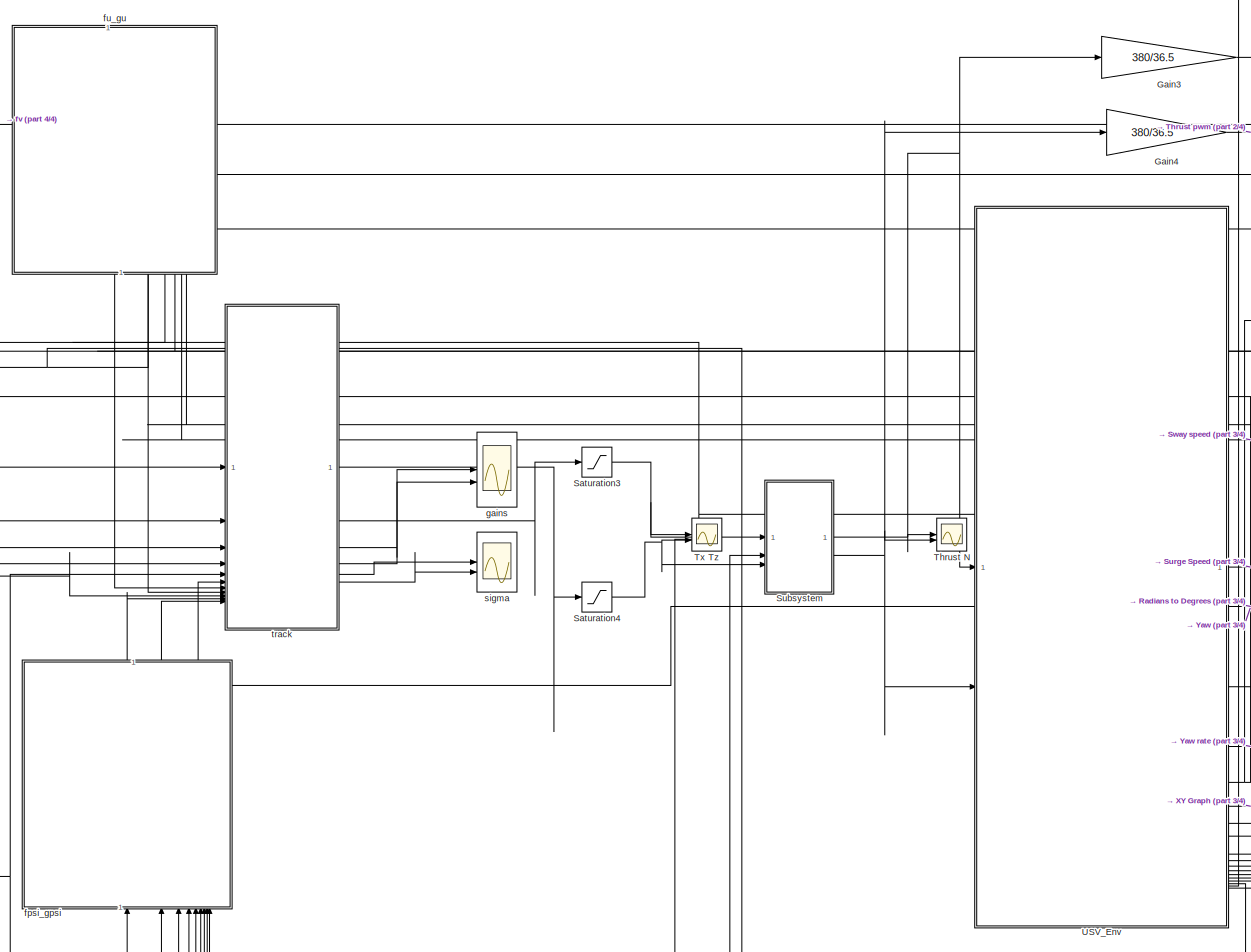
[diagram: root canvas - part 1/4, central region]
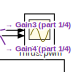
[diagram: root canvas - part 2/4, top right region]
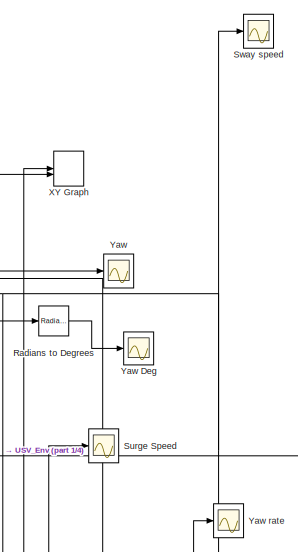
[diagram: root canvas - part 3/4, top right region]
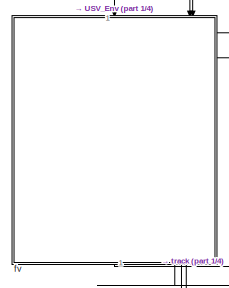
[diagram: root canvas - part 4/4, middle left region]
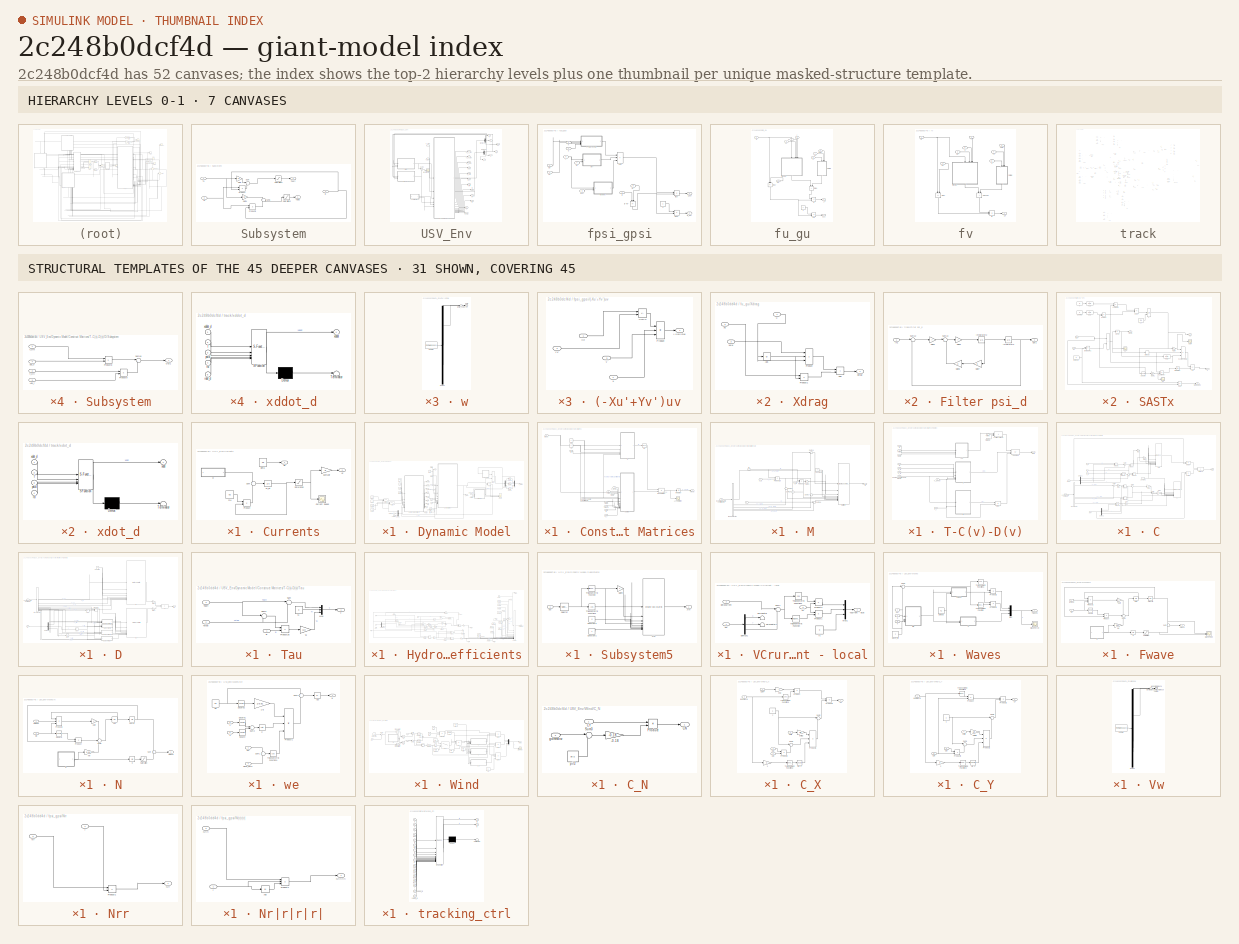
[diagram: thumbnail index - top-2 hierarchy levels (7 canvases) + 31 structural-template representatives of the remaining 45 canvases]
MODEL slx_2c248b0dcf4d
KIND model
CONFIG AbsTol = auto
CONFIG EnableMultiTasking = off
CONFIG FixedStep = 0.01
CONFIG MaxStep = auto
CONFIG MinStep = auto
CONFIG RelTol = 1e-3
CONFIG SampleTimeConstraint = Unconstrained
CONFIG SolverName = ode4
CONFIG StartTime = 0.0
CONFIG StopTime = 60
BLOCK [Gain] Gain3
  Gain = 380/36.5
BLOCK [Gain] Gain4
  Gain = 380/36.5
BLOCK [Reference] Radians to Degrees  REF=simulink_extras/Transformations/Radians
to Degrees
  SourceBlock = simulink_extras/Transformations/Radians\nto Degrees
  SourceType = RadiansToDegrees
BLOCK [Saturate] Saturation3
  LowerLimit = -64.97
  UpperLimit = 64.97
BLOCK [Saturate] Saturation4
  LowerLimit = -13.31
  UpperLimit = 13.31
BLOCK [SubSystem] Subsystem
BLOCK [Inport] Subsystem/B
  Port = 2
BLOCK [Gain] Subsystem/Gain
  Gain = 1/2
BLOCK [Gain] Subsystem/Gain1
  Gain = 1/2
BLOCK [Product] Subsystem/Product
  Inputs = */
BLOCK [Product] Subsystem/Product1
  Inputs = */
BLOCK [Saturate] Subsystem/Saturation1
  LowerLimit = -30
  UpperLimit = 36.5
BLOCK [Saturate] Subsystem/Saturation2
  LowerLimit = -30
  UpperLimit = 36.5
BLOCK [Sum] Subsystem/Sum
BLOCK [Sum] Subsystem/Sum1
  Inputs = +-
BLOCK [Outport] Subsystem/Tport
  Port = 2
  VectorParamsAs1DForOutWhenUnconnected = off
BLOCK [Outport] Subsystem/Tstbd
  VectorParamsAs1DForOutWhenUnconnected = off
BLOCK [Inport] Subsystem/Tx
BLOCK [Inport] Subsystem/Tz
  Port = 3
BLOCK [Scope] Surge Speed
  Floating = off
  NumInputPorts = 1
  ScopeSpecificationString = Simulink.scopes.TimeScopeBlockCfg('CurrentConfiguration', extmgr.ConfigurationSet(extmgr.Configuration('Core','General UI',true),extmgr.Configuration('Core','Source UI',true),extmgr.Configuration('Sources','WiredSimulink',true,'DataLoggingVariableName','ScopeData3'),extmgr.Configuration('Visuals','Time Domain',true,'SerializedDisplays',{struct('MinYLimReal','-0.15008','MaxYLimReal','1.35074','YLab...<+1441ch>
BLOCK [Scope] Sway speed
  Floating = off
  NumInputPorts = 1
  ScopeSpecificationString = Simulink.scopes.TimeScopeBlockCfg('CurrentConfiguration', extmgr.ConfigurationSet(extmgr.Configuration('Core','General UI',true),extmgr.Configuration('Core','Source UI',true),extmgr.Configuration('Sources','WiredSimulink',true,'DataLoggingVariableName','ScopeData10'),extmgr.Configuration('Visuals','Time Domain',true,'SerializedDisplays',{struct('MinYLimReal','-0.43666','MaxYLimReal','0.3065','YLab...<+1444ch>
BLOCK [Scope] Thrust N
  Floating = off
  NumInputPorts = 2
  ScopeSpecificationString = Simulink.scopes.TimeScopeBlockCfg('CurrentConfiguration', extmgr.ConfigurationSet(extmgr.Configuration('Core','General UI',true),extmgr.Configuration('Core','Source UI',true),extmgr.Configuration('Sources','WiredSimulink',true,'DataLoggingVariableName','ScopeData1'),extmgr.Configuration('Visuals','Time Domain',true,'SerializedDisplays',{struct('MinYLimReal','-38.3125','MaxYLimReal','44.8125','YLab...<+1715ch>
BLOCK [Scope] Thrust pwm
  Floating = off
  NumInputPorts = 2
  ScopeSpecificationString = Simulink.scopes.TimeScopeBlockCfg('CurrentConfiguration', extmgr.ConfigurationSet(extmgr.Configuration('Core','General UI',true),extmgr.Configuration('Core','Source UI',true),extmgr.Configuration('Sources','WiredSimulink',true,'DataLoggingVariableName','ScopeData2'),extmgr.Configuration('Visuals','Time Domain',true,'SerializedDisplays',{struct('MinYLimReal','-396.27017','MaxYLimReal','466.25224','...<+1488ch>
BLOCK [Scope] Tx Tz
  Floating = off
  NumInputPorts = 2
  ScopeSpecificationString = Simulink.scopes.TimeScopeBlockCfg('CurrentConfiguration', extmgr.ConfigurationSet(extmgr.Configuration('Core','General UI',true),extmgr.Configuration('Core','Source UI',true),extmgr.Configuration('Sources','WiredSimulink',true,'DataLoggingVariableName','ScopeData1'),extmgr.Configuration('Visuals','Time Domain',true,'SerializedDisplays',{struct('MinYLimReal','-18.37713','MaxYLimReal','32.29415','YL...<+1463ch>
BLOCK [SubSystem] USV_Env
BLOCK [Outport] USV_Env/B
  Port = 16
  VectorParamsAs1DForOutWhenUnconnected = off
BLOCK [SubSystem] USV_Env/Currents
BLOCK [Outport] USV_Env/Currents/Bc
  VectorParamsAs1DForOutWhenUnconnected = off
BLOCK [Constant] USV_Env/Currents/Beta
  Value = 0.8
BLOCK [Scope] USV_Env/Currents/Current Speed
  Floating = off
  NumInputPorts = 1
  ScopeSpecificationString = Simulink.scopes.TimeScopeBlockCfg('CurrentConfiguration', extmgr.ConfigurationSet(extmgr.Configuration('Core','General UI',true),extmgr.Configuration('Core','Source UI',true),extmgr.Configuration('Sources','WiredSimulink',true,'DataLoggingVariableName','ScopeData3'),extmgr.Configuration('Visuals','Time Domain',true,'SerializedDisplays',{struct('MinYLimReal','-0.45124','MaxYLimReal','0.67837','YLab...<+1562ch>
BLOCK [Product] USV_Env/Currents/Product
BLOCK [Saturate] USV_Env/Currents/Saturation
  LowerLimit = -1
  UpperLimit = 1
BLOCK [Sum] USV_Env/Currents/Sum
  Inputs = +-
BLOCK [Outport] USV_Env/Currents/Vc
  Port = 2
  VectorParamsAs1DForOutWhenUnconnected = off
BLOCK [Integrator] USV_Env/Currents/Vc_int
BLOCK [Gain] USV_Env/Currents/gamawr
  Gain = .5
BLOCK [Constant] USV_Env/Currents/mu
  Value = 0.5
BLOCK [SubSystem] USV_Env/Currents/w
  ClipboardFcn = sigbuilder_block('clipboard');
  CloseFcn = sigbuilder_block('close');
  ContinueFcn = sigbuilder_block('continue');
  CopyFcn = sigbuilder_block('copy');
  DeleteFcn = sigbuilder_block('delete');
  LoadFcn = sigbuilder_block('load');
  MaskHideContents = on
  ModelCloseFcn = sigbuilder_block('modelClose');
  NameChangeFcn = sigbuilder_block('namechange');
  OpenFcn = sigbuilder_block('open',[86.25 30 718.5 658.5 ]);
  PauseFcn = sigbuilder_block('pause');
  PreSaveFcn = sigbuilder_block('preSave');
  StartFcn = sigbuilder_block('start');
  StopFcn = sigbuilder_block('stop');
  Tag = STV Subsys
BLOCK [Outport] USV_Env/Currents/w/0.4
  Port = 2
  Tag = STV Outport
BLOCK [Demux] USV_Env/Currents/w/Demux
  DisplayOption = none
  Outputs = 3
  Tag = STV Demux
BLOCK [FromWorkspace] USV_Env/Currents/w/FromWs
  Tag = STV FromWs
  VariableName = tuvar
BLOCK [Outport] USV_Env/Currents/w/white_noise
  Tag = STV Outport
BLOCK [Outport] USV_Env/Currents/w/zero
  Port = 3
  Tag = STV Outport
BLOCK [Demux] USV_Env/Demux2
  Outputs = 3
BLOCK [Demux] USV_Env/Demux3
  Outputs = 3
BLOCK [SubSystem] USV_Env/Dynamic Model
BLOCK [Outport] USV_Env/Dynamic Model/B
  Port = 12
  VectorParamsAs1DForOutWhenUnconnected = off
BLOCK [Inport] USV_Env/Dynamic Model/BetaCurrent
  Port = 5
BLOCK [Constant] USV_Env/Dynamic Model/Bhull 
  Value = 0.27
BLOCK [Constant] USV_Env/Dynamic Model/Centerline-to-centerline
  Value = 0.41
BLOCK [SubSystem] USV_Env/Dynamic Model/Construct Matrices
BLOCK [Scope] USV_Env/Dynamic Model/Construct Matrices/Acceleration
  Floating = off
  NumInputPorts = 1
  ScopeSpecificationString = Simulink.scopes.TimeScopeBlockCfg('CurrentConfiguration', extmgr.ConfigurationSet(extmgr.Configuration('Core','General UI',true),extmgr.Configuration('Core','Source UI',true),extmgr.Configuration('Sources','WiredSimulink',true,'DataLoggingVariableName','ScopeData1'),extmgr.Configuration('Visuals','Time Domain',true,'SerializedDisplays',{struct('MinYLimReal','-0.50679','MaxYLimReal','2.03736','YLab...<+1615ch>
BLOCK [Inport] USV_Env/Dynamic Model/Construct Matrices/B
  Port = 9
BLOCK [Inport] USV_Env/Dynamic Model/Construct Matrices/Hydrodynamic Coefficients
  Port = 4
BLOCK [Integrator] USV_Env/Dynamic Model/Construct Matrices/Integrator
BLOCK [Inport] USV_Env/Dynamic Model/Construct Matrices/Iz
  Port = 8
BLOCK [SubSystem] USV_Env/Dynamic Model/Construct Matrices/M
BLOCK [BusSelector] USV_Env/Dynamic Model/Construct Matrices/M/Bus Selector
  OutputSignals = X_u_dot,Y_r_dot,N_v_dot,Y_v_dot,N_r_dot
BLOCK [Constant] USV_Env/Dynamic Model/Construct Matrices/M/Constant3
  Value = 0
BLOCK [Gain] USV_Env/Dynamic Model/Construct Matrices/M/Gain8
  Gain = -1
BLOCK [Inport] USV_Env/Dynamic Model/Construct Matrices/M/Hydrodynamic coefficients
  Port = 5
BLOCK [Inport] USV_Env/Dynamic Model/Construct Matrices/M/I_z
  Port = 4
BLOCK [Outport] USV_Env/Dynamic Model/Construct Matrices/M/M
  VectorParamsAs1DForOutWhenUnconnected = off
BLOCK [Reference] USV_Env/Dynamic Model/Construct Matrices/M/Matrix M  REF=sharedutil/Create 3x3 Matrix
  SourceBlock = sharedutil/Create 3x3 Matrix
  SourceType = Create 3x3 Matrix
BLOCK [Product] USV_Env/Dynamic Model/Construct Matrices/M/Product17
BLOCK [Product] USV_Env/Dynamic Model/Construct Matrices/M/Product18
BLOCK [Sum] USV_Env/Dynamic Model/Construct Matrices/M/Sum14
  Inputs = |+-
BLOCK [Sum] USV_Env/Dynamic Model/Construct Matrices/M/Sum15
  Inputs = +-
BLOCK [Sum] USV_Env/Dynamic Model/Construct Matrices/M/Sum16
  Inputs = +-
BLOCK [Sum] USV_Env/Dynamic Model/Construct Matrices/M/Sum17
  Inputs = +-
BLOCK [Sum] USV_Env/Dynamic Model/Construct Matrices/M/Sum18
  Inputs = |+-
BLOCK [Inport] USV_Env/Dynamic Model/Construct Matrices/M/X_G
  Port = 2
BLOCK [Inport] USV_Env/Dynamic Model/Construct Matrices/M/Y_G
  Port = 3
BLOCK [Inport] USV_Env/Dynamic Model/Construct Matrices/M/m
BLOCK [Reference] USV_Env/Dynamic Model/Construct Matrices/M^-1  REF=aerolibutil/Invert 
3x3 Matrix
  SourceBlock = aerolibutil/Invert \n3x3 Matrix
  SourceType = Invert 3x3 Matrix
BLOCK [Product] USV_Env/Dynamic Model/Construct Matrices/M^-1(T-C(v)-D(v))
  Multiplication = Matrix(*)
BLOCK [Inport] USV_Env/Dynamic Model/Construct Matrices/Mass 
  Port = 2
BLOCK [SubSystem] USV_Env/Dynamic Model/Construct Matrices/T-C(v)-D(v)
BLOCK [Inport] USV_Env/Dynamic Model/Construct Matrices/T-C(v)-D(v)/B
  Port = 10
BLOCK [SubSystem] USV_Env/Dynamic Model/Construct Matrices/T-C(v)-D(v)/C
BLOCK [Reference] USV_Env/Dynamic Model/Construct Matrices/T-C(v)-D(v)/C/ CRB  REF=sharedutil/Create 3x3 Matrix
  SourceBlock = sharedutil/Create 3x3 Matrix
  SourceType = Create 3x3 Matrix
BLOCK [BusSelector] USV_Env/Dynamic Model/Construct Matrices/T-C(v)-D(v)/C/Bus Selector
  OutputSignals = Y_r_dot,N_v_dot,Y_v_dot,X_u_dot
BLOCK [Outport] USV_Env/Dynamic Model/Construct Matrices/T-C(v)-D(v)/C/C(v)v
  VectorParamsAs1DForOutWhenUnconnected = off
BLOCK [Reference] USV_Env/Dynamic Model/Construct Matrices/T-C(v)-D(v)/C/CA  REF=sharedutil/Create 3x3 Matrix
  SourceBlock = sharedutil/Create 3x3 Matrix
  SourceType = Create 3x3 Matrix
BLOCK [Product] USV_Env/Dynamic Model/Construct Matrices/T-C(v)-D(v)/C/CA(vr)vr
  Multiplication = Matrix(*)
BLOCK [Product] USV_Env/Dynamic Model/Construct Matrices/T-C(v)-D(v)/C/CRB(v)v
  Multiplication = Matrix(*)
BLOCK [Constant] USV_Env/Dynamic Model/Construct Matrices/T-C(v)-D(v)/C/Constant3
  Value = 0
BLOCK [Demux] USV_Env/Dynamic Model/Construct Matrices/T-C(v)-D(v)/C/Demux1
  Outputs = 3
BLOCK [Demux] USV_Env/Dynamic Model/Construct Matrices/T-C(v)-D(v)/C/Demux2
  Outputs = 3
BLOCK [Gain] USV_Env/Dynamic Model/Construct Matrices/T-C(v)-D(v)/C/Gain
  Gain = -1
BLOCK [Gain] USV_Env/Dynamic Model/Construct Matrices/T-C(v)-D(v)/C/Gain1
  Gain = -1
BLOCK [Gain] USV_Env/Dynamic Model/Construct Matrices/T-C(v)-D(v)/C/Gain2
  Gain = 1/2
BLOCK [Gain] USV_Env/Dynamic Model/Construct Matrices/T-C(v)-D(v)/C/Gain3
  Gain = 2
BLOCK [Gain] USV_Env/Dynamic Model/Construct Matrices/T-C(v)-D(v)/C/Gain5
  Gain = 2
BLOCK [Gain] USV_Env/Dynamic Model/Construct Matrices/T-C(v)-D(v)/C/Gain6
  Gain = -1
BLOCK [Inport] USV_Env/Dynamic Model/Construct Matrices/T-C(v)-D(v)/C/Hydrodynamic coefficients
  Port = 4
BLOCK [Sum] USV_Env/Dynamic Model/Construct Matrices/T-C(v)-D(v)/C/Matrix Sum
  IconShape = rectangular
BLOCK [Product] USV_Env/Dynamic Model/Construct Matrices/T-C(v)-D(v)/C/Product
BLOCK [Product] USV_Env/Dynamic Model/Construct Matrices/T-C(v)-D(v)/C/Product1
BLOCK [Product] USV_Env/Dynamic Model/Construct Matrices/T-C(v)-D(v)/C/Product2
BLOCK [Product] USV_Env/Dynamic Model/Construct Matrices/T-C(v)-D(v)/C/Product3
BLOCK [Product] USV_Env/Dynamic Model/Construct Matrices/T-C(v)-D(v)/C/Product4
BLOCK [Product] USV_Env/Dynamic Model/Construct Matrices/T-C(v)-D(v)/C/Product5
BLOCK [Product] USV_Env/Dynamic Model/Construct Matrices/T-C(v)-D(v)/C/Product6
BLOCK [Sum] USV_Env/Dynamic Model/Construct Matrices/T-C(v)-D(v)/C/Sum3
  Inputs = |++
BLOCK [Sum] USV_Env/Dynamic Model/Construct Matrices/T-C(v)-D(v)/C/Sum4
  Inputs = +-
BLOCK [Sum] USV_Env/Dynamic Model/Construct Matrices/T-C(v)-D(v)/C/Sum6
  Inputs = |++
BLOCK [Sum] USV_Env/Dynamic Model/Construct Matrices/T-C(v)-D(v)/C/Sum7
  Inputs = |++
BLOCK [Sum] USV_Env/Dynamic Model/Construct Matrices/T-C(v)-D(v)/C/Sum8
  Inputs = |--
BLOCK [Inport] USV_Env/Dynamic Model/Construct Matrices/T-C(v)-D(v)/C/V local
  Port = 5
BLOCK [Inport] USV_Env/Dynamic Model/Construct Matrices/T-C(v)-D(v)/C/V_r
  Port = 6
BLOCK [Inport] USV_Env/Dynamic Model/Construct Matrices/T-C(v)-D(v)/C/X_G
  Port = 2
BLOCK [Inport] USV_Env/Dynamic Model/Construct Matrices/T-C(v)-D(v)/C/Y_G
  Port = 3
BLOCK [Inport] USV_Env/Dynamic Model/Construct Matrices/T-C(v)-D(v)/C/m
BLOCK [SubSystem] USV_Env/Dynamic Model/Construct Matrices/T-C(v)-D(v)/D
BLOCK [Product] USV_Env/Dynamic Model/Construct Matrices/T-C(v)-D(v)/D(v)v
  Multiplication = Matrix(*)
BLOCK [Abs] USV_Env/Dynamic Model/Construct Matrices/T-C(v)-D(v)/D/Abs r
  SaturateOnIntegerOverflow = off
BLOCK [Abs] USV_Env/Dynamic Model/Construct Matrices/T-C(v)-D(v)/D/Abs u
  SaturateOnIntegerOverflow = off
BLOCK [Abs] USV_Env/Dynamic Model/Construct Matrices/T-C(v)-D(v)/D/Abs v
  SaturateOnIntegerOverflow = off
BLOCK [BusSelector] USV_Env/Dynamic Model/Construct Matrices/T-C(v)-D(v)/D/Bus Selector
  OutputSignals = X_u,Y_v,Y_r,X_u|u|,Y_v|v|,Y_v|r|,Y_r|v|,N_v,N_r,Y_r|r|,N_v|v|,N_v|r|,N_r|r|,N_r|v|
BLOCK [Constant] USV_Env/Dynamic Model/Construct Matrices/T-C(v)-D(v)/D/Constant
  Value = 0
BLOCK [Sum] USV_Env/Dynamic Model/Construct Matrices/T-C(v)-D(v)/D/D
  IconShape = rectangular
BLOCK [Outport] USV_Env/Dynamic Model/Construct Matrices/T-C(v)-D(v)/D/D(v)
  VectorParamsAs1DForOutWhenUnconnected = off
BLOCK [Demux] USV_Env/Dynamic Model/Construct Matrices/T-C(v)-D(v)/D/Demux
  Outputs = 3
BLOCK [Reference] USV_Env/Dynamic Model/Construct Matrices/T-C(v)-D(v)/D/Dl  REF=sharedutil/Create 3x3 Matrix
  SourceBlock = sharedutil/Create 3x3 Matrix
  SourceType = Create 3x3 Matrix
BLOCK [Reference] USV_Env/Dynamic Model/Construct Matrices/T-C(v)-D(v)/D/Dn  REF=sharedutil/Create 3x3 Matrix
  SourceBlock = sharedutil/Create 3x3 Matrix
  SourceType = Create 3x3 Matrix
BLOCK [Gain] USV_Env/Dynamic Model/Construct Matrices/T-C(v)-D(v)/D/Gain4
  Gain = -1
BLOCK [Gain] USV_Env/Dynamic Model/Construct Matrices/T-C(v)-D(v)/D/Gain7
  Gain = -1
BLOCK [Inport] USV_Env/Dynamic Model/Construct Matrices/T-C(v)-D(v)/D/Hydrodynamic Coefficients
BLOCK [Product] USV_Env/Dynamic Model/Construct Matrices/T-C(v)-D(v)/D/Product7
BLOCK [SubSystem] USV_Env/Dynamic Model/Construct Matrices/T-C(v)-D(v)/D/Subsystem
BLOCK [Inport] USV_Env/Dynamic Model/Construct Matrices/T-C(v)-D(v)/D/Subsystem/Abs_r
  Port = 3
BLOCK [Inport] USV_Env/Dynamic Model/Construct Matrices/T-C(v)-D(v)/D/Subsystem/Abs_v 
  Port = 4
BLOCK [Outport] USV_Env/Dynamic Model/Construct Matrices/T-C(v)-D(v)/D/Subsystem/Out1
  VectorParamsAs1DForOutWhenUnconnected = off
BLOCK [Product] USV_Env/Dynamic Model/Construct Matrices/T-C(v)-D(v)/D/Subsystem/Product8
BLOCK [Product] USV_Env/Dynamic Model/Construct Matrices/T-C(v)-D(v)/D/Subsystem/Product9
BLOCK [Sum] USV_Env/Dynamic Model/Construct Matrices/T-C(v)-D(v)/D/Subsystem/Sum10
  Inputs = |++
BLOCK [Inport] USV_Env/Dynamic Model/Construct Matrices/T-C(v)-D(v)/D/Subsystem/Y_v|r|
  Port = 2
BLOCK [Inport] USV_Env/Dynamic Model/Construct Matrices/T-C(v)-D(v)/D/Subsystem/Y_v|v| 
BLOCK [SubSystem] USV_Env/Dynamic Model/Construct Matrices/T-C(v)-D(v)/D/Subsystem1
BLOCK [Inport] USV_Env/Dynamic Model/Construct Matrices/T-C(v)-D(v)/D/Subsystem1/Abs_r
BLOCK [Inport] USV_Env/Dynamic Model/Construct Matrices/T-C(v)-D(v)/D/Subsystem1/Abs_v
  Port = 4
BLOCK [Inport] USV_Env/Dynamic Model/Construct Matrices/T-C(v)-D(v)/D/Subsystem1/N_r|r|
  Port = 2
BLOCK [Inport] USV_Env/Dynamic Model/Construct Matrices/T-C(v)-D(v)/D/Subsystem1/N_r|v|
  Port = 3
BLOCK [Outport] USV_Env/Dynamic Model/Construct Matrices/T-C(v)-D(v)/D/Subsystem1/Out1
  VectorParamsAs1DForOutWhenUnconnected = off
BLOCK [Product] USV_Env/Dynamic Model/Construct Matrices/T-C(v)-D(v)/D/Subsystem1/Product14
BLOCK [Product] USV_Env/Dynamic Model/Construct Matrices/T-C(v)-D(v)/D/Subsystem1/Product15
BLOCK [Sum] USV_Env/Dynamic Model/Construct Matrices/T-C(v)-D(v)/D/Subsystem1/Sum13
  Inputs = |++
BLOCK [SubSystem] USV_Env/Dynamic Model/Construct Matrices/T-C(v)-D(v)/D/Subsystem2
BLOCK [Inport] USV_Env/Dynamic Model/Construct Matrices/T-C(v)-D(v)/D/Subsystem2/Abs_r
  Port = 2
BLOCK [Inport] USV_Env/Dynamic Model/Construct Matrices/T-C(v)-D(v)/D/Subsystem2/Abs_v
  Port = 4
BLOCK [Inport] USV_Env/Dynamic Model/Construct Matrices/T-C(v)-D(v)/D/Subsystem2/N_v|r|
BLOCK [Inport] USV_Env/Dynamic Model/Construct Matrices/T-C(v)-D(v)/D/Subsystem2/N_v|v|
  Port = 3
BLOCK [Outport] USV_Env/Dynamic Model/Construct Matrices/T-C(v)-D(v)/D/Subsystem2/Out1
  VectorParamsAs1DForOutWhenUnconnected = off
BLOCK [Product] USV_Env/Dynamic Model/Construct Matrices/T-C(v)-D(v)/D/Subsystem2/Product12
BLOCK [Product] USV_Env/Dynamic Model/Construct Matrices/T-C(v)-D(v)/D/Subsystem2/Product13
BLOCK [Sum] USV_Env/Dynamic Model/Construct Matrices/T-C(v)-D(v)/D/Subsystem2/Sum12
  Inputs = |++
BLOCK [SubSystem] USV_Env/Dynamic Model/Construct Matrices/T-C(v)-D(v)/D/Subsystem3
BLOCK [Inport] USV_Env/Dynamic Model/Construct Matrices/T-C(v)-D(v)/D/Subsystem3/Abs_r 
  Port = 2
BLOCK [Inport] USV_Env/Dynamic Model/Construct Matrices/T-C(v)-D(v)/D/Subsystem3/Abs_v
  Port = 4
BLOCK [Outport] USV_Env/Dynamic Model/Construct Matrices/T-C(v)-D(v)/D/Subsystem3/Out1
  VectorParamsAs1DForOutWhenUnconnected = off
BLOCK [Product] USV_Env/Dynamic Model/Construct Matrices/T-C(v)-D(v)/D/Subsystem3/Product10
BLOCK [Product] USV_Env/Dynamic Model/Construct Matrices/T-C(v)-D(v)/D/Subsystem3/Product11
BLOCK [Sum] USV_Env/Dynamic Model/Construct Matrices/T-C(v)-D(v)/D/Subsystem3/Sum11
  Inputs = |++
BLOCK [Inport] USV_Env/Dynamic Model/Construct Matrices/T-C(v)-D(v)/D/Subsystem3/Y_r|r|
  Port = 3
BLOCK [Inport] USV_Env/Dynamic Model/Construct Matrices/T-C(v)-D(v)/D/Subsystem3/Y_r|v|
BLOCK [Inport] USV_Env/Dynamic Model/Construct Matrices/T-C(v)-D(v)/D/V - r
  Port = 2
BLOCK [Inport] USV_Env/Dynamic Model/Construct Matrices/T-C(v)-D(v)/HydrodynamicCoefficients
  Port = 7
BLOCK [Outport] USV_Env/Dynamic Model/Construct Matrices/T-C(v)-D(v)/Out1
  VectorParamsAs1DForOutWhenUnconnected = off
BLOCK [Sum] USV_Env/Dynamic Model/Construct Matrices/T-C(v)-D(v)/T + Wind + Wave
  IconShape = rectangular
  Inputs = +++
BLOCK [Sum] USV_Env/Dynamic Model/Construct Matrices/T-C(v)-D(v)/T - C(v)v - D(v)v
  IconShape = rectangular
  Inputs = +--
BLOCK [SubSystem] USV_Env/Dynamic Model/Construct Matrices/T-C(v)-D(v)/Tau
BLOCK [Inport] USV_Env/Dynamic Model/Construct Matrices/T-C(v)-D(v)/Tau/B
BLOCK [Mux] USV_Env/Dynamic Model/Construct Matrices/T-C(v)-D(v)/Tau/Mux
  DisplayOption = bar
  Inputs = 3
BLOCK [Product] USV_Env/Dynamic Model/Construct Matrices/T-C(v)-D(v)/Tau/Product25
BLOCK [Sum] USV_Env/Dynamic Model/Construct Matrices/T-C(v)-D(v)/Tau/Sum
  Inputs = |++
BLOCK [Sum] USV_Env/Dynamic Model/Construct Matrices/T-C(v)-D(v)/Tau/Sum1
  Inputs = |+-
BLOCK [Outport] USV_Env/Dynamic Model/Construct Matrices/T-C(v)-D(v)/Tau/T
  VectorParamsAs1DForOutWhenUnconnected = off
BLOCK [Inport] USV_Env/Dynamic Model/Construct Matrices/T-C(v)-D(v)/Tau/Tport
  Port = 3
BLOCK [Inport] USV_Env/Dynamic Model/Construct Matrices/T-C(v)-D(v)/Tau/Tstbd
  Port = 2
BLOCK [Constant] USV_Env/Dynamic Model/Construct Matrices/T-C(v)-D(v)/Tau/Ty
  Value = 0
BLOCK [Gain] USV_Env/Dynamic Model/Construct Matrices/T-C(v)-D(v)/Tau/Tz
  Gain = 1/2
BLOCK [Inport] USV_Env/Dynamic Model/Construct Matrices/T-C(v)-D(v)/Tport
  Port = 6
BLOCK [Inport] USV_Env/Dynamic Model/Construct Matrices/T-C(v)-D(v)/Tstbd
  Port = 5
BLOCK [Inport] USV_Env/Dynamic Model/Construct Matrices/T-C(v)-D(v)/Twave
  Port = 9
BLOCK [Inport] USV_Env/Dynamic Model/Construct Matrices/T-C(v)-D(v)/Twind
  Port = 8
BLOCK [Inport] USV_Env/Dynamic Model/Construct Matrices/T-C(v)-D(v)/V_Local
  Port = 4
BLOCK [Inport] USV_Env/Dynamic Model/Construct Matrices/T-C(v)-D(v)/V_r
  Port = 11
BLOCK [Inport] USV_Env/Dynamic Model/Construct Matrices/T-C(v)-D(v)/X_G
  Port = 2
BLOCK [Inport] USV_Env/Dynamic Model/Construct Matrices/T-C(v)-D(v)/Y_G
  Port = 3
BLOCK [Inport] USV_Env/Dynamic Model/Construct Matrices/T-C(v)-D(v)/m
BLOCK [Inport] USV_Env/Dynamic Model/Construct Matrices/Tport
  Port = 3
BLOCK [Inport] USV_Env/Dynamic Model/Construct Matrices/Tstbd
BLOCK [Inport] USV_Env/Dynamic Model/Construct Matrices/Twave
  Port = 6
BLOCK [Inport] USV_Env/Dynamic Model/Construct Matrices/Twind
  Port = 5
BLOCK [Outport] USV_Env/Dynamic Model/Construct Matrices/V- local
  VectorParamsAs1DForOutWhenUnconnected = off
BLOCK [Inport] USV_Env/Dynamic Model/Construct Matrices/V_local
  Port = 7
BLOCK [Inport] USV_Env/Dynamic Model/Construct Matrices/V_r
  Port = 10
BLOCK [Constant] USV_Env/Dynamic Model/Construct Matrices/XG
  NameLocation = top
  Value = 0
BLOCK [Constant] USV_Env/Dynamic Model/Construct Matrices/YG
  Value = 0
BLOCK [Demux] USV_Env/Dynamic Model/Demux1
  Outputs = 3
BLOCK [Demux] USV_Env/Dynamic Model/Demux2
  Outputs = 3
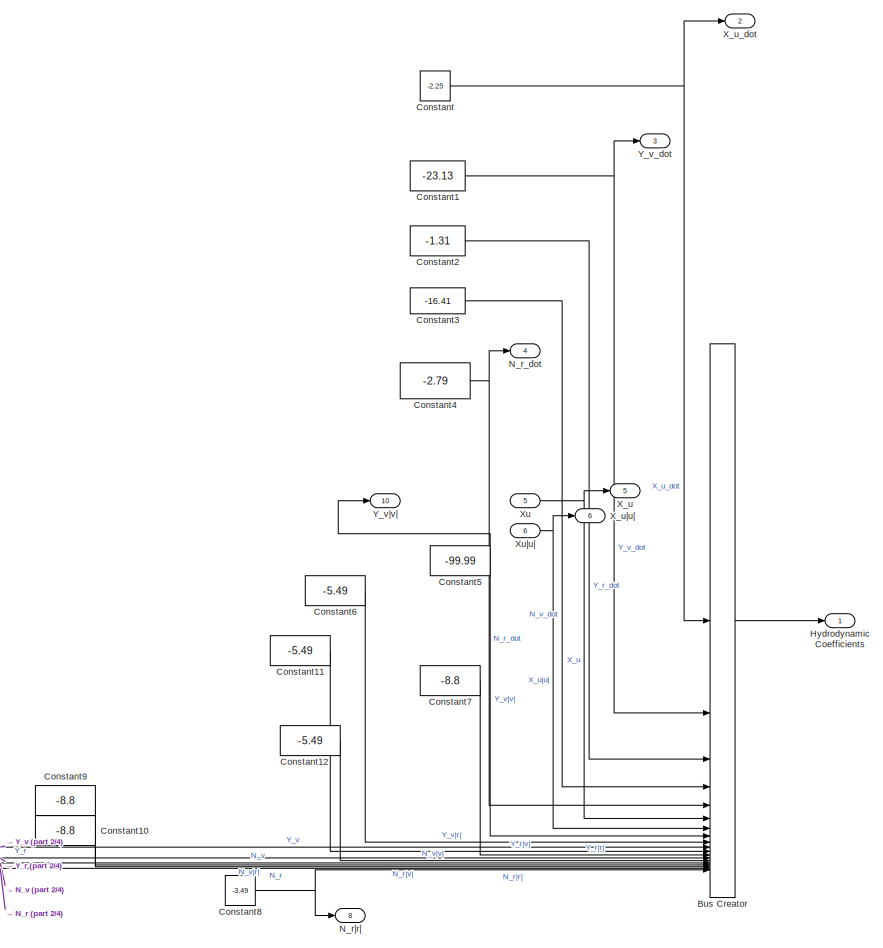
[diagram: USV_Env/Dynamic Model/Hydrodynamic Coefficients - part 1/4, right side, full height]
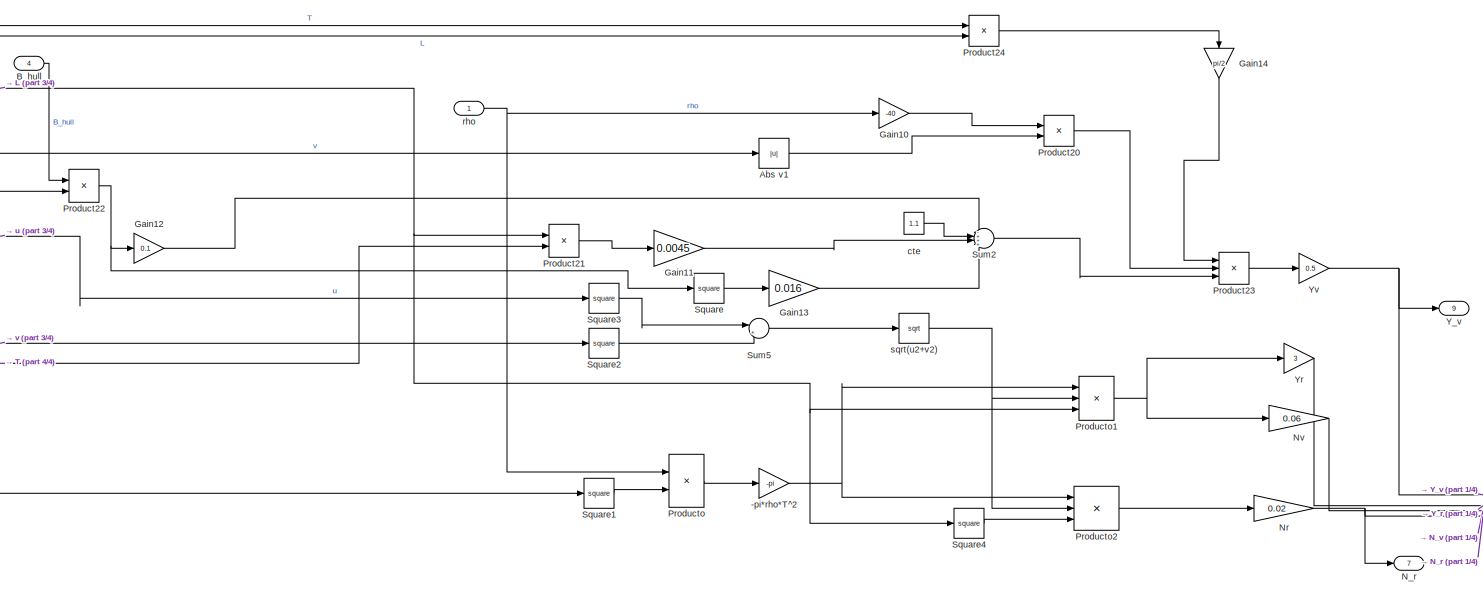
[diagram: USV_Env/Dynamic Model/Hydrodynamic Coefficients - part 2/4, bottom center region]
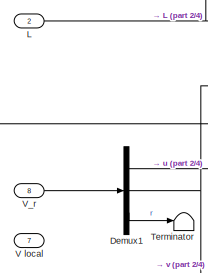
[diagram: USV_Env/Dynamic Model/Hydrodynamic Coefficients - part 3/4, middle left region]
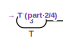
[diagram: USV_Env/Dynamic Model/Hydrodynamic Coefficients - part 4/4, bottom left region]
BLOCK [SubSystem] USV_Env/Dynamic Model/Hydrodynamic Coefficients
BLOCK [Gain] USV_Env/Dynamic Model/Hydrodynamic Coefficients/-pi*rho*T^2
  Gain = -pi
BLOCK [Abs] USV_Env/Dynamic Model/Hydrodynamic Coefficients/Abs v1
  SaturateOnIntegerOverflow = off
BLOCK [Inport] USV_Env/Dynamic Model/Hydrodynamic Coefficients/B_hull
  Port = 4
BLOCK [BusCreator] USV_Env/Dynamic Model/Hydrodynamic Coefficients/Bus Creator
  DisplayOption = bar
  InheritFromInputs = on
  Inputs = 19
BLOCK [Constant] USV_Env/Dynamic Model/Hydrodynamic Coefficients/Constant
  Value = -2.25
BLOCK [Constant] USV_Env/Dynamic Model/Hydrodynamic Coefficients/Constant1
  Value = -23.13
BLOCK [Constant] USV_Env/Dynamic Model/Hydrodynamic Coefficients/Constant10
  Value = -8.8
BLOCK [Constant] USV_Env/Dynamic Model/Hydrodynamic Coefficients/Constant11
  Value = -5.49
BLOCK [Constant] USV_Env/Dynamic Model/Hydrodynamic Coefficients/Constant12
  Value = -5.49
BLOCK [Constant] USV_Env/Dynamic Model/Hydrodynamic Coefficients/Constant2
  Value = -1.31
BLOCK [Constant] USV_Env/Dynamic Model/Hydrodynamic Coefficients/Constant3
  Value = -16.41
BLOCK [Constant] USV_Env/Dynamic Model/Hydrodynamic Coefficients/Constant4
  Value = -2.79
BLOCK [Constant] USV_Env/Dynamic Model/Hydrodynamic Coefficients/Constant5
  Value = -99.99
BLOCK [Constant] USV_Env/Dynamic Model/Hydrodynamic Coefficients/Constant6
  Value = -5.49
BLOCK [Constant] USV_Env/Dynamic Model/Hydrodynamic Coefficients/Constant7
  Value = -8.8
BLOCK [Constant] USV_Env/Dynamic Model/Hydrodynamic Coefficients/Constant8
  Value = -3.49
BLOCK [Constant] USV_Env/Dynamic Model/Hydrodynamic Coefficients/Constant9
  Value = -8.8
BLOCK [Demux] USV_Env/Dynamic Model/Hydrodynamic Coefficients/Demux1
  Outputs = 3
BLOCK [Gain] USV_Env/Dynamic Model/Hydrodynamic Coefficients/Gain10
  Gain = -40
BLOCK [Gain] USV_Env/Dynamic Model/Hydrodynamic Coefficients/Gain11
  Gain = 0.0045
BLOCK [Gain] USV_Env/Dynamic Model/Hydrodynamic Coefficients/Gain12
  Gain = 0.1
BLOCK [Gain] USV_Env/Dynamic Model/Hydrodynamic Coefficients/Gain13
  Gain = 0.016
BLOCK [Gain] USV_Env/Dynamic Model/Hydrodynamic Coefficients/Gain14
  Gain = pi/2
  NameLocation = left
BLOCK [Outport] USV_Env/Dynamic Model/Hydrodynamic Coefficients/Hydrodynamic Coefficients 
  VectorParamsAs1DForOutWhenUnconnected = off
BLOCK [Inport] USV_Env/Dynamic Model/Hydrodynamic Coefficients/L
  Port = 2
BLOCK [Outport] USV_Env/Dynamic Model/Hydrodynamic Coefficients/N_r
  Port = 7
  VectorParamsAs1DForOutWhenUnconnected = off
BLOCK [Outport] USV_Env/Dynamic Model/Hydrodynamic Coefficients/N_r_dot
  Port = 4
  VectorParamsAs1DForOutWhenUnconnected = off
BLOCK [Outport] USV_Env/Dynamic Model/Hydrodynamic Coefficients/N_r|r|
  Port = 8
  VectorParamsAs1DForOutWhenUnconnected = off
BLOCK [Gain] USV_Env/Dynamic Model/Hydrodynamic Coefficients/Nr
  Gain = 0.02
BLOCK [Gain] USV_Env/Dynamic Model/Hydrodynamic Coefficients/Nv
  Gain = 0.06
BLOCK [Product] USV_Env/Dynamic Model/Hydrodynamic Coefficients/Product20
BLOCK [Product] USV_Env/Dynamic Model/Hydrodynamic Coefficients/Product21
  Inputs = */
BLOCK [Product] USV_Env/Dynamic Model/Hydrodynamic Coefficients/Product22
  Inputs = */
BLOCK [Product] USV_Env/Dynamic Model/Hydrodynamic Coefficients/Product23
  Inputs = 3
BLOCK [Product] USV_Env/Dynamic Model/Hydrodynamic Coefficients/Product24
BLOCK [Product] USV_Env/Dynamic Model/Hydrodynamic Coefficients/Producto
BLOCK [Product] USV_Env/Dynamic Model/Hydrodynamic Coefficients/Producto1
  Inputs = 3
BLOCK [Product] USV_Env/Dynamic Model/Hydrodynamic Coefficients/Producto2
  Inputs = 3
BLOCK [Math] USV_Env/Dynamic Model/Hydrodynamic Coefficients/Square
  Operator = square
  SignedPower = on
BLOCK [Math] USV_Env/Dynamic Model/Hydrodynamic Coefficients/Square1
  Operator = square
  SignedPower = on
BLOCK [Math] USV_Env/Dynamic Model/Hydrodynamic Coefficients/Square2
  Operator = square
  SignedPower = on
BLOCK [Math] USV_Env/Dynamic Model/Hydrodynamic Coefficients/Square3
  Operator = square
  SignedPower = on
BLOCK [Math] USV_Env/Dynamic Model/Hydrodynamic Coefficients/Square4
  Operator = square
  SignedPower = on
BLOCK [Sum] USV_Env/Dynamic Model/Hydrodynamic Coefficients/Sum2
  Inputs = -+++
BLOCK [Sum] USV_Env/Dynamic Model/Hydrodynamic Coefficients/Sum5
  Inputs = |++
BLOCK [Inport] USV_Env/Dynamic Model/Hydrodynamic Coefficients/T
  Port = 3
BLOCK [Terminator] USV_Env/Dynamic Model/Hydrodynamic Coefficients/Terminator
BLOCK [Inport] USV_Env/Dynamic Model/Hydrodynamic Coefficients/V local
  Port = 7
BLOCK [Inport] USV_Env/Dynamic Model/Hydrodynamic Coefficients/V_r
  Port = 8
BLOCK [Outport] USV_Env/Dynamic Model/Hydrodynamic Coefficients/X_u
  Port = 5
  VectorParamsAs1DForOutWhenUnconnected = off
BLOCK [Outport] USV_Env/Dynamic Model/Hydrodynamic Coefficients/X_u_dot
  Port = 2
  VectorParamsAs1DForOutWhenUnconnected = off
BLOCK [Outport] USV_Env/Dynamic Model/Hydrodynamic Coefficients/X_u|u|
  Port = 6
  VectorParamsAs1DForOutWhenUnconnected = off
BLOCK [Inport] USV_Env/Dynamic Model/Hydrodynamic Coefficients/Xu
  Port = 5
BLOCK [Inport] USV_Env/Dynamic Model/Hydrodynamic Coefficients/Xu|u|
  Port = 6
BLOCK [Outport] USV_Env/Dynamic Model/Hydrodynamic Coefficients/Y_v
  Port = 9
  VectorParamsAs1DForOutWhenUnconnected = off
BLOCK [Outport] USV_Env/Dynamic Model/Hydrodynamic Coefficients/Y_v_dot
  Port = 3
  VectorParamsAs1DForOutWhenUnconnected = off
BLOCK [Outport] USV_Env/Dynamic Model/Hydrodynamic Coefficients/Y_v|v|
  Port = 10
  VectorParamsAs1DForOutWhenUnconnected = off
BLOCK [Gain] USV_Env/Dynamic Model/Hydrodynamic Coefficients/Yr
  Gain = 3
BLOCK [Gain] USV_Env/Dynamic Model/Hydrodynamic Coefficients/Yv
  Gain = 0.5
BLOCK [Constant] USV_Env/Dynamic Model/Hydrodynamic Coefficients/cte
  Value = 1.1
BLOCK [Inport] USV_Env/Dynamic Model/Hydrodynamic Coefficients/rho
BLOCK [Sqrt] USV_Env/Dynamic Model/Hydrodynamic Coefficients/sqrt(u2+v2)
BLOCK [Outport] USV_Env/Dynamic Model/I_z
  Port = 11
  VectorParamsAs1DForOutWhenUnconnected = off
BLOCK [Constant] USV_Env/Dynamic Model/Iz
  Value = 4.1
BLOCK [Constant] USV_Env/Dynamic Model/L
  Value = 1.01
BLOCK [Mux] USV_Env/Dynamic Model/Mux
  DisplayOption = bar
  Inputs = 3
BLOCK [Outport] USV_Env/Dynamic Model/N_r
  Port = 8
  VectorParamsAs1DForOutWhenUnconnected = off
BLOCK [Outport] USV_Env/Dynamic Model/N_r_dot
  Port = 5
  VectorParamsAs1DForOutWhenUnconnected = off
BLOCK [Outport] USV_Env/Dynamic Model/N_r|r|
  Port = 9
  VectorParamsAs1DForOutWhenUnconnected = off
BLOCK [Scope] USV_Env/Dynamic Model/Speed
  Floating = off
  NumInputPorts = 3
  ScopeSpecificationString = Simulink.scopes.TimeScopeBlockCfg('CurrentConfiguration', extmgr.ConfigurationSet(extmgr.Configuration('Core','General UI',true),extmgr.Configuration('Core','Source UI',true),extmgr.Configuration('Sources','WiredSimulink',true,'DataLoggingVariableName','ScopeData1'),extmgr.Configuration('Visuals','Time Domain',true,'SerializedDisplays',{struct('MinYLimReal','-0.61784','MaxYLimReal','1.24926','YLab...<+1769ch>
BLOCK [SubSystem] USV_Env/Dynamic Model/Subsystem5
BLOCK [Reference] USV_Env/Dynamic Model/Subsystem5/ J(n)  REF=sharedutil/Create 3x3 Matrix
  SourceBlock = sharedutil/Create 3x3 Matrix
  SourceType = Create 3x3 Matrix
BLOCK [Constant] USV_Env/Dynamic Model/Subsystem5/Constant1
BLOCK [Constant] USV_Env/Dynamic Model/Subsystem5/Constant2
  Value = 0
BLOCK [Gain] USV_Env/Dynamic Model/Subsystem5/Gain9
  Gain = -1
BLOCK [Outport] USV_Env/Dynamic Model/Subsystem5/J(n)
  VectorParamsAs1DForOutWhenUnconnected = off
BLOCK [Selector] USV_Env/Dynamic Model/Subsystem5/Selector
  IndexOptions = Index vector (dialog)
  Indices = 3
  InputPortWidth = 3
  OutputSizes = 1
BLOCK [Trigonometry] USV_Env/Dynamic Model/Subsystem5/Trigonometric Function
BLOCK [Trigonometry] USV_Env/Dynamic Model/Subsystem5/Trigonometric Function1
  Operator = cos
BLOCK [Inport] USV_Env/Dynamic Model/Subsystem5/psi
BLOCK [Switch] USV_Env/Dynamic Model/Switch
  Criteria = u2 > Threshold
  InputSameDT = off
  SaturateOnIntegerOverflow = off
  Threshold = 1.25
BLOCK [Switch] USV_Env/Dynamic Model/Switch1
  Criteria = u2 > Threshold
  InputSameDT = off
  SaturateOnIntegerOverflow = off
  Threshold = 1.25
BLOCK [Constant] USV_Env/Dynamic Model/T
  Value = 0.09
BLOCK [Terminator] USV_Env/Dynamic Model/Terminator
BLOCK [Terminator] USV_Env/Dynamic Model/Terminator1
BLOCK [Inport] USV_Env/Dynamic Model/Tport
  Port = 2
BLOCK [Inport] USV_Env/Dynamic Model/Tstbd
BLOCK [Inport] USV_Env/Dynamic Model/Twave
  Port = 4
BLOCK [Inport] USV_Env/Dynamic Model/Twind
  Port = 3
BLOCK [SubSystem] USV_Env/Dynamic Model/VCrurrent - local
BLOCK [Inport] USV_Env/Dynamic Model/VCrurrent - local/BetaCurrent
  Port = 2
BLOCK [Demux] USV_Env/Dynamic Model/VCrurrent - local/Demux1
  Outputs = 3
BLOCK [Mux] USV_Env/Dynamic Model/VCrurrent - local/Mux1
  DisplayOption = bar
  Inputs = 3
BLOCK [Product] USV_Env/Dynamic Model/VCrurrent - local/Product1
BLOCK [Product] USV_Env/Dynamic Model/VCrurrent - local/Product2
BLOCK [Sum] USV_Env/Dynamic Model/VCrurrent - local/Sum7
  Inputs = |+-
BLOCK [Terminator] USV_Env/Dynamic Model/VCrurrent - local/Terminator
BLOCK [Terminator] USV_Env/Dynamic Model/VCrurrent - local/Terminator1
BLOCK [Trigonometry] USV_Env/Dynamic Model/VCrurrent - local/Trigonometric Function
BLOCK [Trigonometry] USV_Env/Dynamic Model/VCrurrent - local/Trigonometric Function1
  Operator = cos
BLOCK [Inport] USV_Env/Dynamic Model/VCrurrent - local/VC
  Port = 3
BLOCK [Outport] USV_Env/Dynamic Model/VCrurrent - local/VCurrent - local
  VectorParamsAs1DForOutWhenUnconnected = off
BLOCK [Inport] USV_Env/Dynamic Model/VCrurrent - local/psi
BLOCK [Constant] USV_Env/Dynamic Model/VCrurrent - local/rc
  Value = 0
BLOCK [Inport] USV_Env/Dynamic Model/VCurrent
  Port = 6
BLOCK [Outport] USV_Env/Dynamic Model/V_local
  Port = 2
  VectorParamsAs1DForOutWhenUnconnected = off
BLOCK [Outport] USV_Env/Dynamic Model/X_u
  Port = 6
  VectorParamsAs1DForOutWhenUnconnected = off
BLOCK [Outport] USV_Env/Dynamic Model/X_u_dot
  Port = 3
  VectorParamsAs1DForOutWhenUnconnected = off
BLOCK [Outport] USV_Env/Dynamic Model/X_u|u|
  Port = 7
  VectorParamsAs1DForOutWhenUnconnected = off
BLOCK [Constant] USV_Env/Dynamic Model/Xu linear
  Value = 64.55
BLOCK [Constant] USV_Env/Dynamic Model/Xu poly
  Value = -25
BLOCK [Constant] USV_Env/Dynamic Model/Xu|u| linear
  Value = -70.92
BLOCK [Constant] USV_Env/Dynamic Model/Xu|u| poly
  Value = 0
BLOCK [Outport] USV_Env/Dynamic Model/Y_v
  Port = 13
  VectorParamsAs1DForOutWhenUnconnected = off
BLOCK [Outport] USV_Env/Dynamic Model/Y_v_dot
  Port = 4
  VectorParamsAs1DForOutWhenUnconnected = off
BLOCK [Outport] USV_Env/Dynamic Model/Y_v|v|
  Port = 14
  VectorParamsAs1DForOutWhenUnconnected = off
BLOCK [Outport] USV_Env/Dynamic Model/m
  Port = 10
  VectorParamsAs1DForOutWhenUnconnected = off
BLOCK [Constant] USV_Env/Dynamic Model/mass
  Value = 30
BLOCK [Integrator] USV_Env/Dynamic Model/n - global
BLOCK [Integrator] USV_Env/Dynamic Model/n - global1
  WrapState = on
BLOCK [Integrator] USV_Env/Dynamic Model/n - global2
BLOCK [Product] USV_Env/Dynamic Model/n' - global
  Multiplication = Matrix(*)
BLOCK [Outport] USV_Env/Dynamic Model/n_global
  VectorParamsAs1DForOutWhenUnconnected = off
BLOCK [Constant] USV_Env/Dynamic Model/rho
  Value = 1000
BLOCK [Sum] USV_Env/Dynamic Model/v - vc
  IconShape = rectangular
  Inputs = +-
BLOCK [Scope] USV_Env/Ext Forces
  Floating = off
  NumInputPorts = 1
  ScopeSpecificationString = Simulink.scopes.TimeScopeBlockCfg('CurrentConfiguration', extmgr.ConfigurationSet(extmgr.Configuration('Core','General UI',true),extmgr.Configuration('Core','Source UI',true),extmgr.Configuration('Sources','WiredSimulink',true,'DataLoggingVariableName','ScopeData2'),extmgr.Configuration('Visuals','Time Domain',true,'SerializedDisplays',{struct('MinYLimReal','-14.03786','MaxYLimReal','12.50026','YL...<+1585ch>
BLOCK [Outport] USV_Env/I_z
  Port = 15
  VectorParamsAs1DForOutWhenUnconnected = off
BLOCK [Outport] USV_Env/N_r
  Port = 12
  VectorParamsAs1DForOutWhenUnconnected = off
BLOCK [Outport] USV_Env/N_r_dot
  Port = 9
  VectorParamsAs1DForOutWhenUnconnected = off
BLOCK [Outport] USV_Env/N_r|r|
  Port = 13
  VectorParamsAs1DForOutWhenUnconnected = off
BLOCK [Sum] USV_Env/Sum2
  Inputs = |++
BLOCK [Inport] USV_Env/T_port
  Port = 2
BLOCK [Inport] USV_Env/T_stbd
BLOCK [SubSystem] USV_Env/Waves
BLOCK [SubSystem] USV_Env/Waves/Fwave
BLOCK [Gain] USV_Env/Waves/Fwave/Kw
  Gain = 0.64
BLOCK [Product] USV_Env/Waves/Fwave/Product
BLOCK [Product] USV_Env/Waves/Fwave/Product1
  Inputs = 3
BLOCK [Saturate] USV_Env/Waves/Fwave/Saturation
  LowerLimit = -20
  UpperLimit = 20
BLOCK [Math] USV_Env/Waves/Fwave/Square
  Operator = square
BLOCK [Sum] USV_Env/Waves/Fwave/Sum
BLOCK [Sum] USV_Env/Waves/Fwave/Sum1
  Inputs = --+
BLOCK [Scope] USV_Env/Waves/Fwave/Wave Force
  Floating = off
  NumInputPorts = 2
  ScopeSpecificationString = Simulink.scopes.TimeScopeBlockCfg('CurrentConfiguration', extmgr.ConfigurationSet(extmgr.Configuration('Core','General UI',true),extmgr.Configuration('Core','Source UI',true),extmgr.Configuration('Sources','WiredSimulink',true,'DataLoggingVariableName','ScopeData1'),extmgr.Configuration('Visuals','Time Domain',true,'SerializedDisplays',{struct('MinYLimReal','-18.9899','MaxYLimReal','10.39201','YLa...<+1570ch>
BLOCK [Integrator] USV_Env/Waves/Fwave/Xw1 yw
BLOCK [Integrator] USV_Env/Waves/Fwave/Xw2
BLOCK [Outport] USV_Env/Waves/Fwave/Xwave
  VectorParamsAs1DForOutWhenUnconnected = off
BLOCK [Integrator] USV_Env/Waves/Fwave/d
BLOCK [Gain] USV_Env/Waves/Fwave/gain
  Gain = 2
BLOCK [Inport] USV_Env/Waves/Fwave/lambda
  Port = 2
BLOCK [SubSystem] USV_Env/Waves/Fwave/w
  ClipboardFcn = sigbuilder_block('clipboard');
  CloseFcn = sigbuilder_block('close');
  ContinueFcn = sigbuilder_block('continue');
  CopyFcn = sigbuilder_block('copy');
  DeleteFcn = sigbuilder_block('delete');
  LoadFcn = sigbuilder_block('load');
  MaskHideContents = on
  ModelCloseFcn = sigbuilder_block('modelClose');
  NameChangeFcn = sigbuilder_block('namechange');
  OpenFcn = sigbuilder_block('open',[1614 67.5 717 628.5 ]);
  PauseFcn = sigbuilder_block('pause');
  PreSaveFcn = sigbuilder_block('preSave');
  StartFcn = sigbuilder_block('start');
  StopFcn = sigbuilder_block('stop');
  Tag = STV Subsys
BLOCK [Demux] USV_Env/Waves/Fwave/w/Demux
  DisplayOption = none
  Outputs = 3
  Tag = STV Demux
BLOCK [FromWorkspace] USV_Env/Waves/Fwave/w/FromWs
  Tag = STV FromWs
  VariableName = tuvar
BLOCK [Outport] USV_Env/Waves/Fwave/w/d
  Port = 2
  Tag = STV Outport
BLOCK [Outport] USV_Env/Waves/Fwave/w/w
  Tag = STV Outport
BLOCK [Outport] USV_Env/Waves/Fwave/w/zero
  Port = 3
  Tag = STV Outport
BLOCK [Inport] USV_Env/Waves/Fwave/we
BLOCK [Mux] USV_Env/Waves/Mux
  DisplayOption = bar
  Inputs = 3
BLOCK [SubSystem] USV_Env/Waves/N
BLOCK [Gain] USV_Env/Waves/N/Kw
  Gain = 0.64
BLOCK [Outport] USV_Env/Waves/N/Nwave
  VectorParamsAs1DForOutWhenUnconnected = off
BLOCK [Product] USV_Env/Waves/N/Product
BLOCK [Product] USV_Env/Waves/N/Product1
  Inputs = 3
BLOCK [Saturate] USV_Env/Waves/N/Saturation
  LowerLimit = -5
  UpperLimit = 5
BLOCK [Math] USV_Env/Waves/N/Square
  Operator = square
BLOCK [Sum] USV_Env/Waves/N/Sum
BLOCK [Sum] USV_Env/Waves/N/Sum1
  Inputs = --+
BLOCK [Integrator] USV_Env/Waves/N/Xw1 yw
BLOCK [Integrator] USV_Env/Waves/N/Xw2
BLOCK [Integrator] USV_Env/Waves/N/d
BLOCK [Gain] USV_Env/Waves/N/gain
  Gain = 2
BLOCK [Inport] USV_Env/Waves/N/lambda
  Port = 2
BLOCK [SubSystem] USV_Env/Waves/N/w
  ClipboardFcn = sigbuilder_block('clipboard');
  CloseFcn = sigbuilder_block('close');
  ContinueFcn = sigbuilder_block('continue');
  CopyFcn = sigbuilder_block('copy');
  DeleteFcn = sigbuilder_block('delete');
  LoadFcn = sigbuilder_block('load');
  MaskHideContents = on
  ModelCloseFcn = sigbuilder_block('modelClose');
  NameChangeFcn = sigbuilder_block('namechange');
  OpenFcn = sigbuilder_block('open',[109.5 26.25 710.25 647.25 ]);
  PauseFcn = sigbuilder_block('pause');
  PreSaveFcn = sigbuilder_block('preSave');
  StartFcn = sigbuilder_block('start');
  StopFcn = sigbuilder_block('stop');
  Tag = STV Subsys
BLOCK [Demux] USV_Env/Waves/N/w/Demux
  DisplayOption = none
  Outputs = 3
  Tag = STV Demux
BLOCK [FromWorkspace] USV_Env/Waves/N/w/FromWs
  Tag = STV FromWs
  VariableName = tuvar
BLOCK [Outport] USV_Env/Waves/N/w/d
  Port = 2
  Tag = STV Outport
BLOCK [Outport] USV_Env/Waves/N/w/w
  Tag = STV Outport
BLOCK [Outport] USV_Env/Waves/N/w/zero
  Port = 3
  Tag = STV Outport
BLOCK [Inport] USV_Env/Waves/N/we
BLOCK [Product] USV_Env/Waves/Product1
BLOCK [Product] USV_Env/Waves/Product2
BLOCK [Sum] USV_Env/Waves/Sum7
  Inputs = |+-
BLOCK [Trigonometry] USV_Env/Waves/Trigonometric Function
BLOCK [Trigonometry] USV_Env/Waves/Trigonometric Function1
  Operator = cos
BLOCK [Outport] USV_Env/Waves/Twaves
  VectorParamsAs1DForOutWhenUnconnected = off
BLOCK [Scope] USV_Env/Waves/Wave Force
  Floating = off
  NumInputPorts = 1
  ScopeSpecificationString = Simulink.scopes.TimeScopeBlockCfg('CurrentConfiguration', extmgr.ConfigurationSet(extmgr.Configuration('Core','General UI',true),extmgr.Configuration('Core','Source UI',true),extmgr.Configuration('Sources','WiredSimulink',true,'DataLoggingVariableName','ScopeData2'),extmgr.Configuration('Visuals','Time Domain',true,'SerializedDisplays',{struct('MinYLimReal','-8.92291','MaxYLimReal','10.0709','YLab...<+1565ch>
BLOCK [Constant] USV_Env/Waves/lambda
  Value = 0.1
BLOCK [Inport] USV_Env/Waves/psi
BLOCK [Inport] USV_Env/Waves/u
  Port = 2
BLOCK [Inport] USV_Env/Waves/v
  Port = 3
BLOCK [Constant] USV_Env/Waves/wave_dir
BLOCK [SubSystem] USV_Env/Waves/we
BLOCK [Gain] USV_Env/Waves/we/1//g
  Gain = 1/9.81
BLOCK [Abs] USV_Env/Waves/we/Abs
  SaturateOnIntegerOverflow = off
BLOCK [Product] USV_Env/Waves/we/Product1
  Inputs = 3
BLOCK [Math] USV_Env/Waves/we/Square
  Operator = square
BLOCK [Math] USV_Env/Waves/we/Square1
  Operator = square
BLOCK [Math] USV_Env/Waves/we/Square2
  Operator = square
BLOCK [Sum] USV_Env/Waves/we/Sum1
  Inputs = +-
BLOCK [Sum] USV_Env/Waves/we/Sum2
BLOCK [Sum] USV_Env/Waves/we/Sum3
  Inputs = +-
BLOCK [Trigonometry] USV_Env/Waves/we/Trigonometric Function1
  Operator = cos
BLOCK [Sqrt] USV_Env/Waves/we/U
BLOCK [Inport] USV_Env/Waves/we/psi
BLOCK [Inport] USV_Env/Waves/we/u
  Port = 2
BLOCK [Inport] USV_Env/Waves/we/v
  Port = 3
BLOCK [Outport] USV_Env/Waves/we/w
  VectorParamsAs1DForOutWhenUnconnected = off
BLOCK [Constant] USV_Env/Waves/we/w0
  Value = 0.8
BLOCK [Inport] USV_Env/Waves/we/wave_beta
  Port = 4
BLOCK [SubSystem] USV_Env/Wind
BLOCK [Constant] USV_Env/Wind/0.5
  Value = 0.5
BLOCK [Product] USV_Env/Wind/0.5*rho*vrw^2
  Inputs = 3
BLOCK [Constant] USV_Env/Wind/AFw
  Value = 0.225
BLOCK [Constant] USV_Env/Wind/ALw
  Value = 0.3
BLOCK [Abs] USV_Env/Wind/Abs
  SaturateOnIntegerOverflow = off
  ZeroCross = off
BLOCK [Trigonometry] USV_Env/Wind/Atan2
  Operator = atan2
BLOCK [Constant] USV_Env/Wind/Beta_wind
  Value = 1.5
BLOCK [Product] USV_Env/Wind/CDl
  Inputs = **/
BLOCK [Switch] USV_Env/Wind/CDlAF
  Criteria = u2 > Threshold
  InputSameDT = off
  SaturateOnIntegerOverflow = off
  Threshold = pi/2
  ZeroCross = off
BLOCK [Constant] USV_Env/Wind/CDlAF0
  Value = 0.55
BLOCK [Constant] USV_Env/Wind/CDlAFpi
  Value = 0.6
BLOCK [Constant] USV_Env/Wind/CDt
  Value = 0.9
BLOCK [SubSystem] USV_Env/Wind/C_N
BLOCK [Gain] USV_Env/Wind/C_N/-0.18
  Gain = -0.18
BLOCK [Outport] USV_Env/Wind/C_N/CN
  VectorParamsAs1DForOutWhenUnconnected = off
BLOCK [Inport] USV_Env/Wind/C_N/CY
BLOCK [Product] USV_Env/Wind/C_N/Product
BLOCK [Sum] USV_Env/Wind/C_N/Sum3
  Inputs = |+-
BLOCK [Inport] USV_Env/Wind/C_N/gammarw
  Port = 2
BLOCK [Constant] USV_Env/Wind/C_N/pi//2
  Value = pi/2
BLOCK [SubSystem] USV_Env/Wind/C_X
BLOCK [Constant] USV_Env/Wind/C_X/1
BLOCK [Gain] USV_Env/Wind/C_X/2
  Gain = 2
BLOCK [Inport] USV_Env/Wind/C_X/CDl
  Port = 3
BLOCK [Inport] USV_Env/Wind/C_X/CDlAF
BLOCK [Inport] USV_Env/Wind/C_X/CDt
  Port = 4
BLOCK [Outport] USV_Env/Wind/C_X/CX
  VectorParamsAs1DForOutWhenUnconnected = off
BLOCK [Product] USV_Env/Wind/C_X/Product
BLOCK [Product] USV_Env/Wind/C_X/Product1
  Inputs = ***
BLOCK [Product] USV_Env/Wind/C_X/Product2
  Inputs = */
BLOCK [Product] USV_Env/Wind/C_X/Product3
  Inputs = */
BLOCK [Sum] USV_Env/Wind/C_X/Sum1
  Inputs = |+-
BLOCK [Sum] USV_Env/Wind/C_X/Sum2
  Inputs = |+-
BLOCK [Trigonometry] USV_Env/Wind/C_X/Trigonometric Function2
BLOCK [Trigonometry] USV_Env/Wind/C_X/Trigonometric Function3
  Operator = cos
BLOCK [Inport] USV_Env/Wind/C_X/delta
  Port = 5
BLOCK [Gain] USV_Env/Wind/C_X/delta//2
  Gain = 1/2
BLOCK [Inport] USV_Env/Wind/C_X/gammarw
  Port = 2
BLOCK [Gain] USV_Env/Wind/C_X/neg
  Gain = -1
BLOCK [Math] USV_Env/Wind/C_X/sin^2
  Operator = square
BLOCK [SubSystem] USV_Env/Wind/C_Y
BLOCK [Constant] USV_Env/Wind/C_Y/1
BLOCK [Gain] USV_Env/Wind/C_Y/2
  Gain = 2
BLOCK [Inport] USV_Env/Wind/C_Y/CDl
  Port = 2
BLOCK [Inport] USV_Env/Wind/C_Y/CDt
  Port = 3
BLOCK [Outport] USV_Env/Wind/C_Y/CY
  VectorParamsAs1DForOutWhenUnconnected = off
BLOCK [Product] USV_Env/Wind/C_Y/Product
BLOCK [Product] USV_Env/Wind/C_Y/Product1
  Inputs = ***
BLOCK [Product] USV_Env/Wind/C_Y/Product2
  Inputs = */
BLOCK [Product] USV_Env/Wind/C_Y/Product3
  Inputs = */
BLOCK [Sum] USV_Env/Wind/C_Y/Sum1
  Inputs = |+-
BLOCK [Sum] USV_Env/Wind/C_Y/Sum2
  Inputs = |+-
BLOCK [Trigonometry] USV_Env/Wind/C_Y/Trigonometric Function2
BLOCK [Trigonometry] USV_Env/Wind/C_Y/Trigonometric Function3
BLOCK [Inport] USV_Env/Wind/C_Y/delta
  Port = 4
BLOCK [Gain] USV_Env/Wind/C_Y/delta//2
  Gain = 1/2
BLOCK [Inport] USV_Env/Wind/C_Y/gammarw
BLOCK [Math] USV_Env/Wind/C_Y/sin^2
  Operator = square
BLOCK [Constant] USV_Env/Wind/Loa
BLOCK [Mux] USV_Env/Wind/Mux
  DisplayOption = bar
  Inputs = 3
BLOCK [Product] USV_Env/Wind/Nwind
  Inputs = 4
BLOCK [Math] USV_Env/Wind/Square
  Operator = square
BLOCK [Math] USV_Env/Wind/Square1
  Operator = square
BLOCK [Sum] USV_Env/Wind/Sum1
  Inputs = |+-
BLOCK [Sum] USV_Env/Wind/Sum2
  Inputs = |+-
BLOCK [Sum] USV_Env/Wind/Sum3
  Inputs = |+-
BLOCK [Sum] USV_Env/Wind/Sum4
BLOCK [Trigonometry] USV_Env/Wind/Trigonometric Function2
BLOCK [Trigonometry] USV_Env/Wind/Trigonometric Function3
  Operator = cos
BLOCK [Outport] USV_Env/Wind/Twind
  VectorParamsAs1DForOutWhenUnconnected = off
BLOCK [SubSystem] USV_Env/Wind/Vw
  ClipboardFcn = sigbuilder_block('clipboard');
  CloseFcn = sigbuilder_block('close');
  ContinueFcn = sigbuilder_block('continue');
  CopyFcn = sigbuilder_block('copy');
  DeleteFcn = sigbuilder_block('delete');
  LoadFcn = sigbuilder_block('load');
  MaskHideContents = on
  ModelCloseFcn = sigbuilder_block('modelClose');
  NameChangeFcn = sigbuilder_block('namechange');
  OpenFcn = sigbuilder_block('open',[48.75 0 1391.25 628.5 ]);
  PauseFcn = sigbuilder_block('pause');
  PreSaveFcn = sigbuilder_block('preSave');
  StartFcn = sigbuilder_block('start');
  StopFcn = sigbuilder_block('stop');
  Tag = STV Subsys
BLOCK [Outport] USV_Env/Wind/Vw/Calm (0)
  Port = 4
  Tag = STV Outport
BLOCK [Demux] USV_Env/Wind/Vw/Demux
  DisplayOption = none
  Tag = STV Demux
BLOCK [Outport] USV_Env/Wind/Vw/Fresh Breeze
  Port = 3
  Tag = STV Outport
BLOCK [FromWorkspace] USV_Env/Wind/Vw/FromWs
  Tag = STV FromWs
  VariableName = tuvar
BLOCK [Outport] USV_Env/Wind/Vw/Gentle Breeze
  Tag = STV Outport
BLOCK [Outport] USV_Env/Wind/Vw/Moderate Breeze
  Port = 2
  Tag = STV Outport
BLOCK [Scope] USV_Env/Wind/Wind Force
  Floating = off
  NumInputPorts = 1
  ScopeSpecificationString = Simulink.scopes.TimeScopeBlockCfg('CurrentConfiguration', extmgr.ConfigurationSet(extmgr.Configuration('Core','General UI',true),extmgr.Configuration('Core','Source UI',true),extmgr.Configuration('Sources','WiredSimulink',true,'DataLoggingVariableName','ScopeData2'),extmgr.Configuration('Visuals','Time Domain',true,'SerializedDisplays',{struct('MinYLimReal','-8.42148','MaxYLimReal','14.57336','YLa...<+1568ch>
BLOCK [Product] USV_Env/Wind/Xwind
  Inputs = 3
BLOCK [Product] USV_Env/Wind/Ywind
  Inputs = 3
BLOCK [Constant] USV_Env/Wind/delta
  Value = 0.6
BLOCK [Gain] USV_Env/Wind/gamawr
  Gain = -1
BLOCK [Inport] USV_Env/Wind/psi
  Port = 3
BLOCK [Constant] USV_Env/Wind/rho
  Value = 1.2
BLOCK [Inport] USV_Env/Wind/u
BLOCK [Product] USV_Env/Wind/uw
BLOCK [Inport] USV_Env/Wind/v
  Port = 2
BLOCK [Product] USV_Env/Wind/vw
BLOCK [Outport] USV_Env/X_u
  Port = 10
  VectorParamsAs1DForOutWhenUnconnected = off
BLOCK [Outport] USV_Env/X_u_dot
  Port = 7
  VectorParamsAs1DForOutWhenUnconnected = off
BLOCK [Outport] USV_Env/X_u|u|
  Port = 11
  VectorParamsAs1DForOutWhenUnconnected = off
BLOCK [Outport] USV_Env/Y_v
  Port = 17
  VectorParamsAs1DForOutWhenUnconnected = off
BLOCK [Outport] USV_Env/Y_v_dot
  Port = 8
  VectorParamsAs1DForOutWhenUnconnected = off
BLOCK [Outport] USV_Env/Y_v|v|
  Port = 18
  VectorParamsAs1DForOutWhenUnconnected = off
BLOCK [Outport] USV_Env/m
  Port = 14
  VectorParamsAs1DForOutWhenUnconnected = off
BLOCK [Outport] USV_Env/psi
  Port = 6
BLOCK [Outport] USV_Env/r
  Port = 3
BLOCK [Outport] USV_Env/u
BLOCK [Outport] USV_Env/v
  Port = 2
BLOCK [Outport] USV_Env/x
  Port = 4
BLOCK [Outport] USV_Env/y
  Port = 5
BLOCK [Record] XY Graph
  CompatibilityTag = XY
  FileSettingsInternal = {"entries":[{"content":{"excelSettings":{"content":{},"type":"Streamout.ExcelSettings"}},"type":"Streamout.FileSettingStorage","uuid":""}],"packageUris":["http:\/\/schema.mathworks.com\/mf0\/streamout_blocks\/R2020a"],"version":"1.0"}
  Layout = [1 1]
  SignalsInternal = {"entries":[{"content":{"signals":[{"content":{"blockPath":[],"dimensions":[1],"domain":"","lineColor":"#a2142f","plots":[1],"port":1,"sid":[""],"signalID":27,"signalName":"USV_Env:5"},"type":"RecordBlkView.Signal","uuid":""},{"content":{"blockPath":[],"dimensions":[1],"domain":"","lineColor":"#139fff","plots":[1],"port":2,"sid":[""],"signalID":31,"signalName":"USV_Env:4"},"type":"RecordBlkView.Si...<+162ch>
  VisualizationBindings = {"xyplotplugin":{"info":[{"series":[{"bindingParametersList":[{"parameter":"X-Axis","signalID":27,"signalName":"USV_Env:5"},{"parameter":"Y-Axis","signalID":31,"signalName":"USV_Env:4"}],"seriesID":42537}],"subplotID":1}]}}
  st = -1
BLOCK [Scope] Yaw
  Floating = off
  NumInputPorts = 1
  ScopeSpecificationString = Simulink.scopes.TimeScopeBlockCfg('CurrentConfiguration', extmgr.ConfigurationSet(extmgr.Configuration('Core','General UI',true),extmgr.Configuration('Core','Source UI',true),extmgr.Configuration('Sources','WiredSimulink',true,'DataLoggingVariableName','ScopeData1'),extmgr.Configuration('Visuals','Time Domain',true,'SerializedDisplays',{struct('MinYLimReal','-2.5','MaxYLimReal','2.5','YLabelReal',...<+1417ch>
BLOCK [Scope] Yaw Deg
  Floating = off
  NumInputPorts = 2
  ScopeSpecificationString = Simulink.scopes.TimeScopeBlockCfg('CurrentConfiguration', extmgr.ConfigurationSet(extmgr.Configuration('Core','General UI',true),extmgr.Configuration('Core','Source UI',true),extmgr.Configuration('Sources','WiredSimulink',true,'DataLoggingVariableName','ScopeData2'),extmgr.Configuration('Visuals','Time Domain',true,'SerializedDisplays',{struct('MinYLimReal','7.07732','MaxYLimReal','27.04297','YLab...<+1474ch>
BLOCK [Scope] Yaw rate
  Floating = off
  NumInputPorts = 1
  ScopeSpecificationString = Simulink.scopes.TimeScopeBlockCfg('CurrentConfiguration', extmgr.ConfigurationSet(extmgr.Configuration('Core','General UI',true),extmgr.Configuration('Core','Source UI',true),extmgr.Configuration('Sources','WiredSimulink',true,'DataLoggingVariableName','ScopeData1'),extmgr.Configuration('Visuals','Time Domain',true,'SerializedDisplays',{struct('MinYLimReal','-0.70183','MaxYLimReal','0.48709','YLab...<+1440ch>
BLOCK [SubSystem] fpsi_gpsi
  NameLocation = right
BLOCK [SubSystem] fpsi_gpsi/(-Xu'+Yv')uv
BLOCK [Outport] fpsi_gpsi/(-Xu'+Yv')uv/(-Xu'+Yv')uv
  VectorParamsAs1DForOutWhenUnconnected = off
BLOCK [Sum] fpsi_gpsi/(-Xu'+Yv')uv/-Xu'+Yv'
  IconShape = rectangular
  Inputs = -+
BLOCK [Product] fpsi_gpsi/(-Xu'+Yv')uv/Product
  Inputs = 3
BLOCK [Inport] fpsi_gpsi/(-Xu'+Yv')uv/Xu'
BLOCK [Inport] fpsi_gpsi/(-Xu'+Yv')uv/Yv'
  Port = 2
BLOCK [Inport] fpsi_gpsi/(-Xu'+Yv')uv/u
  Port = 4
BLOCK [Inport] fpsi_gpsi/(-Xu'+Yv')uv/v
  Port = 3
BLOCK [Constant] fpsi_gpsi/1
  SampleTime = Inf
BLOCK [Sum] fpsi_gpsi/Add
  IconShape = rectangular
  Inputs = +++
BLOCK [Inport] fpsi_gpsi/Iz
BLOCK [Sum] fpsi_gpsi/Iz-Nr'
  IconShape = rectangular
  Inputs = +-
  NameLocation = left
BLOCK [Inport] fpsi_gpsi/Nr
  Port = 7
BLOCK [Inport] fpsi_gpsi/Nr'
  Port = 8
BLOCK [SubSystem] fpsi_gpsi/Nrr
BLOCK [Inport] fpsi_gpsi/Nrr/Nr
  Port = 2
BLOCK [Outport] fpsi_gpsi/Nrr/Nrr
  VectorParamsAs1DForOutWhenUnconnected = off
BLOCK [Product] fpsi_gpsi/Nrr/Product1
BLOCK [Inport] fpsi_gpsi/Nrr/r
BLOCK [Inport] fpsi_gpsi/Nr|r|
  Port = 9
BLOCK [SubSystem] fpsi_gpsi/Nr|r|r|r|
BLOCK [Abs] fpsi_gpsi/Nr|r|r|r|/Abs
  SaturateOnIntegerOverflow = off
BLOCK [Inport] fpsi_gpsi/Nr|r|r|r|/Nr|r|
  Port = 2
BLOCK [Outport] fpsi_gpsi/Nr|r|r|r|/Nr|r|r|r|
  VectorParamsAs1DForOutWhenUnconnected = off
BLOCK [Product] fpsi_gpsi/Nr|r|r|r|/Product1
  Inputs = 3
BLOCK [Inport] fpsi_gpsi/Nr|r|r|r|/r
BLOCK [Inport] fpsi_gpsi/Xu'
  Port = 2
BLOCK [Inport] fpsi_gpsi/Yv'
  Port = 3
BLOCK [Outport] fpsi_gpsi/f_psi
  VectorParamsAs1DForOutWhenUnconnected = off
BLOCK [Product] fpsi_gpsi/fpsi
  Inputs = */
BLOCK [Outport] fpsi_gpsi/g_psi
  Port = 2
  VectorParamsAs1DForOutWhenUnconnected = off
BLOCK [Product] fpsi_gpsi/gpsi
  Inputs = */
BLOCK [Inport] fpsi_gpsi/r
  Port = 6
BLOCK [Inport] fpsi_gpsi/u
  Port = 4
BLOCK [Inport] fpsi_gpsi/v
  Port = 5
BLOCK [SubSystem] fu_gu
  NameLocation = left
BLOCK [SubSystem] fu_gu/(m-Yv')vr
  NameLocation = left
BLOCK [Outport] fu_gu/(m-Yv')vr/(m-Yv')vr
  VectorParamsAs1DForOutWhenUnconnected = off
BLOCK [Product] fu_gu/(m-Yv')vr/Product
  Inputs = 3
BLOCK [Inport] fu_gu/(m-Yv')vr/Yv'
  Port = 2
BLOCK [Inport] fu_gu/(m-Yv')vr/m
BLOCK [Sum] fu_gu/(m-Yv')vr/m-Yv'
  IconShape = rectangular
  Inputs = +-
BLOCK [Inport] fu_gu/(m-Yv')vr/r
  Port = 4
BLOCK [Inport] fu_gu/(m-Yv')vr/v
  Port = 3
BLOCK [Constant] fu_gu/1
  SampleTime = Inf
BLOCK [SubSystem] fu_gu/Xdrag
  NameLocation = left
BLOCK [Abs] fu_gu/Xdrag/Abs
  SaturateOnIntegerOverflow = off
BLOCK [Sum] fu_gu/Xdrag/Add
  IconShape = rectangular
BLOCK [Product] fu_gu/Xdrag/Product
  Inputs = 3
BLOCK [Product] fu_gu/Xdrag/Product1
BLOCK [Outport] fu_gu/Xdrag/Xdrag
  VectorParamsAs1DForOutWhenUnconnected = off
BLOCK [Inport] fu_gu/Xdrag/Xu
  Port = 2
BLOCK [Inport] fu_gu/Xdrag/Xu|u|
  Port = 3
BLOCK [Inport] fu_gu/Xdrag/u
BLOCK [Inport] fu_gu/Xu
  Port = 7
BLOCK [Inport] fu_gu/Xu'
  Port = 2
BLOCK [Inport] fu_gu/Xu|u|
  Port = 8
BLOCK [Inport] fu_gu/Yv'
  Port = 3
BLOCK [Outport] fu_gu/f_u
  VectorParamsAs1DForOutWhenUnconnected = off
BLOCK [Product] fu_gu/fu
  Inputs = */
BLOCK [Sum] fu_gu/fu*gu
  IconShape = rectangular
  NameLocation = left
BLOCK [Outport] fu_gu/g_u
  Port = 2
  VectorParamsAs1DForOutWhenUnconnected = off
BLOCK [Product] fu_gu/gu
  Inputs = */
BLOCK [Inport] fu_gu/m
BLOCK [Sum] fu_gu/m-Xu'
  IconShape = rectangular
  Inputs = +-
  NameLocation = left
BLOCK [Inport] fu_gu/r
  Port = 6
BLOCK [Inport] fu_gu/u
  Port = 4
BLOCK [Inport] fu_gu/v
  Port = 5
BLOCK [SubSystem] fv
  NameLocation = left
BLOCK [SubSystem] fv/(m-Yv')vr
  NameLocation = left
BLOCK [Outport] fv/(m-Yv')vr/(-m+Xu')ur
  VectorParamsAs1DForOutWhenUnconnected = off
BLOCK [Sum] fv/(m-Yv')vr/-m+Xu'
  IconShape = rectangular
  Inputs = -+
BLOCK [Product] fv/(m-Yv')vr/Product
  Inputs = 3
BLOCK [Inport] fv/(m-Yv')vr/Xu'
  Port = 2
BLOCK [Inport] fv/(m-Yv')vr/m
BLOCK [Inport] fv/(m-Yv')vr/r
  Port = 4
BLOCK [Inport] fv/(m-Yv')vr/u
  Port = 3
BLOCK [Inport] fv/Xu'
  Port = 2
BLOCK [Sum] fv/Xur + Yuv
  IconShape = rectangular
  NameLocation = left
BLOCK [SubSystem] fv/Ydrag
  NameLocation = left
BLOCK [Abs] fv/Ydrag/Abs
  SaturateOnIntegerOverflow = off
BLOCK [Sum] fv/Ydrag/Add
  IconShape = rectangular
BLOCK [Product] fv/Ydrag/Product
  Inputs = 3
BLOCK [Product] fv/Ydrag/Product1
BLOCK [Outport] fv/Ydrag/Ydrag
  VectorParamsAs1DForOutWhenUnconnected = off
BLOCK [Inport] fv/Ydrag/Yv
  Port = 2
BLOCK [Inport] fv/Ydrag/Yv|v|
  Port = 3
BLOCK [Inport] fv/Ydrag/v
BLOCK [Inport] fv/Yv
  Port = 7
BLOCK [Inport] fv/Yv'
  Port = 3
BLOCK [Inport] fv/Yv|v|
  Port = 8
BLOCK [Outport] fv/f_v
  VectorParamsAs1DForOutWhenUnconnected = off
BLOCK [Product] fv/fv
  Inputs = */
BLOCK [Inport] fv/m
BLOCK [Sum] fv/m-Yv'
  IconShape = rectangular
  Inputs = +-
  NameLocation = left
BLOCK [Inport] fv/r
  Port = 6
BLOCK [Inport] fv/u
  Port = 4
BLOCK [Inport] fv/v
  Port = 5
BLOCK [Scope] gains
  Floating = off
  NumInputPorts = 2
  ScopeSpecificationString = Simulink.scopes.TimeScopeBlockCfg('CurrentConfiguration', extmgr.ConfigurationSet(extmgr.Configuration('Core','General UI',true),extmgr.Configuration('Core','Source UI',true),extmgr.Configuration('Sources','WiredSimulink',true,'DataLoggingVariableName','ScopeData6'),extmgr.Configuration('Visuals','Time Domain',true,'SerializedDisplays',{struct('MinYLimReal','-0.01178','MaxYLimReal','1.10605','YLab...<+1545ch>
BLOCK [Scope] sigma
  Floating = off
  NumInputPorts = 2
  ScopeSpecificationString = Simulink.scopes.TimeScopeBlockCfg('CurrentConfiguration', extmgr.ConfigurationSet(extmgr.Configuration('Core','General UI',true),extmgr.Configuration('Core','Source UI',true),extmgr.Configuration('Sources','WiredSimulink',true,'DataLoggingVariableName','ScopeData9'),extmgr.Configuration('Visuals','Time Domain',true,'SerializedDisplays',{struct('MinYLimReal','-0.37727','MaxYLimReal','3.3954','YLabe...<+1452ch>
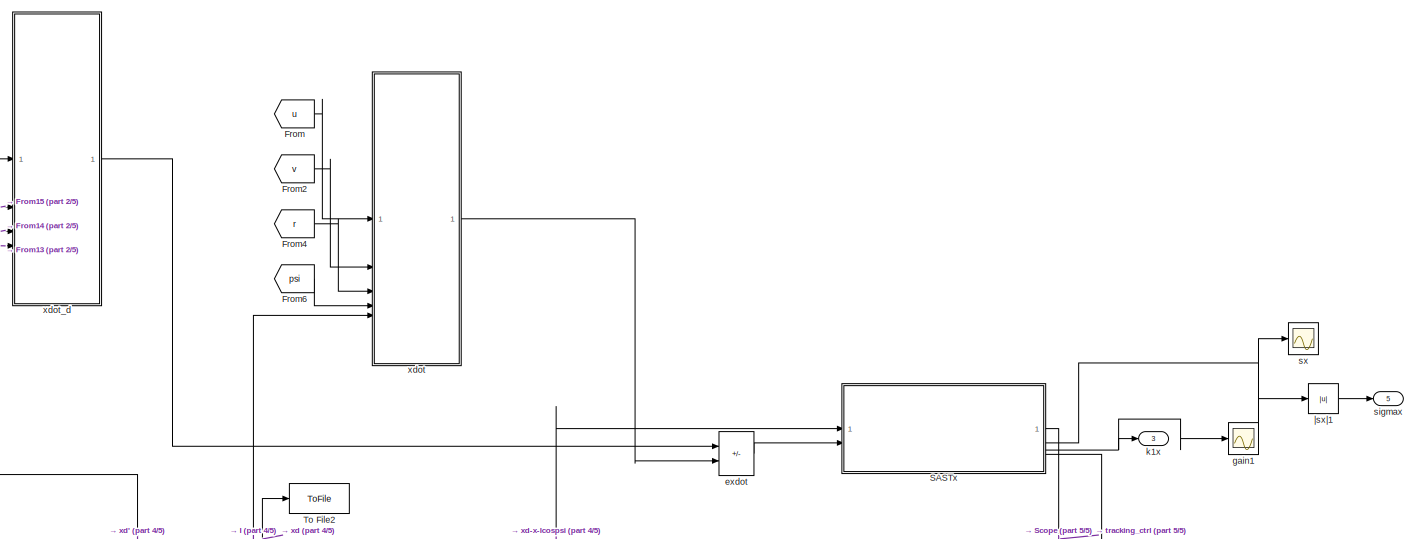
[diagram: track - part 1/5, top center region]
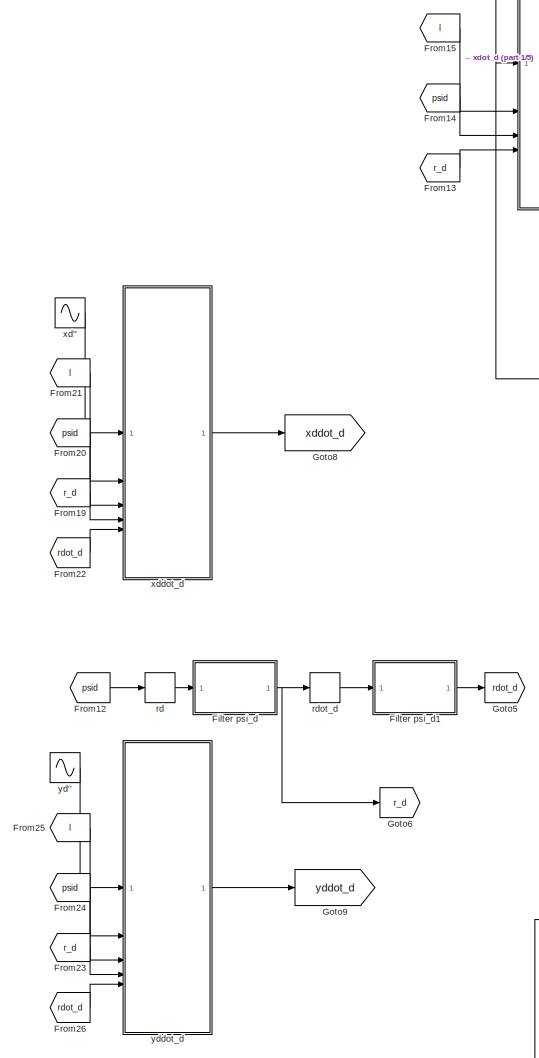
[diagram: track - part 2/5, top left region]
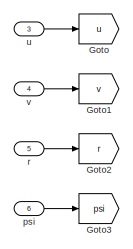
[diagram: track - part 3/5, top right region]
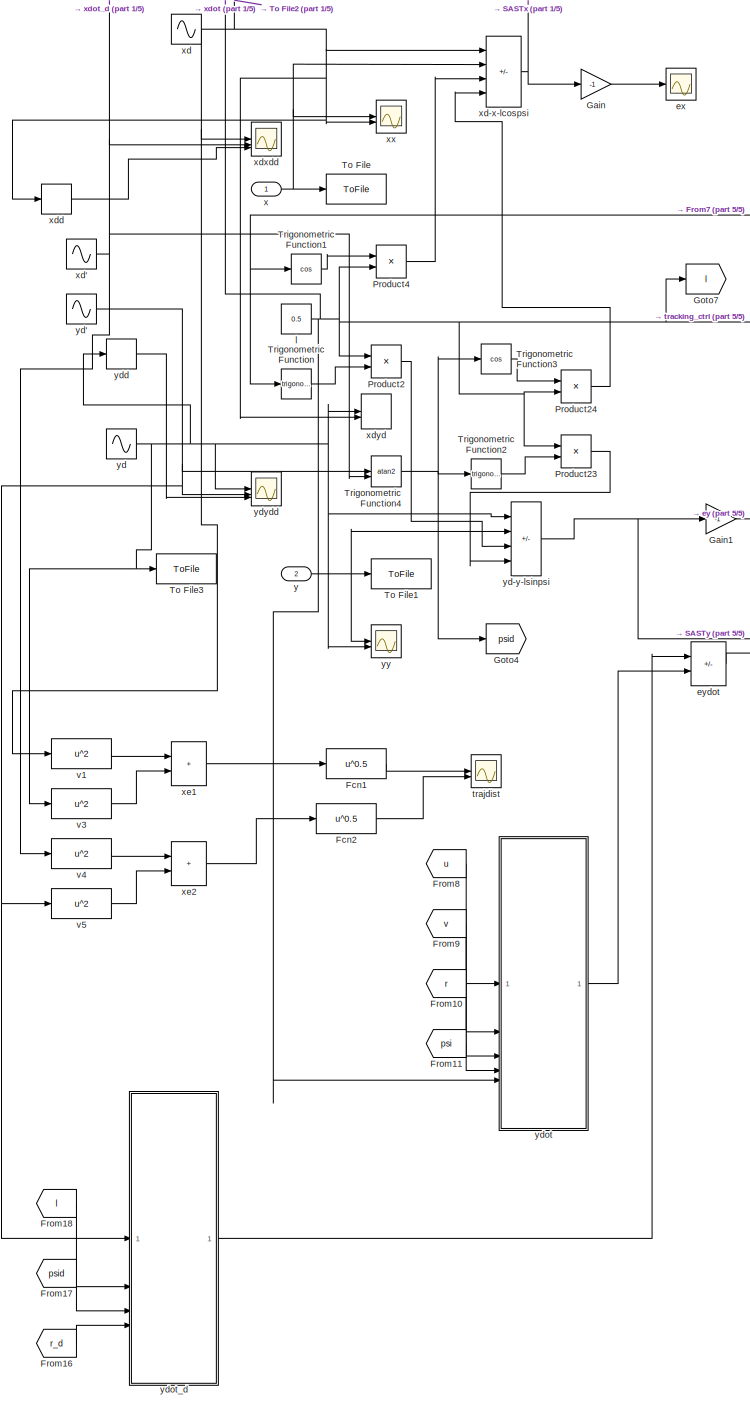
[diagram: track - part 4/5, central region]
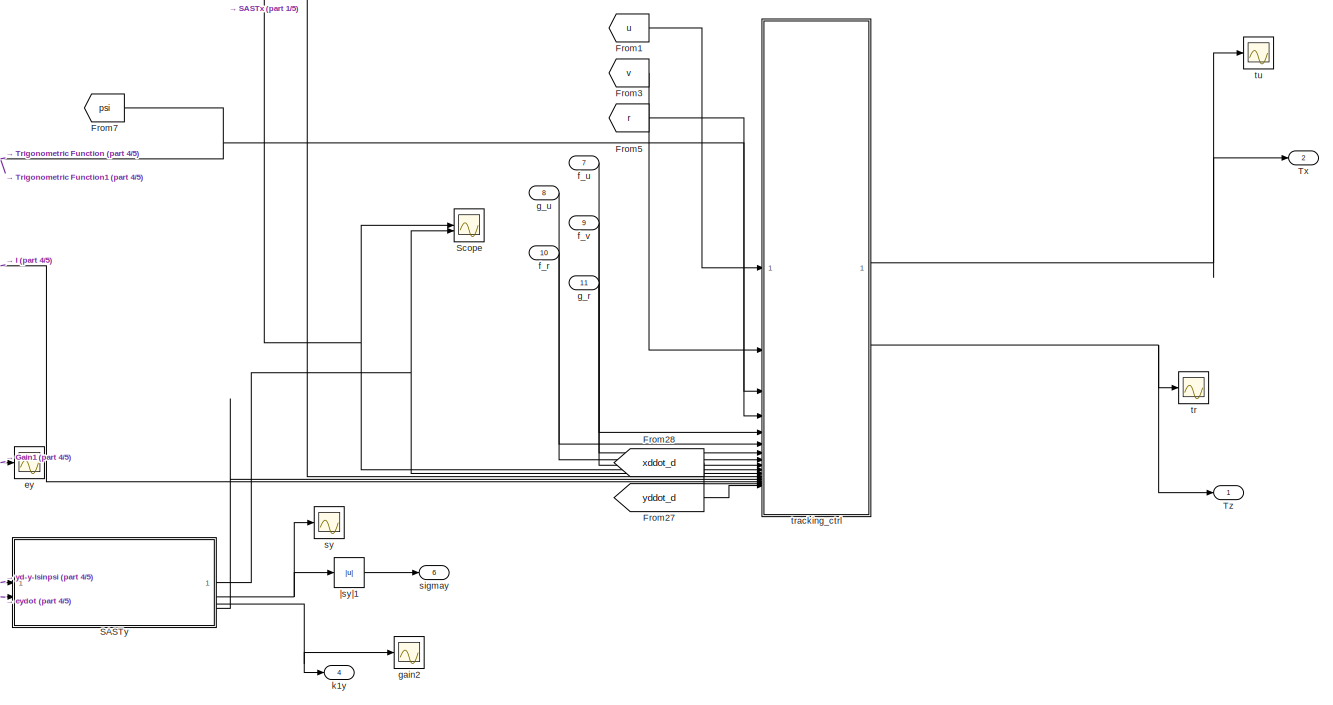
[diagram: track - part 5/5, middle right region]
BLOCK [SubSystem] track
BLOCK [Fcn] track/Fcn1
  Expr = u^0.5
BLOCK [Fcn] track/Fcn2
  Expr = u^0.5
BLOCK [SubSystem] track/Filter psi_d
BLOCK [Gain] track/Filter psi_d/Gain2
  Gain = 7
BLOCK [Gain] track/Filter psi_d/Gain5
  Gain = 7
BLOCK [Gain] track/Filter psi_d/Gain7
BLOCK [Gain] track/Filter psi_d/Gain8
  Gain = 2
BLOCK [Inport] track/Filter psi_d/In1
BLOCK [Integrator] track/Filter psi_d/Integrator2
BLOCK [Integrator] track/Filter psi_d/Integrator3
BLOCK [Outport] track/Filter psi_d/Out1
  VectorParamsAs1DForOutWhenUnconnected = off
BLOCK [Sum] track/Filter psi_d/Sum12
  Inputs = |+-
BLOCK [Sum] track/Filter psi_d/Sum13
  Inputs = |+-
BLOCK [SubSystem] track/Filter psi_d1
BLOCK [Gain] track/Filter psi_d1/Gain2
  Gain = 7
BLOCK [Gain] track/Filter psi_d1/Gain5
  Gain = 7
BLOCK [Gain] track/Filter psi_d1/Gain7
BLOCK [Gain] track/Filter psi_d1/Gain8
  Gain = 2
BLOCK [Inport] track/Filter psi_d1/In1
BLOCK [Integrator] track/Filter psi_d1/Integrator2
BLOCK [Integrator] track/Filter psi_d1/Integrator3
BLOCK [Outport] track/Filter psi_d1/Out1
  VectorParamsAs1DForOutWhenUnconnected = off
BLOCK [Sum] track/Filter psi_d1/Sum12
  Inputs = |+-
BLOCK [Sum] track/Filter psi_d1/Sum13
  Inputs = |+-
BLOCK [From] track/From
  GotoTag = u
BLOCK [From] track/From1
  GotoTag = u
BLOCK [From] track/From10
  GotoTag = r
BLOCK [From] track/From11
  GotoTag = psi
BLOCK [From] track/From12
  GotoTag = psid
BLOCK [From] track/From13
  GotoTag = r_d
BLOCK [From] track/From14
  GotoTag = psid
BLOCK [From] track/From15
  GotoTag = l
BLOCK [From] track/From16
  GotoTag = r_d
BLOCK [From] track/From17
  GotoTag = psid
BLOCK [From] track/From18
  GotoTag = l
BLOCK [From] track/From19
  GotoTag = r_d
BLOCK [From] track/From2
  GotoTag = v
BLOCK [From] track/From20
  GotoTag = psid
BLOCK [From] track/From21
  GotoTag = l
BLOCK [From] track/From22
  GotoTag = rdot_d
BLOCK [From] track/From23
  GotoTag = r_d
BLOCK [From] track/From24
  GotoTag = psid
BLOCK [From] track/From25
  GotoTag = l
BLOCK [From] track/From26
  GotoTag = rdot_d
BLOCK [From] track/From27
  GotoTag = yddot_d
BLOCK [From] track/From28
  GotoTag = xddot_d
BLOCK [From] track/From3
  GotoTag = v
BLOCK [From] track/From4
  GotoTag = r
BLOCK [From] track/From5
  GotoTag = r
BLOCK [From] track/From6
  GotoTag = psi
BLOCK [From] track/From7
  GotoTag = psi
BLOCK [From] track/From8
  GotoTag = u
BLOCK [From] track/From9
  GotoTag = v
BLOCK [Gain] track/Gain
  Gain = -1
BLOCK [Gain] track/Gain1
  Gain = -1
BLOCK [Goto] track/Goto
  GotoTag = u
BLOCK [Goto] track/Goto1
  GotoTag = v
BLOCK [Goto] track/Goto2
  GotoTag = r
BLOCK [Goto] track/Goto3
  GotoTag = psi
BLOCK [Goto] track/Goto4
  GotoTag = psid
BLOCK [Goto] track/Goto5
  GotoTag = rdot_d
BLOCK [Goto] track/Goto6
  GotoTag = r_d
BLOCK [Goto] track/Goto7
  GotoTag = l
BLOCK [Goto] track/Goto8
  GotoTag = xddot_d
BLOCK [Goto] track/Goto9
  GotoTag = yddot_d
BLOCK [Product] track/Product2
BLOCK [Product] track/Product23
BLOCK [Product] track/Product24
BLOCK [Product] track/Product4
BLOCK [SubSystem] track/SASTx
BLOCK [Abs] track/SASTx/Abs5
  SaturateOnIntegerOverflow = off
BLOCK [Gain] track/SASTx/Gain
  Gain = 2
BLOCK [Gain] track/SASTx/Gain1
  Gain = 1/2
BLOCK [Integrator] track/SASTx/Integrator
BLOCK [Product] track/SASTx/K1signs|s|^1//2
  Inputs = ***
BLOCK [Product] track/SASTx/K2sign(s)
BLOCK [Integrator] track/SASTx/L
  InitialConditionSource = external
BLOCK [Constant] track/SASTx/L0
  Value = 0.1
BLOCK [Sum] track/SASTx/Ldot
  IconShape = rectangular
  Inputs = +-
BLOCK [Product] track/SASTx/Le2
BLOCK [Math] track/SASTx/Square
  Operator = square
BLOCK [Inport] track/SASTx/e1
BLOCK [Inport] track/SASTx/e2
  Port = 2
BLOCK [Fcn] track/SASTx/g^1//2
  Expr = u^0.5
BLOCK [Product] track/SASTx/g^1//2*L^2
BLOCK [Scope] track/SASTx/gain
  Floating = off
  NumInputPorts = 1
  ScopeSpecificationString = Simulink.scopes.TimeScopeBlockCfg('CurrentConfiguration', extmgr.ConfigurationSet(extmgr.Configuration('Core','General UI',true),extmgr.Configuration('Core','Source UI',true),extmgr.Configuration('Sources','WiredSimulink',true,'DataLoggingVariableName','ScopeData1'),extmgr.Configuration('Visuals','Time Domain',true,'SerializedDisplays',{struct('MinYLimReal','-0.00125','MaxYLimReal','0.01126','YLab...<+1444ch>
BLOCK [Constant] track/SASTx/gamma
BLOCK [Constant] track/SASTx/k
  Value = 3
BLOCK [Outport] track/SASTx/k1
  Port = 3
  VectorParamsAs1DForOutWhenUnconnected = off
BLOCK [Scope] track/SASTx/k2
  Floating = off
  NumInputPorts = 1
  ScopeSpecificationString = Simulink.scopes.TimeScopeBlockCfg('CurrentConfiguration', extmgr.ConfigurationSet(extmgr.Configuration('Core','General UI',true),extmgr.Configuration('Core','Source UI',true),extmgr.Configuration('Sources','WiredSimulink',true,'DataLoggingVariableName','ScopeData1'),extmgr.Configuration('Visuals','Time Domain',true,'SerializedDisplays',{struct('MinYLimReal','-0.04667','MaxYLimReal','0.42052','YLab...<+1440ch>
BLOCK [Fcn] track/SASTx/k^1//2
  Expr = u^0.5
BLOCK [Product] track/SASTx/k^1//2*|s|^1//2
BLOCK [Constant] track/SASTx/lambda
BLOCK [Product] track/SASTx/lambda*e1
BLOCK [Outport] track/SASTx/lambda*e2
  Port = 4
  VectorParamsAs1DForOutWhenUnconnected = off
BLOCK [Sum] track/SASTx/s
  IconShape = rectangular
BLOCK [Scope] track/SASTx/s1
  Floating = off
  NumInputPorts = 1
  ScopeSpecificationString = Simulink.scopes.TimeScopeBlockCfg('CurrentConfiguration', extmgr.ConfigurationSet(extmgr.Configuration('Core','General UI',true),extmgr.Configuration('Core','Source UI',true),extmgr.Configuration('Sources','WiredSimulink',true,'DataLoggingVariableName','ScopeData1'),extmgr.Configuration('Visuals','Time Domain',true,'SerializedDisplays',{struct('MinYLimReal','-0.23348','MaxYLimReal','1.13705','YLab...<+1435ch>
BLOCK [Outport] track/SASTx/sigma
  Port = 2
  VectorParamsAs1DForOutWhenUnconnected = off
BLOCK [Signum] track/SASTx/sign_s
BLOCK [Outport] track/SASTx/u
  VectorParamsAs1DForOutWhenUnconnected = off
BLOCK [Sum] track/SASTx/ua
  IconShape = rectangular
  Inputs = --
BLOCK [Fcn] track/SASTx/|s|^1//2
  Expr = u^0.5
BLOCK [SubSystem] track/SASTy
BLOCK [Abs] track/SASTy/Abs5
  SaturateOnIntegerOverflow = off
BLOCK [Gain] track/SASTy/Gain
  Gain = 2
BLOCK [Gain] track/SASTy/Gain1
  Gain = 1/2
BLOCK [Integrator] track/SASTy/Integrator
BLOCK [Product] track/SASTy/K1signs|s|^1//2
  Inputs = ***
BLOCK [Product] track/SASTy/K2sign(s)
BLOCK [Integrator] track/SASTy/L
  InitialConditionSource = external
BLOCK [Constant] track/SASTy/L0
  Value = 0.1
BLOCK [Sum] track/SASTy/Ldot
  IconShape = rectangular
  Inputs = +-
BLOCK [Product] track/SASTy/Le2
BLOCK [Math] track/SASTy/Square
  Operator = square
BLOCK [Inport] track/SASTy/e1
BLOCK [Inport] track/SASTy/e2
  Port = 2
BLOCK [Fcn] track/SASTy/g^1//2
  Expr = u^0.5
BLOCK [Product] track/SASTy/g^1//2*L^2
BLOCK [Scope] track/SASTy/gain
  Floating = off
  NumInputPorts = 1
  ScopeSpecificationString = Simulink.scopes.TimeScopeBlockCfg('CurrentConfiguration', extmgr.ConfigurationSet(extmgr.Configuration('Core','General UI',true),extmgr.Configuration('Core','Source UI',true),extmgr.Configuration('Sources','WiredSimulink',true,'DataLoggingVariableName','ScopeData1'),extmgr.Configuration('Visuals','Time Domain',true,'SerializedDisplays',{struct('MinYLimReal','-0.00125','MaxYLimReal','0.01126','YLab...<+1444ch>
BLOCK [Constant] track/SASTy/gamma
BLOCK [Constant] track/SASTy/k
  Value = 3
BLOCK [Outport] track/SASTy/k1
  Port = 3
  VectorParamsAs1DForOutWhenUnconnected = off
BLOCK [Scope] track/SASTy/k2
  Floating = off
  NumInputPorts = 1
  ScopeSpecificationString = Simulink.scopes.TimeScopeBlockCfg('CurrentConfiguration', extmgr.ConfigurationSet(extmgr.Configuration('Core','General UI',true),extmgr.Configuration('Core','Source UI',true),extmgr.Configuration('Sources','WiredSimulink',true,'DataLoggingVariableName','ScopeData1'),extmgr.Configuration('Visuals','Time Domain',true,'SerializedDisplays',{struct('MinYLimReal','-0.04667','MaxYLimReal','0.42052','YLab...<+1440ch>
BLOCK [Fcn] track/SASTy/k^1//2
  Expr = u^0.5
BLOCK [Product] track/SASTy/k^1//2*|s|^1//2
BLOCK [Constant] track/SASTy/lambda
BLOCK [Product] track/SASTy/lambda*e1
BLOCK [Outport] track/SASTy/lambda*e2
  Port = 4
  VectorParamsAs1DForOutWhenUnconnected = off
BLOCK [Sum] track/SASTy/s
  IconShape = rectangular
BLOCK [Scope] track/SASTy/s1
  Floating = off
  NumInputPorts = 1
  ScopeSpecificationString = Simulink.scopes.TimeScopeBlockCfg('CurrentConfiguration', extmgr.ConfigurationSet(extmgr.Configuration('Core','General UI',true),extmgr.Configuration('Core','Source UI',true),extmgr.Configuration('Sources','WiredSimulink',true,'DataLoggingVariableName','ScopeData1'),extmgr.Configuration('Visuals','Time Domain',true,'SerializedDisplays',{struct('MinYLimReal','-0.23348','MaxYLimReal','1.13705','YLab...<+1435ch>
BLOCK [Outport] track/SASTy/sigma
  Port = 2
  VectorParamsAs1DForOutWhenUnconnected = off
BLOCK [Signum] track/SASTy/sign_s
BLOCK [Outport] track/SASTy/u
  VectorParamsAs1DForOutWhenUnconnected = off
BLOCK [Sum] track/SASTy/ua
  IconShape = rectangular
  Inputs = --
BLOCK [Fcn] track/SASTy/|s|^1//2
  Expr = u^0.5
BLOCK [Scope] track/Scope
  Floating = off
  NumInputPorts = 2
  ScopeSpecificationString = Simulink.scopes.TimeScopeBlockCfg('CurrentConfiguration', extmgr.ConfigurationSet(extmgr.Configuration('Core','General UI',true),extmgr.Configuration('Core','Source UI',true),extmgr.Configuration('Sources','WiredSimulink',true,'DataLoggingVariableName','ScopeData1'),extmgr.Configuration('Visuals','Time Domain',true,'SerializedDisplays',{struct('MinYLimReal','-1.9888','MaxYLimReal','2.21744','YLabe...<+1432ch>
BLOCK [ToFile] track/To File
  Filename = xasmc.mat
BLOCK [ToFile] track/To File1
  Filename = yasmc.mat
BLOCK [ToFile] track/To File2
  Filename = xdasmc.mat
BLOCK [ToFile] track/To File3
  Filename = ydasmc.mat
BLOCK [Trigonometry] track/Trigonometric Function
BLOCK [Trigonometry] track/Trigonometric Function1
  Operator = cos
BLOCK [Trigonometry] track/Trigonometric Function2
BLOCK [Trigonometry] track/Trigonometric Function3
  Operator = cos
BLOCK [Trigonometry] track/Trigonometric Function4
  Operator = atan2
BLOCK [Outport] track/Tx
  Port = 2
BLOCK [Outport] track/Tz
BLOCK [Scope] track/ex
  Floating = off
  NumInputPorts = 1
  ScopeSpecificationString = Simulink.scopes.TimeScopeBlockCfg('CurrentConfiguration', extmgr.ConfigurationSet(extmgr.Configuration('Core','General UI',true),extmgr.Configuration('Core','Source UI',true),extmgr.Configuration('Sources','WiredSimulink',true,'DataLoggingVariableName','ScopeData3'),extmgr.Configuration('Visuals','Time Domain',true,'SerializedDisplays',{struct('MinYLimReal','-1.0027','MaxYLimReal','0.7402','YLabel...<+1431ch>
BLOCK [Sum] track/exdot
  IconShape = rectangular
  Inputs = +-
BLOCK [Scope] track/ey
  Floating = off
  NumInputPorts = 1
  ScopeSpecificationString = Simulink.scopes.TimeScopeBlockCfg('CurrentConfiguration', extmgr.ConfigurationSet(extmgr.Configuration('Core','General UI',true),extmgr.Configuration('Core','Source UI',true),extmgr.Configuration('Sources','WiredSimulink',true,'DataLoggingVariableName','ScopeData2'),extmgr.Configuration('Visuals','Time Domain',true,'SerializedDisplays',{struct('MinYLimReal','-2.34211','MaxYLimReal','1.01572','YLab...<+1438ch>
BLOCK [Sum] track/eydot
  IconShape = rectangular
  Inputs = +-
BLOCK [Inport] track/f_r
  Port = 10
BLOCK [Inport] track/f_u
  Port = 7
BLOCK [Inport] track/f_v
  Port = 9
BLOCK [Inport] track/g_r
  Port = 11
BLOCK [Inport] track/g_u
  Port = 8
BLOCK [Scope] track/gain1
  Floating = off
  NumInputPorts = 1
  ScopeSpecificationString = Simulink.scopes.TimeScopeBlockCfg('CurrentConfiguration', extmgr.ConfigurationSet(extmgr.Configuration('Core','General UI',true),extmgr.Configuration('Core','Source UI',true),extmgr.Configuration('Sources','WiredSimulink',true,'DataLoggingVariableName','ScopeData4'),extmgr.Configuration('Visuals','Time Domain',true,'SerializedDisplays',{struct('MinYLimReal','-0.11269','MaxYLimReal','1.11421','YLab...<+1440ch>
BLOCK [Scope] track/gain2
  Floating = off
  NumInputPorts = 1
  ScopeSpecificationString = Simulink.scopes.TimeScopeBlockCfg('CurrentConfiguration', extmgr.ConfigurationSet(extmgr.Configuration('Core','General UI',true),extmgr.Configuration('Core','Source UI',true),extmgr.Configuration('Sources','WiredSimulink',true,'DataLoggingVariableName','ScopeData7'),extmgr.Configuration('Visuals','Time Domain',true,'SerializedDisplays',{struct('MinYLimReal','-0.11269','MaxYLimReal','1.11421','YLab...<+1443ch>
BLOCK [Outport] track/k1x
  Port = 3
  VectorParamsAs1DForOutWhenUnconnected = off
BLOCK [Outport] track/k1y
  Port = 4
  VectorParamsAs1DForOutWhenUnconnected = off
BLOCK [Constant] track/l
  Value = 0.5
BLOCK [Inport] track/psi
  Port = 6
BLOCK [Inport] track/r
  Port = 5
BLOCK [Derivative] track/rd
BLOCK [Derivative] track/rdot_d
BLOCK [Outport] track/sigmax
  Port = 5
  VectorParamsAs1DForOutWhenUnconnected = off
BLOCK [Outport] track/sigmay
  Port = 6
  VectorParamsAs1DForOutWhenUnconnected = off
BLOCK [Scope] track/sx
  Floating = off
  NumInputPorts = 1
  ScopeSpecificationString = Simulink.scopes.TimeScopeBlockCfg('CurrentConfiguration', extmgr.ConfigurationSet(extmgr.Configuration('Core','General UI',true),extmgr.Configuration('Core','Source UI',true),extmgr.Configuration('Sources','WiredSimulink',true,'DataLoggingVariableName','ScopeData1'),extmgr.Configuration('Visuals','Time Domain',true,'SerializedDisplays',{struct('MinYLimReal','-0.16069','MaxYLimReal','1.43847','YLab...<+1435ch>
BLOCK [Scope] track/sy
  Floating = off
  NumInputPorts = 1
  ScopeSpecificationString = Simulink.scopes.TimeScopeBlockCfg('CurrentConfiguration', extmgr.ConfigurationSet(extmgr.Configuration('Core','General UI',true),extmgr.Configuration('Core','Source UI',true),extmgr.Configuration('Sources','WiredSimulink',true,'DataLoggingVariableName','ScopeData3'),extmgr.Configuration('Visuals','Time Domain',true,'SerializedDisplays',{struct('MinYLimReal','-0.70439','MaxYLimReal','1.74496','YLab...<+1436ch>
BLOCK [Scope] track/tr
  Floating = off
  NumInputPorts = 1
  ScopeSpecificationString = Simulink.scopes.TimeScopeBlockCfg('CurrentConfiguration', extmgr.ConfigurationSet(extmgr.Configuration('Core','General UI',true),extmgr.Configuration('Core','Source UI',true),extmgr.Configuration('Sources','WiredSimulink',true,'DataLoggingVariableName','ScopeData4'),extmgr.Configuration('Visuals','Time Domain',true,'SerializedDisplays',{struct('MinYLimReal','-37.5051','MaxYLimReal','30.06561','YLa...<+1455ch>
BLOCK [SubSystem] track/tracking_ctrl
  ErrorFcn = Stateflow.Translate.translate
  PermitHierarchicalResolution = ExplicitOnly
  SFBlockType = MATLAB Function
  TreatAsAtomicUnit = on
BLOCK [Demux] track/tracking_ctrl/ Demux 
  Outputs = 1
BLOCK [S-Function] track/tracking_ctrl/ SFunction 
  EnableBusSupport = on
  FunctionName = sf_sfun
  PortCounts = [16 3]
  SFcnIsStateOwnerBlock = off
  SFunctionDeploymentMode = off
  Tag = Stateflow S-Function 1
BLOCK [Terminator] track/tracking_ctrl/ Terminator 
BLOCK [Inport] track/tracking_ctrl/fr
  Port = 8
BLOCK [Inport] track/tracking_ctrl/fu
  Port = 5
BLOCK [Inport] track/tracking_ctrl/fv
  Port = 7
BLOCK [Inport] track/tracking_ctrl/gr
  Port = 9
BLOCK [Inport] track/tracking_ctrl/gu
  Port = 6
BLOCK [Inport] track/tracking_ctrl/l
  Port = 14
BLOCK [Inport] track/tracking_ctrl/le2x
  Port = 12
BLOCK [Inport] track/tracking_ctrl/le2y
  Port = 13
BLOCK [Inport] track/tracking_ctrl/psi
  Port = 4
BLOCK [Inport] track/tracking_ctrl/r
  Port = 3
BLOCK [Outport] track/tracking_ctrl/tr
  Port = 2
BLOCK [Outport] track/tracking_ctrl/tu
BLOCK [Inport] track/tracking_ctrl/u
BLOCK [Inport] track/tracking_ctrl/uax
  Port = 10
BLOCK [Inport] track/tracking_ctrl/uay
  Port = 11
BLOCK [Inport] track/tracking_ctrl/v
  Port = 2
BLOCK [Inport] track/tracking_ctrl/xddot_d
  Port = 15
BLOCK [Inport] track/tracking_ctrl/yddot_d
  Port = 16
BLOCK [Scope] track/trajdist
  Floating = off
  NumInputPorts = 2
  ScopeSpecificationString = Simulink.scopes.TimeScopeBlockCfg('CurrentConfiguration', extmgr.ConfigurationSet(extmgr.Configuration('Core','General UI',true),extmgr.Configuration('Core','Source UI',true),extmgr.Configuration('Sources','WiredSimulink',true,'DataLoggingVariableName','ScopeData4'),extmgr.Configuration('Visuals','Time Domain',true,'SerializedDisplays',{struct('MinYLimReal','-1.30724','MaxYLimReal','16.26906','YLa...<+1494ch>
BLOCK [Scope] track/tu
  Floating = off
  NumInputPorts = 1
  ScopeSpecificationString = Simulink.scopes.TimeScopeBlockCfg('CurrentConfiguration', extmgr.ConfigurationSet(extmgr.Configuration('Core','General UI',true),extmgr.Configuration('Core','Source UI',true),extmgr.Configuration('Sources','WiredSimulink',true,'DataLoggingVariableName','ScopeData10'),extmgr.Configuration('Visuals','Time Domain',true,'SerializedDisplays',{struct('MinYLimReal','-27.47489','MaxYLimReal','158.67897','...<+1460ch>
BLOCK [Inport] track/u
  Port = 3
BLOCK [Inport] track/v
  Port = 4
BLOCK [Fcn] track/v1
  Expr = u^2
BLOCK [Fcn] track/v3
  Expr = u^2
BLOCK [Fcn] track/v4
  Expr = u^2
BLOCK [Fcn] track/v5
  Expr = u^2
BLOCK [Inport] track/x
BLOCK [Sin] track/xd
  Amplitude = 2.5
  Bias = 0.5
  Frequency = pi/15
  SampleTime = 0
BLOCK [Sin] track/xd'
  Amplitude = 2.5*pi/15
  Frequency = pi/15
  Phase = pi/2
  SampleTime = 0
BLOCK [Sin] track/xd''
  Amplitude = -2.5*(pi/15)*(pi/15)
  Frequency = pi/15
  SampleTime = 0
BLOCK [Sum] track/xd-x-lcospsi
  IconShape = rectangular
  Inputs = +--+
BLOCK [Derivative] track/xdd
BLOCK [SubSystem] track/xddot_d
  ErrorFcn = Stateflow.Translate.translate
  PermitHierarchicalResolution = ExplicitOnly
  SFBlockType = MATLAB Function
  TreatAsAtomicUnit = on
BLOCK [Demux] track/xddot_d/ Demux 
  Outputs = 1
BLOCK [S-Function] track/xddot_d/ SFunction 
  EnableBusSupport = on
  FunctionName = sf_sfun
  PortCounts = [5 2]
  SFcnIsStateOwnerBlock = off
  SFunctionDeploymentMode = off
  Tag = Stateflow S-Function 6
BLOCK [Terminator] track/xddot_d/ Terminator 
BLOCK [Inport] track/xddot_d/l
  Port = 2
BLOCK [Inport] track/xddot_d/psid
  Port = 3
BLOCK [Inport] track/xddot_d/rd
  Port = 4
BLOCK [Inport] track/xddot_d/rdot_d
  Port = 5
BLOCK [Outport] track/xddot_d/xddot
BLOCK [Inport] track/xddot_d/xddot_d
BLOCK [SubSystem] track/xdot
  ErrorFcn = Stateflow.Translate.translate
  PermitHierarchicalResolution = ExplicitOnly
  SFBlockType = MATLAB Function
  TreatAsAtomicUnit = on
BLOCK [Demux] track/xdot/ Demux 
  Outputs = 1
BLOCK [S-Function] track/xdot/ SFunction 
  EnableBusSupport = on
  FunctionName = sf_sfun
  PortCounts = [5 2]
  SFcnIsStateOwnerBlock = off
  SFunctionDeploymentMode = off
  Tag = Stateflow S-Function 2
BLOCK [Terminator] track/xdot/ Terminator 
BLOCK [Inport] track/xdot/l
  Port = 5
BLOCK [Inport] track/xdot/psi
  Port = 4
BLOCK [Inport] track/xdot/r
  Port = 3
BLOCK [Inport] track/xdot/u
BLOCK [Inport] track/xdot/v
  Port = 2
BLOCK [Outport] track/xdot/xdot
BLOCK [SubSystem] track/xdot_d
  ErrorFcn = Stateflow.Translate.translate
  PermitHierarchicalResolution = ExplicitOnly
  SFBlockType = MATLAB Function
  TreatAsAtomicUnit = on
BLOCK [Demux] track/xdot_d/ Demux 
  Outputs = 1
BLOCK [S-Function] track/xdot_d/ SFunction 
  EnableBusSupport = on
  FunctionName = sf_sfun
  PortCounts = [4 2]
  SFcnIsStateOwnerBlock = off
  SFunctionDeploymentMode = off
  Tag = Stateflow S-Function 4
BLOCK [Terminator] track/xdot_d/ Terminator 
BLOCK [Inport] track/xdot_d/l
  Port = 2
BLOCK [Inport] track/xdot_d/psid
  Port = 3
BLOCK [Inport] track/xdot_d/rd
  Port = 4
BLOCK [Outport] track/xdot_d/xdot
BLOCK [Inport] track/xdot_d/xdot_d
BLOCK [Scope] track/xdxdd
  Floating = off
  NumInputPorts = 3
  ScopeSpecificationString = Simulink.scopes.TimeScopeBlockCfg('CurrentConfiguration', extmgr.ConfigurationSet(extmgr.Configuration('Core','General UI',true),extmgr.Configuration('Core','Source UI',true),extmgr.Configuration('Sources','WiredSimulink',true,'DataLoggingVariableName','ScopeData2'),extmgr.Configuration('Visuals','Time Domain',true,'SerializedDisplays',{struct('MinYLimReal','-12.4','MaxYLimReal','12.6','YLabelReal...<+1495ch>
BLOCK [Record] track/xdyd
  CompatibilityTag = XY
  FileSettingsInternal = {"entries":[{"content":{"excelSettings":{"content":{},"type":"Streamout.ExcelSettings"}},"type":"Streamout.FileSettingStorage","uuid":""}],"packageUris":["http:\/\/schema.mathworks.com\/mf0\/streamout_blocks\/R2020a"],"version":"1.0"}
  Layout = [1 1]
  SignalsInternal = {"entries":[{"content":{"signals":[{"content":{"blockPath":[],"dimensions":[1],"domain":"","lineColor":"#a2142f","plots":[1],"port":1,"sid":[""],"signalID":116,"signalName":"yd"},"type":"RecordBlkView.Signal","uuid":""},{"content":{"blockPath":[],"dimensions":[1],"domain":"","lineColor":"#139fff","plots":[1],"port":2,"sid":[""],"signalID":120,"signalName":"xd"},"type":"RecordBlkView.Signal","uuid"...<+150ch>
  VisualizationBindings = {"xyplotplugin":{"info":[{"series":[{"bindingParametersList":[{"parameter":"X-Axis","signalID":116,"signalName":"yd"},{"parameter":"Y-Axis","signalID":120,"signalName":"xd"}],"seriesID":3603}],"subplotID":1}]}}
  st = -1
BLOCK [Sum] track/xe1
  IconShape = rectangular
BLOCK [Sum] track/xe2
  IconShape = rectangular
BLOCK [Scope] track/xx
  Floating = off
  NumInputPorts = 2
  ScopeSpecificationString = Simulink.scopes.TimeScopeBlockCfg('CurrentConfiguration', extmgr.ConfigurationSet(extmgr.Configuration('Core','General UI',true),extmgr.Configuration('Core','Source UI',true),extmgr.Configuration('Sources','WiredSimulink',true,'DataLoggingVariableName','ScopeData3'),extmgr.Configuration('Visuals','Time Domain',true,'SerializedDisplays',{struct('MinYLimReal','-2.34886','MaxYLimReal','4.25965','YLab...<+1439ch>
BLOCK [Inport] track/y
  Port = 2
BLOCK [Sin] track/yd
  Amplitude = 7
  Bias = -7.5
  Frequency = pi/30
  Phase = pi/2
  SampleTime = 0
BLOCK [Sin] track/yd'
  Amplitude = -7*pi/30
  Frequency = pi/30
  SampleTime = 0
BLOCK [Sin] track/yd''
  Amplitude = -7*(pi/30)*(pi/30)
  Frequency = pi/30
  Phase = pi/2
  SampleTime = 0
BLOCK [Sum] track/yd-y-lsinpsi
  IconShape = rectangular
  Inputs = +--+
BLOCK [Derivative] track/ydd
BLOCK [SubSystem] track/yddot_d
  ErrorFcn = Stateflow.Translate.translate
  PermitHierarchicalResolution = ExplicitOnly
  SFBlockType = MATLAB Function
  TreatAsAtomicUnit = on
BLOCK [Demux] track/yddot_d/ Demux 
  Outputs = 1
BLOCK [S-Function] track/yddot_d/ SFunction 
  EnableBusSupport = on
  FunctionName = sf_sfun
  PortCounts = [5 2]
  SFcnIsStateOwnerBlock = off
  SFunctionDeploymentMode = off
  Tag = Stateflow S-Function 7
BLOCK [Terminator] track/yddot_d/ Terminator 
BLOCK [Inport] track/yddot_d/l
  Port = 2
BLOCK [Inport] track/yddot_d/psid
  Port = 3
BLOCK [Inport] track/yddot_d/rd
  Port = 4
BLOCK [Inport] track/yddot_d/rdot_d
  Port = 5
BLOCK [Outport] track/yddot_d/yddot
BLOCK [Inport] track/yddot_d/yddot_d
BLOCK [SubSystem] track/ydot
  ErrorFcn = Stateflow.Translate.translate
  PermitHierarchicalResolution = ExplicitOnly
  SFBlockType = MATLAB Function
  TreatAsAtomicUnit = on
BLOCK [Demux] track/ydot/ Demux 
  Outputs = 1
BLOCK [S-Function] track/ydot/ SFunction 
  EnableBusSupport = on
  FunctionName = sf_sfun
  PortCounts = [5 2]
  SFcnIsStateOwnerBlock = off
  SFunctionDeploymentMode = off
  Tag = Stateflow S-Function 3
BLOCK [Terminator] track/ydot/ Terminator 
BLOCK [Inport] track/ydot/l
  Port = 5
BLOCK [Inport] track/ydot/psi
  Port = 4
BLOCK [Inport] track/ydot/r
  Port = 3
BLOCK [Inport] track/ydot/u
BLOCK [Inport] track/ydot/v
  Port = 2
BLOCK [Outport] track/ydot/ydot
BLOCK [SubSystem] track/ydot_d
  ErrorFcn = Stateflow.Translate.translate
  PermitHierarchicalResolution = ExplicitOnly
  SFBlockType = MATLAB Function
  TreatAsAtomicUnit = on
BLOCK [Demux] track/ydot_d/ Demux 
  Outputs = 1
BLOCK [S-Function] track/ydot_d/ SFunction 
  EnableBusSupport = on
  FunctionName = sf_sfun
  PortCounts = [4 2]
  SFcnIsStateOwnerBlock = off
  SFunctionDeploymentMode = off
  Tag = Stateflow S-Function 5
BLOCK [Terminator] track/ydot_d/ Terminator 
BLOCK [Inport] track/ydot_d/l
  Port = 2
BLOCK [Inport] track/ydot_d/psid
  Port = 3
BLOCK [Inport] track/ydot_d/rd
  Port = 4
BLOCK [Outport] track/ydot_d/ydot
BLOCK [Inport] track/ydot_d/ydot_d
BLOCK [Scope] track/ydydd
  Floating = off
  NumInputPorts = 3
  ScopeSpecificationString = Simulink.scopes.TimeScopeBlockCfg('CurrentConfiguration', extmgr.ConfigurationSet(extmgr.Configuration('Core','General UI',true),extmgr.Configuration('Core','Source UI',true),extmgr.Configuration('Sources','WiredSimulink',true,'DataLoggingVariableName','ScopeData1'),extmgr.Configuration('Visuals','Time Domain',true,'SerializedDisplays',{struct('MinYLimReal','-16.06663','MaxYLimReal','2.59967','YLa...<+1518ch>
BLOCK [Scope] track/yy
  Floating = off
  NumInputPorts = 2
  ScopeSpecificationString = Simulink.scopes.TimeScopeBlockCfg('CurrentConfiguration', extmgr.ConfigurationSet(extmgr.Configuration('Core','General UI',true),extmgr.Configuration('Core','Source UI',true),extmgr.Configuration('Sources','WiredSimulink',true,'DataLoggingVariableName','ScopeData6'),extmgr.Configuration('Visuals','Time Domain',true,'SerializedDisplays',{struct('MinYLimReal','-16.96577','MaxYLimReal','1.91685','YLa...<+1447ch>
BLOCK [Abs] track/|sx|1
  SaturateOnIntegerOverflow = off
BLOCK [Abs] track/|sy|1
  SaturateOnIntegerOverflow = off
ANNOTATION USV_Env/Dynamic Model/Construct Matrices: v' local
LINE Gain3:1 -> Thrust pwm:1
LINE Gain4:1 -> Thrust pwm:2
LINE Radians to Degrees:1 -> Yaw Deg:1
NET Saturation3:1 -> Subsystem:1, Tx Tz:1
NET Saturation4:1 -> Subsystem:3, Tx Tz:2
NET Subsystem/B:1 -> Subsystem/Product1:2, Subsystem/Product:2
LINE Subsystem/Gain1:1 -> Subsystem/Sum1:1
LINE Subsystem/Gain:1 -> Subsystem/Sum:1
LINE Subsystem/Product1:1 -> Subsystem/Sum1:2
LINE Subsystem/Product:1 -> Subsystem/Sum:2
LINE Subsystem/Saturation1:1 -> Subsystem/Tport:1
LINE Subsystem/Saturation2:1 -> Subsystem/Tstbd:1
LINE Subsystem/Sum1:1 -> Subsystem/Saturation2:1
LINE Subsystem/Sum:1 -> Subsystem/Saturation1:1
NET Subsystem/Tx:1 -> Subsystem/Gain1:1, Subsystem/Gain:1
NET Subsystem/Tz:1 -> Subsystem/Product1:1, Subsystem/Product:1
NET Subsystem:1 -> Gain3:1, Thrust N:1, USV_Env:1
NET Subsystem:2 -> Gain4:1, Thrust N:2, USV_Env:2
LINE USV_Env/Currents/Beta:1 -> USV_Env/Currents/Bc:1
LINE USV_Env/Currents/Product:1 -> USV_Env/Currents/Sum:2
NET USV_Env/Currents/Saturation:1 -> USV_Env/Currents/Current Speed:1, USV_Env/Currents/gamawr:1
LINE USV_Env/Currents/Sum:1 -> USV_Env/Currents/Vc_int:1
NET USV_Env/Currents/Vc_int:1 -> USV_Env/Currents/Product:2, USV_Env/Currents/Saturation:1
LINE USV_Env/Currents/gamawr:1 -> USV_Env/Currents/Vc:1
LINE USV_Env/Currents/mu:1 -> USV_Env/Currents/Product:1
LINE USV_Env/Currents/w:1 -> USV_Env/Currents/Sum:1
LINE USV_Env/Currents:1 -> USV_Env/Dynamic Model:5
LINE USV_Env/Currents:2 -> USV_Env/Dynamic Model:6
LINE USV_Env/Demux2:1 -> USV_Env/x:1
LINE USV_Env/Demux2:2 -> USV_Env/y:1
NET USV_Env/Demux2:3 -> USV_Env/Waves:1, USV_Env/Wind:3, USV_Env/psi:1
NET USV_Env/Demux3:1 -> USV_Env/Waves:2, USV_Env/Wind:1, USV_Env/u:1
NET USV_Env/Demux3:2 -> USV_Env/Waves:3, USV_Env/Wind:2, USV_Env/v:1
LINE USV_Env/Demux3:3 -> USV_Env/r:1
LINE USV_Env/Dynamic Model/BetaCurrent:1 -> USV_Env/Dynamic Model/VCrurrent - local:2
LINE USV_Env/Dynamic Model/Bhull :1 -> USV_Env/Dynamic Model/Hydrodynamic Coefficients:4
NET USV_Env/Dynamic Model/Centerline-to-centerline:1 -> USV_Env/Dynamic Model/B:1, USV_Env/Dynamic Model/Construct Matrices:9
LINE USV_Env/Dynamic Model/Construct Matrices/B:1 -> USV_Env/Dynamic Model/Construct Matrices/T-C(v)-D(v):10
NET USV_Env/Dynamic Model/Construct Matrices/Hydrodynamic Coefficients:1 -> USV_Env/Dynamic Model/Construct Matrices/M:5, USV_Env/Dynamic Model/Construct Matrices/T-C(v)-D(v):7
LINE USV_Env/Dynamic Model/Construct Matrices/Integrator:1 -> USV_Env/Dynamic Model/Construct Matrices/V- local:1
LINE USV_Env/Dynamic Model/Construct Matrices/Iz:1 -> USV_Env/Dynamic Model/Construct Matrices/M:4
LINE USV_Env/Dynamic Model/Construct Matrices/M/Bus Selector:1 -> USV_Env/Dynamic Model/Construct Matrices/M/Sum14:2
LINE USV_Env/Dynamic Model/Construct Matrices/M/Bus Selector:2 -> USV_Env/Dynamic Model/Construct Matrices/M/Sum16:2
LINE USV_Env/Dynamic Model/Construct Matrices/M/Bus Selector:3 -> USV_Env/Dynamic Model/Construct Matrices/M/Sum17:2
LINE USV_Env/Dynamic Model/Construct Matrices/M/Bus Selector:4 -> USV_Env/Dynamic Model/Construct Matrices/M/Sum15:2
LINE USV_Env/Dynamic Model/Construct Matrices/M/Bus Selector:5 -> USV_Env/Dynamic Model/Construct Matrices/M/Sum18:2
NET USV_Env/Dynamic Model/Construct Matrices/M/Constant3:1 -> USV_Env/Dynamic Model/Construct Matrices/M/Matrix M:2, USV_Env/Dynamic Model/Construct Matrices/M/Matrix M:4
NET USV_Env/Dynamic Model/Construct Matrices/M/Gain8:1 -> USV_Env/Dynamic Model/Construct Matrices/M/Matrix M:3, USV_Env/Dynamic Model/Construct Matrices/M/Matrix M:7
LINE USV_Env/Dynamic Model/Construct Matrices/M/Hydrodynamic coefficients:1 -> USV_Env/Dynamic Model/Construct Matrices/M/Bus Selector:1
LINE USV_Env/Dynamic Model/Construct Matrices/M/I_z:1 -> USV_Env/Dynamic Model/Construct Matrices/M/Sum18:1
LINE USV_Env/Dynamic Model/Construct Matrices/M/Matrix M:1 -> USV_Env/Dynamic Model/Construct Matrices/M/M:1
LINE USV_Env/Dynamic Model/Construct Matrices/M/Product17:1 -> USV_Env/Dynamic Model/Construct Matrices/M/Gain8:1
NET USV_Env/Dynamic Model/Construct Matrices/M/Product18:1 -> USV_Env/Dynamic Model/Construct Matrices/M/Sum16:1, USV_Env/Dynamic Model/Construct Matrices/M/Sum17:1
LINE USV_Env/Dynamic Model/Construct Matrices/M/Sum14:1 -> USV_Env/Dynamic Model/Construct Matrices/M/Matrix M:1
LINE USV_Env/Dynamic Model/Construct Matrices/M/Sum15:1 -> USV_Env/Dynamic Model/Construct Matrices/M/Matrix M:5
LINE USV_Env/Dynamic Model/Construct Matrices/M/Sum16:1 -> USV_Env/Dynamic Model/Construct Matrices/M/Matrix M:6
LINE USV_Env/Dynamic Model/Construct Matrices/M/Sum17:1 -> USV_Env/Dynamic Model/Construct Matrices/M/Matrix M:8
LINE USV_Env/Dynamic Model/Construct Matrices/M/Sum18:1 -> USV_Env/Dynamic Model/Construct Matrices/M/Matrix M:9
LINE USV_Env/Dynamic Model/Construct Matrices/M/X_G:1 -> USV_Env/Dynamic Model/Construct Matrices/M/Product18:2
LINE USV_Env/Dynamic Model/Construct Matrices/M/Y_G:1 -> USV_Env/Dynamic Model/Construct Matrices/M/Product17:2
NET USV_Env/Dynamic Model/Construct Matrices/M/m:1 -> USV_Env/Dynamic Model/Construct Matrices/M/Product17:1, USV_Env/Dynamic Model/Construct Matrices/M/Product18:1, USV_Env/Dynamic Model/Construct Matrices/M/Sum14:1, USV_Env/Dynamic Model/Construct Matrices/M/Sum15:1
LINE USV_Env/Dynamic Model/Construct Matrices/M:1 -> USV_Env/Dynamic Model/Construct Matrices/M^-1:1
NET USV_Env/Dynamic Model/Construct Matrices/M^-1(T-C(v)-D(v)):1 -> USV_Env/Dynamic Model/Construct Matrices/Acceleration:1, USV_Env/Dynamic Model/Construct Matrices/Integrator:1
LINE USV_Env/Dynamic Model/Construct Matrices/M^-1:1 -> USV_Env/Dynamic Model/Construct Matrices/M^-1(T-C(v)-D(v)):1
NET USV_Env/Dynamic Model/Construct Matrices/Mass :1 -> USV_Env/Dynamic Model/Construct Matrices/M:1, USV_Env/Dynamic Model/Construct Matrices/T-C(v)-D(v):1
LINE USV_Env/Dynamic Model/Construct Matrices/T-C(v)-D(v)/B:1 -> USV_Env/Dynamic Model/Construct Matrices/T-C(v)-D(v)/Tau:1
LINE USV_Env/Dynamic Model/Construct Matrices/T-C(v)-D(v)/C/ CRB:1 -> USV_Env/Dynamic Model/Construct Matrices/T-C(v)-D(v)/C/CRB(v)v:1
LINE USV_Env/Dynamic Model/Construct Matrices/T-C(v)-D(v)/C/Bus Selector:1 -> USV_Env/Dynamic Model/Construct Matrices/T-C(v)-D(v)/C/Sum6:1
LINE USV_Env/Dynamic Model/Construct Matrices/T-C(v)-D(v)/C/Bus Selector:2 -> USV_Env/Dynamic Model/Construct Matrices/T-C(v)-D(v)/C/Sum6:2
LINE USV_Env/Dynamic Model/Construct Matrices/T-C(v)-D(v)/C/Bus Selector:3 -> USV_Env/Dynamic Model/Construct Matrices/T-C(v)-D(v)/C/Product5:1
LINE USV_Env/Dynamic Model/Construct Matrices/T-C(v)-D(v)/C/Bus Selector:4 -> USV_Env/Dynamic Model/Construct Matrices/T-C(v)-D(v)/C/Product6:1
LINE USV_Env/Dynamic Model/Construct Matrices/T-C(v)-D(v)/C/CA(vr)vr:1 -> USV_Env/Dynamic Model/Construct Matrices/T-C(v)-D(v)/C/Matrix Sum:2
LINE USV_Env/Dynamic Model/Construct Matrices/T-C(v)-D(v)/C/CA:1 -> USV_Env/Dynamic Model/Construct Matrices/T-C(v)-D(v)/C/CA(vr)vr:1
LINE USV_Env/Dynamic Model/Construct Matrices/T-C(v)-D(v)/C/CRB(v)v:1 -> USV_Env/Dynamic Model/Construct Matrices/T-C(v)-D(v)/C/Matrix Sum:1
NET USV_Env/Dynamic Model/Construct Matrices/T-C(v)-D(v)/C/Constant3:1 -> USV_Env/Dynamic Model/Construct Matrices/T-C(v)-D(v)/C/ CRB:1, USV_Env/Dynamic Model/Construct Matrices/T-C(v)-D(v)/C/ CRB:2, USV_Env/Dynamic Model/Construct Matrices/T-C(v)-D(v)/C/ CRB:4, USV_Env/Dynamic Model/Construct Matrices/T-C(v)-D(v)/C/ CRB:5, USV_Env/Dynamic Model/Construct Matrices/T-C(v)-D(v)/C/ CRB:9, USV_Env/Dynamic Model/Construct Matrices/T-C(v)-D(v)/C/CA:1, USV_Env/Dynamic Model/Construct Matrices/T-C(v)-D(v)/C/CA:2, USV_Env/Dynamic Model/Construct Matrices/T-C(v)-D(v)/C/CA:4, USV_Env/Dynamic Model/Construct Matrices/T-C(v)-D(v)/C/CA:5, USV_Env/Dynamic Model/Construct Matrices/T-C(v)-D(v)/C/CA:9
LINE USV_Env/Dynamic Model/Construct Matrices/T-C(v)-D(v)/C/Demux1:1 -> USV_Env/Dynamic Model/Construct Matrices/T-C(v)-D(v)/C/Sum4:2
LINE USV_Env/Dynamic Model/Construct Matrices/T-C(v)-D(v)/C/Demux1:2 -> USV_Env/Dynamic Model/Construct Matrices/T-C(v)-D(v)/C/Sum3:2
NET USV_Env/Dynamic Model/Construct Matrices/T-C(v)-D(v)/C/Demux1:3 -> USV_Env/Dynamic Model/Construct Matrices/T-C(v)-D(v)/C/Product1:2, USV_Env/Dynamic Model/Construct Matrices/T-C(v)-D(v)/C/Product2:2
LINE USV_Env/Dynamic Model/Construct Matrices/T-C(v)-D(v)/C/Demux2:1 -> USV_Env/Dynamic Model/Construct Matrices/T-C(v)-D(v)/C/Product6:2
LINE USV_Env/Dynamic Model/Construct Matrices/T-C(v)-D(v)/C/Demux2:2 -> USV_Env/Dynamic Model/Construct Matrices/T-C(v)-D(v)/C/Product5:2
LINE USV_Env/Dynamic Model/Construct Matrices/T-C(v)-D(v)/C/Demux2:3 -> USV_Env/Dynamic Model/Construct Matrices/T-C(v)-D(v)/C/Product4:2
LINE USV_Env/Dynamic Model/Construct Matrices/T-C(v)-D(v)/C/Gain1:1 -> USV_Env/Dynamic Model/Construct Matrices/T-C(v)-D(v)/C/ CRB:6
LINE USV_Env/Dynamic Model/Construct Matrices/T-C(v)-D(v)/C/Gain2:1 -> USV_Env/Dynamic Model/Construct Matrices/T-C(v)-D(v)/C/Product4:1
LINE USV_Env/Dynamic Model/Construct Matrices/T-C(v)-D(v)/C/Gain3:1 -> USV_Env/Dynamic Model/Construct Matrices/T-C(v)-D(v)/C/CA:3
LINE USV_Env/Dynamic Model/Construct Matrices/T-C(v)-D(v)/C/Gain5:1 -> USV_Env/Dynamic Model/Construct Matrices/T-C(v)-D(v)/C/CA:7
LINE USV_Env/Dynamic Model/Construct Matrices/T-C(v)-D(v)/C/Gain6:1 -> USV_Env/Dynamic Model/Construct Matrices/T-C(v)-D(v)/C/CA:6
LINE USV_Env/Dynamic Model/Construct Matrices/T-C(v)-D(v)/C/Gain:1 -> USV_Env/Dynamic Model/Construct Matrices/T-C(v)-D(v)/C/ CRB:3
LINE USV_Env/Dynamic Model/Construct Matrices/T-C(v)-D(v)/C/Hydrodynamic coefficients:1 -> USV_Env/Dynamic Model/Construct Matrices/T-C(v)-D(v)/C/Bus Selector:1
LINE USV_Env/Dynamic Model/Construct Matrices/T-C(v)-D(v)/C/Matrix Sum:1 -> USV_Env/Dynamic Model/Construct Matrices/T-C(v)-D(v)/C/C(v)v:1
LINE USV_Env/Dynamic Model/Construct Matrices/T-C(v)-D(v)/C/Product1:1 -> USV_Env/Dynamic Model/Construct Matrices/T-C(v)-D(v)/C/Sum3:1
LINE USV_Env/Dynamic Model/Construct Matrices/T-C(v)-D(v)/C/Product2:1 -> USV_Env/Dynamic Model/Construct Matrices/T-C(v)-D(v)/C/Sum4:1
NET USV_Env/Dynamic Model/Construct Matrices/T-C(v)-D(v)/C/Product3:1 -> USV_Env/Dynamic Model/Construct Matrices/T-C(v)-D(v)/C/ CRB:8, USV_Env/Dynamic Model/Construct Matrices/T-C(v)-D(v)/C/Gain1:1
NET USV_Env/Dynamic Model/Construct Matrices/T-C(v)-D(v)/C/Product4:1 -> USV_Env/Dynamic Model/Construct Matrices/T-C(v)-D(v)/C/Sum7:1, USV_Env/Dynamic Model/Construct Matrices/T-C(v)-D(v)/C/Sum8:2
NET USV_Env/Dynamic Model/Construct Matrices/T-C(v)-D(v)/C/Product5:1 -> USV_Env/Dynamic Model/Construct Matrices/T-C(v)-D(v)/C/Sum7:2, USV_Env/Dynamic Model/Construct Matrices/T-C(v)-D(v)/C/Sum8:1
NET USV_Env/Dynamic Model/Construct Matrices/T-C(v)-D(v)/C/Product6:1 -> USV_Env/Dynamic Model/Construct Matrices/T-C(v)-D(v)/C/CA:8, USV_Env/Dynamic Model/Construct Matrices/T-C(v)-D(v)/C/Gain6:1
NET USV_Env/Dynamic Model/Construct Matrices/T-C(v)-D(v)/C/Product:1 -> USV_Env/Dynamic Model/Construct Matrices/T-C(v)-D(v)/C/ CRB:7, USV_Env/Dynamic Model/Construct Matrices/T-C(v)-D(v)/C/Gain:1
LINE USV_Env/Dynamic Model/Construct Matrices/T-C(v)-D(v)/C/Sum3:1 -> USV_Env/Dynamic Model/Construct Matrices/T-C(v)-D(v)/C/Product:1
LINE USV_Env/Dynamic Model/Construct Matrices/T-C(v)-D(v)/C/Sum4:1 -> USV_Env/Dynamic Model/Construct Matrices/T-C(v)-D(v)/C/Product3:2
LINE USV_Env/Dynamic Model/Construct Matrices/T-C(v)-D(v)/C/Sum6:1 -> USV_Env/Dynamic Model/Construct Matrices/T-C(v)-D(v)/C/Gain2:1
LINE USV_Env/Dynamic Model/Construct Matrices/T-C(v)-D(v)/C/Sum7:1 -> USV_Env/Dynamic Model/Construct Matrices/T-C(v)-D(v)/C/Gain3:1
LINE USV_Env/Dynamic Model/Construct Matrices/T-C(v)-D(v)/C/Sum8:1 -> USV_Env/Dynamic Model/Construct Matrices/T-C(v)-D(v)/C/Gain5:1
NET USV_Env/Dynamic Model/Construct Matrices/T-C(v)-D(v)/C/V local:1 -> USV_Env/Dynamic Model/Construct Matrices/T-C(v)-D(v)/C/CRB(v)v:2, USV_Env/Dynamic Model/Construct Matrices/T-C(v)-D(v)/C/Demux1:1
NET USV_Env/Dynamic Model/Construct Matrices/T-C(v)-D(v)/C/V_r:1 -> USV_Env/Dynamic Model/Construct Matrices/T-C(v)-D(v)/C/CA(vr)vr:2, USV_Env/Dynamic Model/Construct Matrices/T-C(v)-D(v)/C/Demux2:1
LINE USV_Env/Dynamic Model/Construct Matrices/T-C(v)-D(v)/C/X_G:1 -> USV_Env/Dynamic Model/Construct Matrices/T-C(v)-D(v)/C/Product1:1
LINE USV_Env/Dynamic Model/Construct Matrices/T-C(v)-D(v)/C/Y_G:1 -> USV_Env/Dynamic Model/Construct Matrices/T-C(v)-D(v)/C/Product2:1
NET USV_Env/Dynamic Model/Construct Matrices/T-C(v)-D(v)/C/m:1 -> USV_Env/Dynamic Model/Construct Matrices/T-C(v)-D(v)/C/Product3:1, USV_Env/Dynamic Model/Construct Matrices/T-C(v)-D(v)/C/Product:2
LINE USV_Env/Dynamic Model/Construct Matrices/T-C(v)-D(v)/C:1 -> USV_Env/Dynamic Model/Construct Matrices/T-C(v)-D(v)/T - C(v)v - D(v)v:2
LINE USV_Env/Dynamic Model/Construct Matrices/T-C(v)-D(v)/D(v)v:1 -> USV_Env/Dynamic Model/Construct Matrices/T-C(v)-D(v)/T - C(v)v - D(v)v:3
NET USV_Env/Dynamic Model/Construct Matrices/T-C(v)-D(v)/D/Abs r:1 -> USV_Env/Dynamic Model/Construct Matrices/T-C(v)-D(v)/D/Subsystem1:1, USV_Env/Dynamic Model/Construct Matrices/T-C(v)-D(v)/D/Subsystem2:2, USV_Env/Dynamic Model/Construct Matrices/T-C(v)-D(v)/D/Subsystem3:2, USV_Env/Dynamic Model/Construct Matrices/T-C(v)-D(v)/D/Subsystem:3
LINE USV_Env/Dynamic Model/Construct Matrices/T-C(v)-D(v)/D/Abs u:1 -> USV_Env/Dynamic Model/Construct Matrices/T-C(v)-D(v)/D/Product7:2
NET USV_Env/Dynamic Model/Construct Matrices/T-C(v)-D(v)/D/Abs v:1 -> USV_Env/Dynamic Model/Construct Matrices/T-C(v)-D(v)/D/Subsystem1:4, USV_Env/Dynamic Model/Construct Matrices/T-C(v)-D(v)/D/Subsystem2:4, USV_Env/Dynamic Model/Construct Matrices/T-C(v)-D(v)/D/Subsystem3:4, USV_Env/Dynamic Model/Construct Matrices/T-C(v)-D(v)/D/Subsystem:4
LINE USV_Env/Dynamic Model/Construct Matrices/T-C(v)-D(v)/D/Bus Selector:1 -> USV_Env/Dynamic Model/Construct Matrices/T-C(v)-D(v)/D/Dl:1
LINE USV_Env/Dynamic Model/Construct Matrices/T-C(v)-D(v)/D/Bus Selector:10 -> USV_Env/Dynamic Model/Construct Matrices/T-C(v)-D(v)/D/Subsystem3:3
LINE USV_Env/Dynamic Model/Construct Matrices/T-C(v)-D(v)/D/Bus Selector:11 -> USV_Env/Dynamic Model/Construct Matrices/T-C(v)-D(v)/D/Subsystem2:3
LINE USV_Env/Dynamic Model/Construct Matrices/T-C(v)-D(v)/D/Bus Selector:12 -> USV_Env/Dynamic Model/Construct Matrices/T-C(v)-D(v)/D/Subsystem2:1
LINE USV_Env/Dynamic Model/Construct Matrices/T-C(v)-D(v)/D/Bus Selector:13 -> USV_Env/Dynamic Model/Construct Matrices/T-C(v)-D(v)/D/Subsystem1:2
LINE USV_Env/Dynamic Model/Construct Matrices/T-C(v)-D(v)/D/Bus Selector:14 -> USV_Env/Dynamic Model/Construct Matrices/T-C(v)-D(v)/D/Subsystem1:3
LINE USV_Env/Dynamic Model/Construct Matrices/T-C(v)-D(v)/D/Bus Selector:2 -> USV_Env/Dynamic Model/Construct Matrices/T-C(v)-D(v)/D/Dl:5
LINE USV_Env/Dynamic Model/Construct Matrices/T-C(v)-D(v)/D/Bus Selector:3 -> USV_Env/Dynamic Model/Construct Matrices/T-C(v)-D(v)/D/Dl:6
LINE USV_Env/Dynamic Model/Construct Matrices/T-C(v)-D(v)/D/Bus Selector:4 -> USV_Env/Dynamic Model/Construct Matrices/T-C(v)-D(v)/D/Product7:1
LINE USV_Env/Dynamic Model/Construct Matrices/T-C(v)-D(v)/D/Bus Selector:5 -> USV_Env/Dynamic Model/Construct Matrices/T-C(v)-D(v)/D/Subsystem:1
LINE USV_Env/Dynamic Model/Construct Matrices/T-C(v)-D(v)/D/Bus Selector:6 -> USV_Env/Dynamic Model/Construct Matrices/T-C(v)-D(v)/D/Subsystem:2
LINE USV_Env/Dynamic Model/Construct Matrices/T-C(v)-D(v)/D/Bus Selector:7 -> USV_Env/Dynamic Model/Construct Matrices/T-C(v)-D(v)/D/Subsystem3:1
LINE USV_Env/Dynamic Model/Construct Matrices/T-C(v)-D(v)/D/Bus Selector:8 -> USV_Env/Dynamic Model/Construct Matrices/T-C(v)-D(v)/D/Dl:8
LINE USV_Env/Dynamic Model/Construct Matrices/T-C(v)-D(v)/D/Bus Selector:9 -> USV_Env/Dynamic Model/Construct Matrices/T-C(v)-D(v)/D/Dl:9
NET USV_Env/Dynamic Model/Construct Matrices/T-C(v)-D(v)/D/Constant:1 -> USV_Env/Dynamic Model/Construct Matrices/T-C(v)-D(v)/D/Dl:2, USV_Env/Dynamic Model/Construct Matrices/T-C(v)-D(v)/D/Dl:3, USV_Env/Dynamic Model/Construct Matrices/T-C(v)-D(v)/D/Dl:4, USV_Env/Dynamic Model/Construct Matrices/T-C(v)-D(v)/D/Dl:7, USV_Env/Dynamic Model/Construct Matrices/T-C(v)-D(v)/D/Dn:2, USV_Env/Dynamic Model/Construct Matrices/T-C(v)-D(v)/D/Dn:3, USV_Env/Dynamic Model/Construct Matrices/T-C(v)-D(v)/D/Dn:4, USV_Env/Dynamic Model/Construct Matrices/T-C(v)-D(v)/D/Dn:7
LINE USV_Env/Dynamic Model/Construct Matrices/T-C(v)-D(v)/D/D:1 -> USV_Env/Dynamic Model/Construct Matrices/T-C(v)-D(v)/D/D(v):1
LINE USV_Env/Dynamic Model/Construct Matrices/T-C(v)-D(v)/D/Demux:1 -> USV_Env/Dynamic Model/Construct Matrices/T-C(v)-D(v)/D/Abs u:1
LINE USV_Env/Dynamic Model/Construct Matrices/T-C(v)-D(v)/D/Demux:2 -> USV_Env/Dynamic Model/Construct Matrices/T-C(v)-D(v)/D/Abs v:1
LINE USV_Env/Dynamic Model/Construct Matrices/T-C(v)-D(v)/D/Demux:3 -> USV_Env/Dynamic Model/Construct Matrices/T-C(v)-D(v)/D/Abs r:1
LINE USV_Env/Dynamic Model/Construct Matrices/T-C(v)-D(v)/D/Dl:1 -> USV_Env/Dynamic Model/Construct Matrices/T-C(v)-D(v)/D/Gain4:1
LINE USV_Env/Dynamic Model/Construct Matrices/T-C(v)-D(v)/D/Dn:1 -> USV_Env/Dynamic Model/Construct Matrices/T-C(v)-D(v)/D/Gain7:1
LINE USV_Env/Dynamic Model/Construct Matrices/T-C(v)-D(v)/D/Gain4:1 -> USV_Env/Dynamic Model/Construct Matrices/T-C(v)-D(v)/D/D:1
LINE USV_Env/Dynamic Model/Construct Matrices/T-C(v)-D(v)/D/Gain7:1 -> USV_Env/Dynamic Model/Construct Matrices/T-C(v)-D(v)/D/D:2
LINE USV_Env/Dynamic Model/Construct Matrices/T-C(v)-D(v)/D/Hydrodynamic Coefficients:1 -> USV_Env/Dynamic Model/Construct Matrices/T-C(v)-D(v)/D/Bus Selector:1
LINE USV_Env/Dynamic Model/Construct Matrices/T-C(v)-D(v)/D/Product7:1 -> USV_Env/Dynamic Model/Construct Matrices/T-C(v)-D(v)/D/Dn:1
LINE USV_Env/Dynamic Model/Construct Matrices/T-C(v)-D(v)/D/Subsystem/Abs_r:1 -> USV_Env/Dynamic Model/Construct Matrices/T-C(v)-D(v)/D/Subsystem/Product9:2
LINE USV_Env/Dynamic Model/Construct Matrices/T-C(v)-D(v)/D/Subsystem/Abs_v :1 -> USV_Env/Dynamic Model/Construct Matrices/T-C(v)-D(v)/D/Subsystem/Product8:2
LINE USV_Env/Dynamic Model/Construct Matrices/T-C(v)-D(v)/D/Subsystem/Product8:1 -> USV_Env/Dynamic Model/Construct Matrices/T-C(v)-D(v)/D/Subsystem/Sum10:1
LINE USV_Env/Dynamic Model/Construct Matrices/T-C(v)-D(v)/D/Subsystem/Product9:1 -> USV_Env/Dynamic Model/Construct Matrices/T-C(v)-D(v)/D/Subsystem/Sum10:2
LINE USV_Env/Dynamic Model/Construct Matrices/T-C(v)-D(v)/D/Subsystem/Sum10:1 -> USV_Env/Dynamic Model/Construct Matrices/T-C(v)-D(v)/D/Subsystem/Out1:1
LINE USV_Env/Dynamic Model/Construct Matrices/T-C(v)-D(v)/D/Subsystem/Y_v|r|:1 -> USV_Env/Dynamic Model/Construct Matrices/T-C(v)-D(v)/D/Subsystem/Product9:1
LINE USV_Env/Dynamic Model/Construct Matrices/T-C(v)-D(v)/D/Subsystem/Y_v|v| :1 -> USV_Env/Dynamic Model/Construct Matrices/T-C(v)-D(v)/D/Subsystem/Product8:1
LINE USV_Env/Dynamic Model/Construct Matrices/T-C(v)-D(v)/D/Subsystem1/Abs_r:1 -> USV_Env/Dynamic Model/Construct Matrices/T-C(v)-D(v)/D/Subsystem1/Product15:2
LINE USV_Env/Dynamic Model/Construct Matrices/T-C(v)-D(v)/D/Subsystem1/Abs_v:1 -> USV_Env/Dynamic Model/Construct Matrices/T-C(v)-D(v)/D/Subsystem1/Product14:2
LINE USV_Env/Dynamic Model/Construct Matrices/T-C(v)-D(v)/D/Subsystem1/N_r|r|:1 -> USV_Env/Dynamic Model/Construct Matrices/T-C(v)-D(v)/D/Subsystem1/Product15:1
LINE USV_Env/Dynamic Model/Construct Matrices/T-C(v)-D(v)/D/Subsystem1/N_r|v|:1 -> USV_Env/Dynamic Model/Construct Matrices/T-C(v)-D(v)/D/Subsystem1/Product14:1
LINE USV_Env/Dynamic Model/Construct Matrices/T-C(v)-D(v)/D/Subsystem1/Product14:1 -> USV_Env/Dynamic Model/Construct Matrices/T-C(v)-D(v)/D/Subsystem1/Sum13:2
LINE USV_Env/Dynamic Model/Construct Matrices/T-C(v)-D(v)/D/Subsystem1/Product15:1 -> USV_Env/Dynamic Model/Construct Matrices/T-C(v)-D(v)/D/Subsystem1/Sum13:1
LINE USV_Env/Dynamic Model/Construct Matrices/T-C(v)-D(v)/D/Subsystem1/Sum13:1 -> USV_Env/Dynamic Model/Construct Matrices/T-C(v)-D(v)/D/Subsystem1/Out1:1
LINE USV_Env/Dynamic Model/Construct Matrices/T-C(v)-D(v)/D/Subsystem1:1 -> USV_Env/Dynamic Model/Construct Matrices/T-C(v)-D(v)/D/Dn:9
LINE USV_Env/Dynamic Model/Construct Matrices/T-C(v)-D(v)/D/Subsystem2/Abs_r:1 -> USV_Env/Dynamic Model/Construct Matrices/T-C(v)-D(v)/D/Subsystem2/Product13:2
LINE USV_Env/Dynamic Model/Construct Matrices/T-C(v)-D(v)/D/Subsystem2/Abs_v:1 -> USV_Env/Dynamic Model/Construct Matrices/T-C(v)-D(v)/D/Subsystem2/Product12:2
LINE USV_Env/Dynamic Model/Construct Matrices/T-C(v)-D(v)/D/Subsystem2/N_v|r|:1 -> USV_Env/Dynamic Model/Construct Matrices/T-C(v)-D(v)/D/Subsystem2/Product13:1
LINE USV_Env/Dynamic Model/Construct Matrices/T-C(v)-D(v)/D/Subsystem2/N_v|v|:1 -> USV_Env/Dynamic Model/Construct Matrices/T-C(v)-D(v)/D/Subsystem2/Product12:1
LINE USV_Env/Dynamic Model/Construct Matrices/T-C(v)-D(v)/D/Subsystem2/Product12:1 -> USV_Env/Dynamic Model/Construct Matrices/T-C(v)-D(v)/D/Subsystem2/Sum12:2
LINE USV_Env/Dynamic Model/Construct Matrices/T-C(v)-D(v)/D/Subsystem2/Product13:1 -> USV_Env/Dynamic Model/Construct Matrices/T-C(v)-D(v)/D/Subsystem2/Sum12:1
LINE USV_Env/Dynamic Model/Construct Matrices/T-C(v)-D(v)/D/Subsystem2/Sum12:1 -> USV_Env/Dynamic Model/Construct Matrices/T-C(v)-D(v)/D/Subsystem2/Out1:1
LINE USV_Env/Dynamic Model/Construct Matrices/T-C(v)-D(v)/D/Subsystem2:1 -> USV_Env/Dynamic Model/Construct Matrices/T-C(v)-D(v)/D/Dn:8
LINE USV_Env/Dynamic Model/Construct Matrices/T-C(v)-D(v)/D/Subsystem3/Abs_r :1 -> USV_Env/Dynamic Model/Construct Matrices/T-C(v)-D(v)/D/Subsystem3/Product11:2
LINE USV_Env/Dynamic Model/Construct Matrices/T-C(v)-D(v)/D/Subsystem3/Abs_v:1 -> USV_Env/Dynamic Model/Construct Matrices/T-C(v)-D(v)/D/Subsystem3/Product10:2
LINE USV_Env/Dynamic Model/Construct Matrices/T-C(v)-D(v)/D/Subsystem3/Product10:1 -> USV_Env/Dynamic Model/Construct Matrices/T-C(v)-D(v)/D/Subsystem3/Sum11:1
LINE USV_Env/Dynamic Model/Construct Matrices/T-C(v)-D(v)/D/Subsystem3/Product11:1 -> USV_Env/Dynamic Model/Construct Matrices/T-C(v)-D(v)/D/Subsystem3/Sum11:2
LINE USV_Env/Dynamic Model/Construct Matrices/T-C(v)-D(v)/D/Subsystem3/Sum11:1 -> USV_Env/Dynamic Model/Construct Matrices/T-C(v)-D(v)/D/Subsystem3/Out1:1
LINE USV_Env/Dynamic Model/Construct Matrices/T-C(v)-D(v)/D/Subsystem3/Y_r|r|:1 -> USV_Env/Dynamic Model/Construct Matrices/T-C(v)-D(v)/D/Subsystem3/Product11:1
LINE USV_Env/Dynamic Model/Construct Matrices/T-C(v)-D(v)/D/Subsystem3/Y_r|v|:1 -> USV_Env/Dynamic Model/Construct Matrices/T-C(v)-D(v)/D/Subsystem3/Product10:1
LINE USV_Env/Dynamic Model/Construct Matrices/T-C(v)-D(v)/D/Subsystem3:1 -> USV_Env/Dynamic Model/Construct Matrices/T-C(v)-D(v)/D/Dn:6
LINE USV_Env/Dynamic Model/Construct Matrices/T-C(v)-D(v)/D/Subsystem:1 -> USV_Env/Dynamic Model/Construct Matrices/T-C(v)-D(v)/D/Dn:5
LINE USV_Env/Dynamic Model/Construct Matrices/T-C(v)-D(v)/D/V - r:1 -> USV_Env/Dynamic Model/Construct Matrices/T-C(v)-D(v)/D/Demux:1
LINE USV_Env/Dynamic Model/Construct Matrices/T-C(v)-D(v)/D:1 -> USV_Env/Dynamic Model/Construct Matrices/T-C(v)-D(v)/D(v)v:1
NET USV_Env/Dynamic Model/Construct Matrices/T-C(v)-D(v)/HydrodynamicCoefficients:1 -> USV_Env/Dynamic Model/Construct Matrices/T-C(v)-D(v)/C:4, USV_Env/Dynamic Model/Construct Matrices/T-C(v)-D(v)/D:1
LINE USV_Env/Dynamic Model/Construct Matrices/T-C(v)-D(v)/T + Wind + Wave:1 -> USV_Env/Dynamic Model/Construct Matrices/T-C(v)-D(v)/T - C(v)v - D(v)v:1
LINE USV_Env/Dynamic Model/Construct Matrices/T-C(v)-D(v)/T - C(v)v - D(v)v:1 -> USV_Env/Dynamic Model/Construct Matrices/T-C(v)-D(v)/Out1:1
LINE USV_Env/Dynamic Model/Construct Matrices/T-C(v)-D(v)/Tau/B:1 -> USV_Env/Dynamic Model/Construct Matrices/T-C(v)-D(v)/Tau/Product25:2
LINE USV_Env/Dynamic Model/Construct Matrices/T-C(v)-D(v)/Tau/Mux:1 -> USV_Env/Dynamic Model/Construct Matrices/T-C(v)-D(v)/Tau/T:1
LINE USV_Env/Dynamic Model/Construct Matrices/T-C(v)-D(v)/Tau/Product25:1 -> USV_Env/Dynamic Model/Construct Matrices/T-C(v)-D(v)/Tau/Tz:1
LINE USV_Env/Dynamic Model/Construct Matrices/T-C(v)-D(v)/Tau/Sum1:1 -> USV_Env/Dynamic Model/Construct Matrices/T-C(v)-D(v)/Tau/Product25:1
LINE USV_Env/Dynamic Model/Construct Matrices/T-C(v)-D(v)/Tau/Sum:1 -> USV_Env/Dynamic Model/Construct Matrices/T-C(v)-D(v)/Tau/Mux:1
NET USV_Env/Dynamic Model/Construct Matrices/T-C(v)-D(v)/Tau/Tport:1 -> USV_Env/Dynamic Model/Construct Matrices/T-C(v)-D(v)/Tau/Sum1:1, USV_Env/Dynamic Model/Construct Matrices/T-C(v)-D(v)/Tau/Sum:1
NET USV_Env/Dynamic Model/Construct Matrices/T-C(v)-D(v)/Tau/Tstbd:1 -> USV_Env/Dynamic Model/Construct Matrices/T-C(v)-D(v)/Tau/Sum1:2, USV_Env/Dynamic Model/Construct Matrices/T-C(v)-D(v)/Tau/Sum:2
LINE USV_Env/Dynamic Model/Construct Matrices/T-C(v)-D(v)/Tau/Ty:1 -> USV_Env/Dynamic Model/Construct Matrices/T-C(v)-D(v)/Tau/Mux:2
LINE USV_Env/Dynamic Model/Construct Matrices/T-C(v)-D(v)/Tau/Tz:1 -> USV_Env/Dynamic Model/Construct Matrices/T-C(v)-D(v)/Tau/Mux:3
LINE USV_Env/Dynamic Model/Construct Matrices/T-C(v)-D(v)/Tau:1 -> USV_Env/Dynamic Model/Construct Matrices/T-C(v)-D(v)/T + Wind + Wave:1
LINE USV_Env/Dynamic Model/Construct Matrices/T-C(v)-D(v)/Tport:1 -> USV_Env/Dynamic Model/Construct Matrices/T-C(v)-D(v)/Tau:3
LINE USV_Env/Dynamic Model/Construct Matrices/T-C(v)-D(v)/Tstbd:1 -> USV_Env/Dynamic Model/Construct Matrices/T-C(v)-D(v)/Tau:2
LINE USV_Env/Dynamic Model/Construct Matrices/T-C(v)-D(v)/Twave:1 -> USV_Env/Dynamic Model/Construct Matrices/T-C(v)-D(v)/T + Wind + Wave:3
LINE USV_Env/Dynamic Model/Construct Matrices/T-C(v)-D(v)/Twind:1 -> USV_Env/Dynamic Model/Construct Matrices/T-C(v)-D(v)/T + Wind + Wave:2
LINE USV_Env/Dynamic Model/Construct Matrices/T-C(v)-D(v)/V_Local:1 -> USV_Env/Dynamic Model/Construct Matrices/T-C(v)-D(v)/C:5
NET USV_Env/Dynamic Model/Construct Matrices/T-C(v)-D(v)/V_r:1 -> USV_Env/Dynamic Model/Construct Matrices/T-C(v)-D(v)/C:6, USV_Env/Dynamic Model/Construct Matrices/T-C(v)-D(v)/D(v)v:2, USV_Env/Dynamic Model/Construct Matrices/T-C(v)-D(v)/D:2
LINE USV_Env/Dynamic Model/Construct Matrices/T-C(v)-D(v)/X_G:1 -> USV_Env/Dynamic Model/Construct Matrices/T-C(v)-D(v)/C:2
LINE USV_Env/Dynamic Model/Construct Matrices/T-C(v)-D(v)/Y_G:1 -> USV_Env/Dynamic Model/Construct Matrices/T-C(v)-D(v)/C:3
LINE USV_Env/Dynamic Model/Construct Matrices/T-C(v)-D(v)/m:1 -> USV_Env/Dynamic Model/Construct Matrices/T-C(v)-D(v)/C:1
LINE USV_Env/Dynamic Model/Construct Matrices/T-C(v)-D(v):1 -> USV_Env/Dynamic Model/Construct Matrices/M^-1(T-C(v)-D(v)):2
LINE USV_Env/Dynamic Model/Construct Matrices/Tport:1 -> USV_Env/Dynamic Model/Construct Matrices/T-C(v)-D(v):6
LINE USV_Env/Dynamic Model/Construct Matrices/Tstbd:1 -> USV_Env/Dynamic Model/Construct Matrices/T-C(v)-D(v):5
LINE USV_Env/Dynamic Model/Construct Matrices/Twave:1 -> USV_Env/Dynamic Model/Construct Matrices/T-C(v)-D(v):9
LINE USV_Env/Dynamic Model/Construct Matrices/Twind:1 -> USV_Env/Dynamic Model/Construct Matrices/T-C(v)-D(v):8
LINE USV_Env/Dynamic Model/Construct Matrices/V_local:1 -> USV_Env/Dynamic Model/Construct Matrices/T-C(v)-D(v):4
LINE USV_Env/Dynamic Model/Construct Matrices/V_r:1 -> USV_Env/Dynamic Model/Construct Matrices/T-C(v)-D(v):11
NET USV_Env/Dynamic Model/Construct Matrices/XG:1 -> USV_Env/Dynamic Model/Construct Matrices/M:2, USV_Env/Dynamic Model/Construct Matrices/T-C(v)-D(v):2
NET USV_Env/Dynamic Model/Construct Matrices/YG:1 -> USV_Env/Dynamic Model/Construct Matrices/M:3, USV_Env/Dynamic Model/Construct Matrices/T-C(v)-D(v):3
NET USV_Env/Dynamic Model/Construct Matrices:1 -> USV_Env/Dynamic Model/Construct Matrices:7, USV_Env/Dynamic Model/Hydrodynamic Coefficients:7, USV_Env/Dynamic Model/Speed:2, USV_Env/Dynamic Model/V_local:1, USV_Env/Dynamic Model/n' - global:2, USV_Env/Dynamic Model/v - vc:1
NET USV_Env/Dynamic Model/Demux1:1 -> USV_Env/Dynamic Model/Switch1:2, USV_Env/Dynamic Model/Switch:2
LINE USV_Env/Dynamic Model/Demux1:2 -> USV_Env/Dynamic Model/Terminator1:1
LINE USV_Env/Dynamic Model/Demux1:3 -> USV_Env/Dynamic Model/Terminator:1
LINE USV_Env/Dynamic Model/Demux2:1 -> USV_Env/Dynamic Model/n - global:1
LINE USV_Env/Dynamic Model/Demux2:2 -> USV_Env/Dynamic Model/n - global2:1
LINE USV_Env/Dynamic Model/Demux2:3 -> USV_Env/Dynamic Model/n - global1:1
NET USV_Env/Dynamic Model/Hydrodynamic Coefficients/-pi*rho*T^2:1 -> USV_Env/Dynamic Model/Hydrodynamic Coefficients/Producto1:1, USV_Env/Dynamic Model/Hydrodynamic Coefficients/Producto2:1
LINE USV_Env/Dynamic Model/Hydrodynamic Coefficients/Abs v1:1 -> USV_Env/Dynamic Model/Hydrodynamic Coefficients/Product20:2
LINE USV_Env/Dynamic Model/Hydrodynamic Coefficients/B_hull:1 -> USV_Env/Dynamic Model/Hydrodynamic Coefficients/Product22:1
LINE USV_Env/Dynamic Model/Hydrodynamic Coefficients/Bus Creator:1 -> USV_Env/Dynamic Model/Hydrodynamic Coefficients/Hydrodynamic Coefficients :1
LINE USV_Env/Dynamic Model/Hydrodynamic Coefficients/Constant10:1 -> USV_Env/Dynamic Model/Hydrodynamic Coefficients/Bus Creator:17
LINE USV_Env/Dynamic Model/Hydrodynamic Coefficients/Constant11:1 -> USV_Env/Dynamic Model/Hydrodynamic Coefficients/Bus Creator:11
LINE USV_Env/Dynamic Model/Hydrodynamic Coefficients/Constant12:1 -> USV_Env/Dynamic Model/Hydrodynamic Coefficients/Bus Creator:14
NET USV_Env/Dynamic Model/Hydrodynamic Coefficients/Constant1:1 -> USV_Env/Dynamic Model/Hydrodynamic Coefficients/Bus Creator:2, USV_Env/Dynamic Model/Hydrodynamic Coefficients/Y_v_dot:1
LINE USV_Env/Dynamic Model/Hydrodynamic Coefficients/Constant2:1 -> USV_Env/Dynamic Model/Hydrodynamic Coefficients/Bus Creator:3
LINE USV_Env/Dynamic Model/Hydrodynamic Coefficients/Constant3:1 -> USV_Env/Dynamic Model/Hydrodynamic Coefficients/Bus Creator:4
NET USV_Env/Dynamic Model/Hydrodynamic Coefficients/Constant4:1 -> USV_Env/Dynamic Model/Hydrodynamic Coefficients/Bus Creator:5, USV_Env/Dynamic Model/Hydrodynamic Coefficients/N_r_dot:1
NET USV_Env/Dynamic Model/Hydrodynamic Coefficients/Constant5:1 -> USV_Env/Dynamic Model/Hydrodynamic Coefficients/Bus Creator:8, USV_Env/Dynamic Model/Hydrodynamic Coefficients/Y_v|v|:1
LINE USV_Env/Dynamic Model/Hydrodynamic Coefficients/Constant6:1 -> USV_Env/Dynamic Model/Hydrodynamic Coefficients/Bus Creator:9
LINE USV_Env/Dynamic Model/Hydrodynamic Coefficients/Constant7:1 -> USV_Env/Dynamic Model/Hydrodynamic Coefficients/Bus Creator:12
NET USV_Env/Dynamic Model/Hydrodynamic Coefficients/Constant8:1 -> USV_Env/Dynamic Model/Hydrodynamic Coefficients/Bus Creator:19, USV_Env/Dynamic Model/Hydrodynamic Coefficients/N_r|r|:1
LINE USV_Env/Dynamic Model/Hydrodynamic Coefficients/Constant9:1 -> USV_Env/Dynamic Model/Hydrodynamic Coefficients/Bus Creator:16
NET USV_Env/Dynamic Model/Hydrodynamic Coefficients/Constant:1 -> USV_Env/Dynamic Model/Hydrodynamic Coefficients/Bus Creator:1, USV_Env/Dynamic Model/Hydrodynamic Coefficients/X_u_dot:1
LINE USV_Env/Dynamic Model/Hydrodynamic Coefficients/Demux1:1 -> USV_Env/Dynamic Model/Hydrodynamic Coefficients/Square3:1
NET USV_Env/Dynamic Model/Hydrodynamic Coefficients/Demux1:2 -> USV_Env/Dynamic Model/Hydrodynamic Coefficients/Abs v1:1, USV_Env/Dynamic Model/Hydrodynamic Coefficients/Square2:1
LINE USV_Env/Dynamic Model/Hydrodynamic Coefficients/Demux1:3 -> USV_Env/Dynamic Model/Hydrodynamic Coefficients/Terminator:1
LINE USV_Env/Dynamic Model/Hydrodynamic Coefficients/Gain10:1 -> USV_Env/Dynamic Model/Hydrodynamic Coefficients/Product20:1
LINE USV_Env/Dynamic Model/Hydrodynamic Coefficients/Gain11:1 -> USV_Env/Dynamic Model/Hydrodynamic Coefficients/Sum2:3
LINE USV_Env/Dynamic Model/Hydrodynamic Coefficients/Gain12:1 -> USV_Env/Dynamic Model/Hydrodynamic Coefficients/Sum2:1
LINE USV_Env/Dynamic Model/Hydrodynamic Coefficients/Gain13:1 -> USV_Env/Dynamic Model/Hydrodynamic Coefficients/Sum2:4
LINE USV_Env/Dynamic Model/Hydrodynamic Coefficients/Gain14:1 -> USV_Env/Dynamic Model/Hydrodynamic Coefficients/Product23:1
NET USV_Env/Dynamic Model/Hydrodynamic Coefficients/L:1 -> USV_Env/Dynamic Model/Hydrodynamic Coefficients/Product21:1, USV_Env/Dynamic Model/Hydrodynamic Coefficients/Product24:2, USV_Env/Dynamic Model/Hydrodynamic Coefficients/Producto1:3, USV_Env/Dynamic Model/Hydrodynamic Coefficients/Square4:1
NET USV_Env/Dynamic Model/Hydrodynamic Coefficients/Nr:1 -> USV_Env/Dynamic Model/Hydrodynamic Coefficients/Bus Creator:18, USV_Env/Dynamic Model/Hydrodynamic Coefficients/N_r:1
LINE USV_Env/Dynamic Model/Hydrodynamic Coefficients/Nv:1 -> USV_Env/Dynamic Model/Hydrodynamic Coefficients/Bus Creator:15
LINE USV_Env/Dynamic Model/Hydrodynamic Coefficients/Product20:1 -> USV_Env/Dynamic Model/Hydrodynamic Coefficients/Product23:2
LINE USV_Env/Dynamic Model/Hydrodynamic Coefficients/Product21:1 -> USV_Env/Dynamic Model/Hydrodynamic Coefficients/Gain11:1
NET USV_Env/Dynamic Model/Hydrodynamic Coefficients/Product22:1 -> USV_Env/Dynamic Model/Hydrodynamic Coefficients/Gain12:1, USV_Env/Dynamic Model/Hydrodynamic Coefficients/Square:1
LINE USV_Env/Dynamic Model/Hydrodynamic Coefficients/Product23:1 -> USV_Env/Dynamic Model/Hydrodynamic Coefficients/Yv:1
LINE USV_Env/Dynamic Model/Hydrodynamic Coefficients/Product24:1 -> USV_Env/Dynamic Model/Hydrodynamic Coefficients/Gain14:1
NET USV_Env/Dynamic Model/Hydrodynamic Coefficients/Producto1:1 -> USV_Env/Dynamic Model/Hydrodynamic Coefficients/Nv:1, USV_Env/Dynamic Model/Hydrodynamic Coefficients/Yr:1
LINE USV_Env/Dynamic Model/Hydrodynamic Coefficients/Producto2:1 -> USV_Env/Dynamic Model/Hydrodynamic Coefficients/Nr:1
LINE USV_Env/Dynamic Model/Hydrodynamic Coefficients/Producto:1 -> USV_Env/Dynamic Model/Hydrodynamic Coefficients/-pi*rho*T^2:1
LINE USV_Env/Dynamic Model/Hydrodynamic Coefficients/Square1:1 -> USV_Env/Dynamic Model/Hydrodynamic Coefficients/Producto:2
LINE USV_Env/Dynamic Model/Hydrodynamic Coefficients/Square2:1 -> USV_Env/Dynamic Model/Hydrodynamic Coefficients/Sum5:2
LINE USV_Env/Dynamic Model/Hydrodynamic Coefficients/Square3:1 -> USV_Env/Dynamic Model/Hydrodynamic Coefficients/Sum5:1
LINE USV_Env/Dynamic Model/Hydrodynamic Coefficients/Square4:1 -> USV_Env/Dynamic Model/Hydrodynamic Coefficients/Producto2:3
LINE USV_Env/Dynamic Model/Hydrodynamic Coefficients/Square:1 -> USV_Env/Dynamic Model/Hydrodynamic Coefficients/Gain13:1
LINE USV_Env/Dynamic Model/Hydrodynamic Coefficients/Sum2:1 -> USV_Env/Dynamic Model/Hydrodynamic Coefficients/Product23:3
LINE USV_Env/Dynamic Model/Hydrodynamic Coefficients/Sum5:1 -> USV_Env/Dynamic Model/Hydrodynamic Coefficients/sqrt(u2+v2):1
NET USV_Env/Dynamic Model/Hydrodynamic Coefficients/T:1 -> USV_Env/Dynamic Model/Hydrodynamic Coefficients/Product21:2, USV_Env/Dynamic Model/Hydrodynamic Coefficients/Product22:2, USV_Env/Dynamic Model/Hydrodynamic Coefficients/Product24:1, USV_Env/Dynamic Model/Hydrodynamic Coefficients/Square1:1
LINE USV_Env/Dynamic Model/Hydrodynamic Coefficients/V_r:1 -> USV_Env/Dynamic Model/Hydrodynamic Coefficients/Demux1:1
NET USV_Env/Dynamic Model/Hydrodynamic Coefficients/Xu:1 -> USV_Env/Dynamic Model/Hydrodynamic Coefficients/Bus Creator:6, USV_Env/Dynamic Model/Hydrodynamic Coefficients/X_u:1
NET USV_Env/Dynamic Model/Hydrodynamic Coefficients/Xu|u|:1 -> USV_Env/Dynamic Model/Hydrodynamic Coefficients/Bus Creator:7, USV_Env/Dynamic Model/Hydrodynamic Coefficients/X_u|u|:1
LINE USV_Env/Dynamic Model/Hydrodynamic Coefficients/Yr:1 -> USV_Env/Dynamic Model/Hydrodynamic Coefficients/Bus Creator:13
NET USV_Env/Dynamic Model/Hydrodynamic Coefficients/Yv:1 -> USV_Env/Dynamic Model/Hydrodynamic Coefficients/Bus Creator:10, USV_Env/Dynamic Model/Hydrodynamic Coefficients/Y_v:1
LINE USV_Env/Dynamic Model/Hydrodynamic Coefficients/cte:1 -> USV_Env/Dynamic Model/Hydrodynamic Coefficients/Sum2:2
NET USV_Env/Dynamic Model/Hydrodynamic Coefficients/rho:1 -> USV_Env/Dynamic Model/Hydrodynamic Coefficients/Gain10:1, USV_Env/Dynamic Model/Hydrodynamic Coefficients/Producto:1
NET USV_Env/Dynamic Model/Hydrodynamic Coefficients/sqrt(u2+v2):1 -> USV_Env/Dynamic Model/Hydrodynamic Coefficients/Producto1:2, USV_Env/Dynamic Model/Hydrodynamic Coefficients/Producto2:2
LINE USV_Env/Dynamic Model/Hydrodynamic Coefficients:1 -> USV_Env/Dynamic Model/Construct Matrices:4
LINE USV_Env/Dynamic Model/Hydrodynamic Coefficients:10 -> USV_Env/Dynamic Model/Y_v|v|:1
LINE USV_Env/Dynamic Model/Hydrodynamic Coefficients:2 -> USV_Env/Dynamic Model/X_u_dot:1
LINE USV_Env/Dynamic Model/Hydrodynamic Coefficients:3 -> USV_Env/Dynamic Model/Y_v_dot:1
LINE USV_Env/Dynamic Model/Hydrodynamic Coefficients:4 -> USV_Env/Dynamic Model/N_r_dot:1
LINE USV_Env/Dynamic Model/Hydrodynamic Coefficients:5 -> USV_Env/Dynamic Model/X_u:1
LINE USV_Env/Dynamic Model/Hydrodynamic Coefficients:6 -> USV_Env/Dynamic Model/X_u|u|:1
LINE USV_Env/Dynamic Model/Hydrodynamic Coefficients:7 -> USV_Env/Dynamic Model/N_r:1
LINE USV_Env/Dynamic Model/Hydrodynamic Coefficients:8 -> USV_Env/Dynamic Model/N_r|r|:1
LINE USV_Env/Dynamic Model/Hydrodynamic Coefficients:9 -> USV_Env/Dynamic Model/Y_v:1
NET USV_Env/Dynamic Model/Iz:1 -> USV_Env/Dynamic Model/Construct Matrices:8, USV_Env/Dynamic Model/I_z:1
LINE USV_Env/Dynamic Model/L:1 -> USV_Env/Dynamic Model/Hydrodynamic Coefficients:2
NET USV_Env/Dynamic Model/Mux:1 -> USV_Env/Dynamic Model/Subsystem5:1, USV_Env/Dynamic Model/VCrurrent - local:1, USV_Env/Dynamic Model/n_global:1
LINE USV_Env/Dynamic Model/Subsystem5/ J(n):1 -> USV_Env/Dynamic Model/Subsystem5/J(n):1
LINE USV_Env/Dynamic Model/Subsystem5/Constant1:1 -> USV_Env/Dynamic Model/Subsystem5/ J(n):9
NET USV_Env/Dynamic Model/Subsystem5/Constant2:1 -> USV_Env/Dynamic Model/Subsystem5/ J(n):3, USV_Env/Dynamic Model/Subsystem5/ J(n):6, USV_Env/Dynamic Model/Subsystem5/ J(n):7, USV_Env/Dynamic Model/Subsystem5/ J(n):8
LINE USV_Env/Dynamic Model/Subsystem5/Gain9:1 -> USV_Env/Dynamic Model/Subsystem5/ J(n):2
NET USV_Env/Dynamic Model/Subsystem5/Selector:1 -> USV_Env/Dynamic Model/Subsystem5/Trigonometric Function1:1, USV_Env/Dynamic Model/Subsystem5/Trigonometric Function:1
NET USV_Env/Dynamic Model/Subsystem5/Trigonometric Function1:1 -> USV_Env/Dynamic Model/Subsystem5/ J(n):1, USV_Env/Dynamic Model/Subsystem5/ J(n):5
NET USV_Env/Dynamic Model/Subsystem5/Trigonometric Function:1 -> USV_Env/Dynamic Model/Subsystem5/ J(n):4, USV_Env/Dynamic Model/Subsystem5/Gain9:1
LINE USV_Env/Dynamic Model/Subsystem5/psi:1 -> USV_Env/Dynamic Model/Subsystem5/Selector:1
LINE USV_Env/Dynamic Model/Subsystem5:1 -> USV_Env/Dynamic Model/n' - global:1
LINE USV_Env/Dynamic Model/Switch1:1 -> USV_Env/Dynamic Model/Hydrodynamic Coefficients:5
LINE USV_Env/Dynamic Model/Switch:1 -> USV_Env/Dynamic Model/Hydrodynamic Coefficients:6
LINE USV_Env/Dynamic Model/T:1 -> USV_Env/Dynamic Model/Hydrodynamic Coefficients:3
LINE USV_Env/Dynamic Model/Tport:1 -> USV_Env/Dynamic Model/Construct Matrices:3
LINE USV_Env/Dynamic Model/Tstbd:1 -> USV_Env/Dynamic Model/Construct Matrices:1
LINE USV_Env/Dynamic Model/Twave:1 -> USV_Env/Dynamic Model/Construct Matrices:6
LINE USV_Env/Dynamic Model/Twind:1 -> USV_Env/Dynamic Model/Construct Matrices:5
LINE USV_Env/Dynamic Model/VCrurrent - local/BetaCurrent:1 -> USV_Env/Dynamic Model/VCrurrent - local/Sum7:1
LINE USV_Env/Dynamic Model/VCrurrent - local/Demux1:1 -> USV_Env/Dynamic Model/VCrurrent - local/Terminator:1
LINE USV_Env/Dynamic Model/VCrurrent - local/Demux1:2 -> USV_Env/Dynamic Model/VCrurrent - local/Terminator1:1
LINE USV_Env/Dynamic Model/VCrurrent - local/Demux1:3 -> USV_Env/Dynamic Model/VCrurrent - local/Sum7:2
LINE USV_Env/Dynamic Model/VCrurrent - local/Mux1:1 -> USV_Env/Dynamic Model/VCrurrent - local/VCurrent - local:1
LINE USV_Env/Dynamic Model/VCrurrent - local/Product1:1 -> USV_Env/Dynamic Model/VCrurrent - local/Mux1:2
LINE USV_Env/Dynamic Model/VCrurrent - local/Product2:1 -> USV_Env/Dynamic Model/VCrurrent - local/Mux1:1
NET USV_Env/Dynamic Model/VCrurrent - local/Sum7:1 -> USV_Env/Dynamic Model/VCrurrent - local/Trigonometric Function1:1, USV_Env/Dynamic Model/VCrurrent - local/Trigonometric Function:1
LINE USV_Env/Dynamic Model/VCrurrent - local/Trigonometric Function1:1 -> USV_Env/Dynamic Model/VCrurrent - local/Product2:1
LINE USV_Env/Dynamic Model/VCrurrent - local/Trigonometric Function:1 -> USV_Env/Dynamic Model/VCrurrent - local/Product1:2
NET USV_Env/Dynamic Model/VCrurrent - local/VC:1 -> USV_Env/Dynamic Model/VCrurrent - local/Product1:1, USV_Env/Dynamic Model/VCrurrent - local/Product2:2
LINE USV_Env/Dynamic Model/VCrurrent - local/psi:1 -> USV_Env/Dynamic Model/VCrurrent - local/Demux1:1
LINE USV_Env/Dynamic Model/VCrurrent - local/rc:1 -> USV_Env/Dynamic Model/VCrurrent - local/Mux1:3
NET USV_Env/Dynamic Model/VCrurrent - local:1 -> USV_Env/Dynamic Model/Speed:1, USV_Env/Dynamic Model/v - vc:2
LINE USV_Env/Dynamic Model/VCurrent:1 -> USV_Env/Dynamic Model/VCrurrent - local:3
LINE USV_Env/Dynamic Model/Xu linear:1 -> USV_Env/Dynamic Model/Switch1:1
LINE USV_Env/Dynamic Model/Xu poly:1 -> USV_Env/Dynamic Model/Switch1:3
LINE USV_Env/Dynamic Model/Xu|u| linear:1 -> USV_Env/Dynamic Model/Switch:1
LINE USV_Env/Dynamic Model/Xu|u| poly:1 -> USV_Env/Dynamic Model/Switch:3
NET USV_Env/Dynamic Model/mass:1 -> USV_Env/Dynamic Model/Construct Matrices:2, USV_Env/Dynamic Model/m:1
LINE USV_Env/Dynamic Model/n - global1:1 -> USV_Env/Dynamic Model/Mux:3
LINE USV_Env/Dynamic Model/n - global2:1 -> USV_Env/Dynamic Model/Mux:2
LINE USV_Env/Dynamic Model/n - global:1 -> USV_Env/Dynamic Model/Mux:1
LINE USV_Env/Dynamic Model/n' - global:1 -> USV_Env/Dynamic Model/Demux2:1
LINE USV_Env/Dynamic Model/rho:1 -> USV_Env/Dynamic Model/Hydrodynamic Coefficients:1
NET USV_Env/Dynamic Model/v - vc:1 -> USV_Env/Dynamic Model/Construct Matrices:10, USV_Env/Dynamic Model/Demux1:1, USV_Env/Dynamic Model/Hydrodynamic Coefficients:8, USV_Env/Dynamic Model/Speed:3
LINE USV_Env/Dynamic Model:1 -> USV_Env/Demux2:1
LINE USV_Env/Dynamic Model:10 -> USV_Env/m:1
LINE USV_Env/Dynamic Model:11 -> USV_Env/I_z:1
LINE USV_Env/Dynamic Model:12 -> USV_Env/B:1
LINE USV_Env/Dynamic Model:13 -> USV_Env/Y_v:1
LINE USV_Env/Dynamic Model:14 -> USV_Env/Y_v|v|:1
LINE USV_Env/Dynamic Model:2 -> USV_Env/Demux3:1
LINE USV_Env/Dynamic Model:3 -> USV_Env/X_u_dot:1
LINE USV_Env/Dynamic Model:4 -> USV_Env/Y_v_dot:1
LINE USV_Env/Dynamic Model:5 -> USV_Env/N_r_dot:1
LINE USV_Env/Dynamic Model:6 -> USV_Env/X_u:1
LINE USV_Env/Dynamic Model:7 -> USV_Env/X_u|u|:1
LINE USV_Env/Dynamic Model:8 -> USV_Env/N_r:1
LINE USV_Env/Dynamic Model:9 -> USV_Env/N_r|r|:1
LINE USV_Env/Sum2:1 -> USV_Env/Ext Forces:1
LINE USV_Env/T_port:1 -> USV_Env/Dynamic Model:2
LINE USV_Env/T_stbd:1 -> USV_Env/Dynamic Model:1
LINE USV_Env/Waves/Fwave/Kw:1 -> USV_Env/Waves/Fwave/Sum1:3
LINE USV_Env/Waves/Fwave/Product1:1 -> USV_Env/Waves/Fwave/gain:1
LINE USV_Env/Waves/Fwave/Product:1 -> USV_Env/Waves/Fwave/Sum1:2
NET USV_Env/Waves/Fwave/Saturation:1 -> USV_Env/Waves/Fwave/Sum:2, USV_Env/Waves/Fwave/Wave Force:2
LINE USV_Env/Waves/Fwave/Square:1 -> USV_Env/Waves/Fwave/Product:1
LINE USV_Env/Waves/Fwave/Sum1:1 -> USV_Env/Waves/Fwave/Xw2:1
LINE USV_Env/Waves/Fwave/Sum:1 -> USV_Env/Waves/Fwave/Xwave:1
NET USV_Env/Waves/Fwave/Xw1 yw:1 -> USV_Env/Waves/Fwave/Product:2, USV_Env/Waves/Fwave/Sum:1, USV_Env/Waves/Fwave/Wave Force:1
NET USV_Env/Waves/Fwave/Xw2:1 -> USV_Env/Waves/Fwave/Product1:1, USV_Env/Waves/Fwave/Xw1 yw:1
LINE USV_Env/Waves/Fwave/d:1 -> USV_Env/Waves/Fwave/Saturation:1
LINE USV_Env/Waves/Fwave/gain:1 -> USV_Env/Waves/Fwave/Sum1:1
LINE USV_Env/Waves/Fwave/lambda:1 -> USV_Env/Waves/Fwave/Product1:2
LINE USV_Env/Waves/Fwave/w:1 -> USV_Env/Waves/Fwave/Kw:1
LINE USV_Env/Waves/Fwave/w:2 -> USV_Env/Waves/Fwave/d:1
NET USV_Env/Waves/Fwave/we:1 -> USV_Env/Waves/Fwave/Product1:3, USV_Env/Waves/Fwave/Square:1
NET USV_Env/Waves/Fwave:1 -> USV_Env/Waves/Product1:1, USV_Env/Waves/Product2:2
NET USV_Env/Waves/Mux:1 -> USV_Env/Waves/Twaves:1, USV_Env/Waves/Wave Force:1
LINE USV_Env/Waves/N/Kw:1 -> USV_Env/Waves/N/Sum1:3
LINE USV_Env/Waves/N/Product1:1 -> USV_Env/Waves/N/gain:1
LINE USV_Env/Waves/N/Product:1 -> USV_Env/Waves/N/Sum1:2
LINE USV_Env/Waves/N/Saturation:1 -> USV_Env/Waves/N/Sum:2
LINE USV_Env/Waves/N/Square:1 -> USV_Env/Waves/N/Product:1
LINE USV_Env/Waves/N/Sum1:1 -> USV_Env/Waves/N/Xw2:1
LINE USV_Env/Waves/N/Sum:1 -> USV_Env/Waves/N/Nwave:1
NET USV_Env/Waves/N/Xw1 yw:1 -> USV_Env/Waves/N/Product:2, USV_Env/Waves/N/Sum:1
NET USV_Env/Waves/N/Xw2:1 -> USV_Env/Waves/N/Product1:1, USV_Env/Waves/N/Xw1 yw:1
LINE USV_Env/Waves/N/d:1 -> USV_Env/Waves/N/Saturation:1
LINE USV_Env/Waves/N/gain:1 -> USV_Env/Waves/N/Sum1:1
LINE USV_Env/Waves/N/lambda:1 -> USV_Env/Waves/N/Product1:2
LINE USV_Env/Waves/N/w:1 -> USV_Env/Waves/N/Kw:1
LINE USV_Env/Waves/N/w:2 -> USV_Env/Waves/N/d:1
NET USV_Env/Waves/N/we:1 -> USV_Env/Waves/N/Product1:3, USV_Env/Waves/N/Square:1
LINE USV_Env/Waves/N:1 -> USV_Env/Waves/Mux:3
LINE USV_Env/Waves/Product1:1 -> USV_Env/Waves/Mux:2
LINE USV_Env/Waves/Product2:1 -> USV_Env/Waves/Mux:1
NET USV_Env/Waves/Sum7:1 -> USV_Env/Waves/Trigonometric Function1:1, USV_Env/Waves/Trigonometric Function:1
LINE USV_Env/Waves/Trigonometric Function1:1 -> USV_Env/Waves/Product2:1
LINE USV_Env/Waves/Trigonometric Function:1 -> USV_Env/Waves/Product1:2
NET USV_Env/Waves/lambda:1 -> USV_Env/Waves/Fwave:2, USV_Env/Waves/N:2
NET USV_Env/Waves/psi:1 -> USV_Env/Waves/Sum7:2, USV_Env/Waves/we:1
LINE USV_Env/Waves/u:1 -> USV_Env/Waves/we:2
LINE USV_Env/Waves/v:1 -> USV_Env/Waves/we:3
NET USV_Env/Waves/wave_dir:1 -> USV_Env/Waves/Sum7:1, USV_Env/Waves/we:4
LINE USV_Env/Waves/we/1//g:1 -> USV_Env/Waves/we/Product1:1
LINE USV_Env/Waves/we/Abs:1 -> USV_Env/Waves/we/w:1
LINE USV_Env/Waves/we/Product1:1 -> USV_Env/Waves/we/Sum3:2
LINE USV_Env/Waves/we/Square1:1 -> USV_Env/Waves/we/Sum2:1
LINE USV_Env/Waves/we/Square2:1 -> USV_Env/Waves/we/1//g:1
LINE USV_Env/Waves/we/Square:1 -> USV_Env/Waves/we/Sum2:2
LINE USV_Env/Waves/we/Sum1:1 -> USV_Env/Waves/we/Trigonometric Function1:1
LINE USV_Env/Waves/we/Sum2:1 -> USV_Env/Waves/we/U:1
LINE USV_Env/Waves/we/Sum3:1 -> USV_Env/Waves/we/Abs:1
LINE USV_Env/Waves/we/Trigonometric Function1:1 -> USV_Env/Waves/we/Product1:3
LINE USV_Env/Waves/we/U:1 -> USV_Env/Waves/we/Product1:2
LINE USV_Env/Waves/we/psi:1 -> USV_Env/Waves/we/Sum1:1
LINE USV_Env/Waves/we/u:1 -> USV_Env/Waves/we/Square:1
LINE USV_Env/Waves/we/v:1 -> USV_Env/Waves/we/Square1:1
NET USV_Env/Waves/we/w0:1 -> USV_Env/Waves/we/Square2:1, USV_Env/Waves/we/Sum3:1
LINE USV_Env/Waves/we/wave_beta:1 -> USV_Env/Waves/we/Sum1:2
NET USV_Env/Waves/we:1 -> USV_Env/Waves/Fwave:1, USV_Env/Waves/N:1
NET USV_Env/Waves:1 -> USV_Env/Dynamic Model:4, USV_Env/Sum2:2
NET USV_Env/Wind/0.5*rho*vrw^2:1 -> USV_Env/Wind/Nwind:1, USV_Env/Wind/Xwind:1, USV_Env/Wind/Ywind:1
LINE USV_Env/Wind/0.5:1 -> USV_Env/Wind/0.5*rho*vrw^2:1
NET USV_Env/Wind/AFw:1 -> USV_Env/Wind/CDl:1, USV_Env/Wind/Xwind:3
NET USV_Env/Wind/ALw:1 -> USV_Env/Wind/CDl:3, USV_Env/Wind/Nwind:3, USV_Env/Wind/Ywind:3
LINE USV_Env/Wind/Abs:1 -> USV_Env/Wind/CDlAF:2
LINE USV_Env/Wind/Atan2:1 -> USV_Env/Wind/gamawr:1
LINE USV_Env/Wind/Beta_wind:1 -> USV_Env/Wind/Sum1:1
NET USV_Env/Wind/CDl:1 -> USV_Env/Wind/C_X:3, USV_Env/Wind/C_Y:2
LINE USV_Env/Wind/CDlAF0:1 -> USV_Env/Wind/CDlAF:3
NET USV_Env/Wind/CDlAF:1 -> USV_Env/Wind/CDl:2, USV_Env/Wind/C_X:1
LINE USV_Env/Wind/CDlAFpi:1 -> USV_Env/Wind/CDlAF:1
NET USV_Env/Wind/CDt:1 -> USV_Env/Wind/C_X:4, USV_Env/Wind/C_Y:3
LINE USV_Env/Wind/C_N/-0.18:1 -> USV_Env/Wind/C_N/Product:2
LINE USV_Env/Wind/C_N/CY:1 -> USV_Env/Wind/C_N/Product:1
LINE USV_Env/Wind/C_N/Product:1 -> USV_Env/Wind/C_N/CN:1
LINE USV_Env/Wind/C_N/Sum3:1 -> USV_Env/Wind/C_N/-0.18:1
LINE USV_Env/Wind/C_N/gammarw:1 -> USV_Env/Wind/C_N/Sum3:1
LINE USV_Env/Wind/C_N/pi//2:1 -> USV_Env/Wind/C_N/Sum3:2
LINE USV_Env/Wind/C_N:1 -> USV_Env/Wind/Nwind:2
NET USV_Env/Wind/C_X/1:1 -> USV_Env/Wind/C_X/Sum1:1, USV_Env/Wind/C_X/Sum2:1
LINE USV_Env/Wind/C_X/2:1 -> USV_Env/Wind/C_X/Trigonometric Function2:1
LINE USV_Env/Wind/C_X/CDl:1 -> USV_Env/Wind/C_X/Product3:1
LINE USV_Env/Wind/C_X/CDlAF:1 -> USV_Env/Wind/C_X/neg:1
LINE USV_Env/Wind/C_X/CDt:1 -> USV_Env/Wind/C_X/Product3:2
LINE USV_Env/Wind/C_X/Product1:1 -> USV_Env/Wind/C_X/Sum2:2
LINE USV_Env/Wind/C_X/Product2:1 -> USV_Env/Wind/C_X/CX:1
LINE USV_Env/Wind/C_X/Product3:1 -> USV_Env/Wind/C_X/Sum1:2
LINE USV_Env/Wind/C_X/Product:1 -> USV_Env/Wind/C_X/Product2:1
LINE USV_Env/Wind/C_X/Sum1:1 -> USV_Env/Wind/C_X/Product1:2
LINE USV_Env/Wind/C_X/Sum2:1 -> USV_Env/Wind/C_X/Product2:2
LINE USV_Env/Wind/C_X/Trigonometric Function2:1 -> USV_Env/Wind/C_X/sin^2:1
LINE USV_Env/Wind/C_X/Trigonometric Function3:1 -> USV_Env/Wind/C_X/Product:2
LINE USV_Env/Wind/C_X/delta//2:1 -> USV_Env/Wind/C_X/Product1:1
LINE USV_Env/Wind/C_X/delta:1 -> USV_Env/Wind/C_X/delta//2:1
NET USV_Env/Wind/C_X/gammarw:1 -> USV_Env/Wind/C_X/2:1, USV_Env/Wind/C_X/Trigonometric Function3:1
LINE USV_Env/Wind/C_X/neg:1 -> USV_Env/Wind/C_X/Product:1
LINE USV_Env/Wind/C_X/sin^2:1 -> USV_Env/Wind/C_X/Product1:3
LINE USV_Env/Wind/C_X:1 -> USV_Env/Wind/Xwind:2
NET USV_Env/Wind/C_Y/1:1 -> USV_Env/Wind/C_Y/Sum1:1, USV_Env/Wind/C_Y/Sum2:1
LINE USV_Env/Wind/C_Y/2:1 -> USV_Env/Wind/C_Y/Trigonometric Function2:1
LINE USV_Env/Wind/C_Y/CDl:1 -> USV_Env/Wind/C_Y/Product3:1
NET USV_Env/Wind/C_Y/CDt:1 -> USV_Env/Wind/C_Y/Product3:2, USV_Env/Wind/C_Y/Product:2
LINE USV_Env/Wind/C_Y/Product1:1 -> USV_Env/Wind/C_Y/Sum2:2
LINE USV_Env/Wind/C_Y/Product2:1 -> USV_Env/Wind/C_Y/CY:1
LINE USV_Env/Wind/C_Y/Product3:1 -> USV_Env/Wind/C_Y/Sum1:2
LINE USV_Env/Wind/C_Y/Product:1 -> USV_Env/Wind/C_Y/Product2:1
LINE USV_Env/Wind/C_Y/Sum1:1 -> USV_Env/Wind/C_Y/Product1:2
LINE USV_Env/Wind/C_Y/Sum2:1 -> USV_Env/Wind/C_Y/Product2:2
LINE USV_Env/Wind/C_Y/Trigonometric Function2:1 -> USV_Env/Wind/C_Y/sin^2:1
LINE USV_Env/Wind/C_Y/Trigonometric Function3:1 -> USV_Env/Wind/C_Y/Product:1
LINE USV_Env/Wind/C_Y/delta//2:1 -> USV_Env/Wind/C_Y/Product1:1
LINE USV_Env/Wind/C_Y/delta:1 -> USV_Env/Wind/C_Y/delta//2:1
NET USV_Env/Wind/C_Y/gammarw:1 -> USV_Env/Wind/C_Y/2:1, USV_Env/Wind/C_Y/Trigonometric Function3:1
LINE USV_Env/Wind/C_Y/sin^2:1 -> USV_Env/Wind/C_Y/Product1:3
NET USV_Env/Wind/C_Y:1 -> USV_Env/Wind/C_N:1, USV_Env/Wind/Ywind:2
LINE USV_Env/Wind/Loa:1 -> USV_Env/Wind/Nwind:4
NET USV_Env/Wind/Mux:1 -> USV_Env/Wind/Twind:1, USV_Env/Wind/Wind Force:1
LINE USV_Env/Wind/Nwind:1 -> USV_Env/Wind/Mux:3
LINE USV_Env/Wind/Square1:1 -> USV_Env/Wind/Sum4:1
LINE USV_Env/Wind/Square:1 -> USV_Env/Wind/Sum4:2
NET USV_Env/Wind/Sum1:1 -> USV_Env/Wind/Trigonometric Function2:1, USV_Env/Wind/Trigonometric Function3:1
NET USV_Env/Wind/Sum2:1 -> USV_Env/Wind/Atan2:2, USV_Env/Wind/Square1:1
NET USV_Env/Wind/Sum3:1 -> USV_Env/Wind/Atan2:1, USV_Env/Wind/Square:1
LINE USV_Env/Wind/Sum4:1 -> USV_Env/Wind/0.5*rho*vrw^2:3
LINE USV_Env/Wind/Trigonometric Function2:1 -> USV_Env/Wind/vw:2
LINE USV_Env/Wind/Trigonometric Function3:1 -> USV_Env/Wind/uw:1
NET USV_Env/Wind/Vw:1 -> USV_Env/Wind/uw:2, USV_Env/Wind/vw:1
LINE USV_Env/Wind/Xwind:1 -> USV_Env/Wind/Mux:1
LINE USV_Env/Wind/Ywind:1 -> USV_Env/Wind/Mux:2
NET USV_Env/Wind/delta:1 -> USV_Env/Wind/C_X:5, USV_Env/Wind/C_Y:4
NET USV_Env/Wind/gamawr:1 -> USV_Env/Wind/Abs:1, USV_Env/Wind/C_N:2, USV_Env/Wind/C_X:2, USV_Env/Wind/C_Y:1
LINE USV_Env/Wind/psi:1 -> USV_Env/Wind/Sum1:2
LINE USV_Env/Wind/rho:1 -> USV_Env/Wind/0.5*rho*vrw^2:2
LINE USV_Env/Wind/u:1 -> USV_Env/Wind/Sum2:1
LINE USV_Env/Wind/uw:1 -> USV_Env/Wind/Sum2:2
LINE USV_Env/Wind/v:1 -> USV_Env/Wind/Sum3:1
LINE USV_Env/Wind/vw:1 -> USV_Env/Wind/Sum3:2
NET USV_Env/Wind:1 -> USV_Env/Dynamic Model:3, USV_Env/Sum2:1
NET USV_Env:1 -> Surge Speed:1, fpsi_gpsi:4, fu_gu:4, fv:4, track:3
LINE USV_Env:10 -> fu_gu:7
LINE USV_Env:11 -> fu_gu:8
LINE USV_Env:12 -> fpsi_gpsi:7
LINE USV_Env:13 -> fpsi_gpsi:9
NET USV_Env:14 -> fu_gu:1, fv:1
LINE USV_Env:15 -> fpsi_gpsi:1
LINE USV_Env:16 -> Subsystem:2
LINE USV_Env:17 -> fv:7
LINE USV_Env:18 -> fv:8
NET USV_Env:2 -> Sway speed:1, fpsi_gpsi:5, fu_gu:5, fv:5, track:4
NET USV_Env:3 -> Yaw rate:1, fpsi_gpsi:6, fu_gu:6, fv:6, track:5
NET USV_Env:4 -> XY Graph:2, track:1
NET USV_Env:5 -> XY Graph:1, track:2
NET USV_Env:6 -> Radians to Degrees:1, Yaw:1, track:6
NET USV_Env:7 -> fpsi_gpsi:2, fu_gu:2, fv:2
NET USV_Env:8 -> fpsi_gpsi:3, fu_gu:3, fv:3
LINE USV_Env:9 -> fpsi_gpsi:8
LINE fpsi_gpsi/(-Xu'+Yv')uv/-Xu'+Yv':1 -> fpsi_gpsi/(-Xu'+Yv')uv/Product:1
LINE fpsi_gpsi/(-Xu'+Yv')uv/Product:1 -> fpsi_gpsi/(-Xu'+Yv')uv/(-Xu'+Yv')uv:1
LINE fpsi_gpsi/(-Xu'+Yv')uv/Xu':1 -> fpsi_gpsi/(-Xu'+Yv')uv/-Xu'+Yv':1
LINE fpsi_gpsi/(-Xu'+Yv')uv/Yv':1 -> fpsi_gpsi/(-Xu'+Yv')uv/-Xu'+Yv':2
LINE fpsi_gpsi/(-Xu'+Yv')uv/u:1 -> fpsi_gpsi/(-Xu'+Yv')uv/Product:2
LINE fpsi_gpsi/(-Xu'+Yv')uv/v:1 -> fpsi_gpsi/(-Xu'+Yv')uv/Product:3
LINE fpsi_gpsi/(-Xu'+Yv')uv:1 -> fpsi_gpsi/Add:1
LINE fpsi_gpsi/1:1 -> fpsi_gpsi/gpsi:1
LINE fpsi_gpsi/Add:1 -> fpsi_gpsi/fpsi:1
NET fpsi_gpsi/Iz-Nr':1 -> fpsi_gpsi/fpsi:2, fpsi_gpsi/gpsi:2
LINE fpsi_gpsi/Iz:1 -> fpsi_gpsi/Iz-Nr':1
LINE fpsi_gpsi/Nr':1 -> fpsi_gpsi/Iz-Nr':2
LINE fpsi_gpsi/Nr:1 -> fpsi_gpsi/Nrr:2
LINE fpsi_gpsi/Nrr/Nr:1 -> fpsi_gpsi/Nrr/Product1:1
LINE fpsi_gpsi/Nrr/Product1:1 -> fpsi_gpsi/Nrr/Nrr:1
LINE fpsi_gpsi/Nrr/r:1 -> fpsi_gpsi/Nrr/Product1:2
LINE fpsi_gpsi/Nrr:1 -> fpsi_gpsi/Add:2
LINE fpsi_gpsi/Nr|r|:1 -> fpsi_gpsi/Nr|r|r|r|:2
LINE fpsi_gpsi/Nr|r|r|r|/Abs:1 -> fpsi_gpsi/Nr|r|r|r|/Product1:3
LINE fpsi_gpsi/Nr|r|r|r|/Nr|r|:1 -> fpsi_gpsi/Nr|r|r|r|/Product1:1
LINE fpsi_gpsi/Nr|r|r|r|/Product1:1 -> fpsi_gpsi/Nr|r|r|r|/Nr|r|r|r|:1
NET fpsi_gpsi/Nr|r|r|r|/r:1 -> fpsi_gpsi/Nr|r|r|r|/Abs:1, fpsi_gpsi/Nr|r|r|r|/Product1:2
LINE fpsi_gpsi/Nr|r|r|r|:1 -> fpsi_gpsi/Add:3
LINE fpsi_gpsi/Xu':1 -> fpsi_gpsi/(-Xu'+Yv')uv:1
LINE fpsi_gpsi/Yv':1 -> fpsi_gpsi/(-Xu'+Yv')uv:2
LINE fpsi_gpsi/fpsi:1 -> fpsi_gpsi/f_psi:1
LINE fpsi_gpsi/gpsi:1 -> fpsi_gpsi/g_psi:1
NET fpsi_gpsi/r:1 -> fpsi_gpsi/Nrr:1, fpsi_gpsi/Nr|r|r|r|:1
LINE fpsi_gpsi/u:1 -> fpsi_gpsi/(-Xu'+Yv')uv:4
LINE fpsi_gpsi/v:1 -> fpsi_gpsi/(-Xu'+Yv')uv:3
LINE fpsi_gpsi:1 -> track:10
LINE fpsi_gpsi:2 -> track:11
LINE fu_gu/(m-Yv')vr/Product:1 -> fu_gu/(m-Yv')vr/(m-Yv')vr:1
LINE fu_gu/(m-Yv')vr/Yv':1 -> fu_gu/(m-Yv')vr/m-Yv':2
LINE fu_gu/(m-Yv')vr/m-Yv':1 -> fu_gu/(m-Yv')vr/Product:1
LINE fu_gu/(m-Yv')vr/m:1 -> fu_gu/(m-Yv')vr/m-Yv':1
LINE fu_gu/(m-Yv')vr/r:1 -> fu_gu/(m-Yv')vr/Product:3
LINE fu_gu/(m-Yv')vr/v:1 -> fu_gu/(m-Yv')vr/Product:2
LINE fu_gu/(m-Yv')vr:1 -> fu_gu/fu*gu:1
LINE fu_gu/1:1 -> fu_gu/gu:1
NET fu_gu/Xdrag/Abs:1 -> fu_gu/Xdrag/Product1:2, fu_gu/Xdrag/Product:2
LINE fu_gu/Xdrag/Add:1 -> fu_gu/Xdrag/Xdrag:1
LINE fu_gu/Xdrag/Product1:1 -> fu_gu/Xdrag/Add:2
LINE fu_gu/Xdrag/Product:1 -> fu_gu/Xdrag/Add:1
LINE fu_gu/Xdrag/Xu:1 -> fu_gu/Xdrag/Product1:1
LINE fu_gu/Xdrag/Xu|u|:1 -> fu_gu/Xdrag/Product:1
NET fu_gu/Xdrag/u:1 -> fu_gu/Xdrag/Abs:1, fu_gu/Xdrag/Product:3
LINE fu_gu/Xdrag:1 -> fu_gu/fu*gu:2
LINE fu_gu/Xu':1 -> fu_gu/m-Xu':2
LINE fu_gu/Xu:1 -> fu_gu/Xdrag:2
LINE fu_gu/Xu|u|:1 -> fu_gu/Xdrag:3
LINE fu_gu/Yv':1 -> fu_gu/(m-Yv')vr:2
LINE fu_gu/fu*gu:1 -> fu_gu/fu:1
LINE fu_gu/fu:1 -> fu_gu/f_u:1
LINE fu_gu/gu:1 -> fu_gu/g_u:1
NET fu_gu/m-Xu':1 -> fu_gu/fu:2, fu_gu/gu:2
NET fu_gu/m:1 -> fu_gu/(m-Yv')vr:1, fu_gu/m-Xu':1
LINE fu_gu/r:1 -> fu_gu/(m-Yv')vr:4
LINE fu_gu/u:1 -> fu_gu/Xdrag:1
LINE fu_gu/v:1 -> fu_gu/(m-Yv')vr:3
LINE fu_gu:1 -> track:7
LINE fu_gu:2 -> track:8
LINE fv/(m-Yv')vr/-m+Xu':1 -> fv/(m-Yv')vr/Product:1
LINE fv/(m-Yv')vr/Product:1 -> fv/(m-Yv')vr/(-m+Xu')ur:1
LINE fv/(m-Yv')vr/Xu':1 -> fv/(m-Yv')vr/-m+Xu':2
LINE fv/(m-Yv')vr/m:1 -> fv/(m-Yv')vr/-m+Xu':1
LINE fv/(m-Yv')vr/r:1 -> fv/(m-Yv')vr/Product:3
LINE fv/(m-Yv')vr/u:1 -> fv/(m-Yv')vr/Product:2
LINE fv/(m-Yv')vr:1 -> fv/Xur + Yuv:1
LINE fv/Xu':1 -> fv/(m-Yv')vr:2
LINE fv/Xur + Yuv:1 -> fv/fv:1
NET fv/Ydrag/Abs:1 -> fv/Ydrag/Product1:2, fv/Ydrag/Product:2
LINE fv/Ydrag/Add:1 -> fv/Ydrag/Ydrag:1
LINE fv/Ydrag/Product1:1 -> fv/Ydrag/Add:2
LINE fv/Ydrag/Product:1 -> fv/Ydrag/Add:1
LINE fv/Ydrag/Yv:1 -> fv/Ydrag/Product1:1
LINE fv/Ydrag/Yv|v|:1 -> fv/Ydrag/Product:1
NET fv/Ydrag/v:1 -> fv/Ydrag/Abs:1, fv/Ydrag/Product:3
LINE fv/Ydrag:1 -> fv/Xur + Yuv:2
LINE fv/Yv':1 -> fv/m-Yv':2
LINE fv/Yv:1 -> fv/Ydrag:2
LINE fv/Yv|v|:1 -> fv/Ydrag:3
LINE fv/fv:1 -> fv/f_v:1
LINE fv/m-Yv':1 -> fv/fv:2
NET fv/m:1 -> fv/(m-Yv')vr:1, fv/m-Yv':1
LINE fv/r:1 -> fv/(m-Yv')vr:4
LINE fv/u:1 -> fv/(m-Yv')vr:3
LINE fv/v:1 -> fv/Ydrag:1
LINE fv:1 -> track:9
LINE track/Fcn1:1 -> track/trajdist:1
LINE track/Fcn2:1 -> track/trajdist:2
LINE track/Filter psi_d/Gain2:1 -> track/Filter psi_d/Sum13:1
LINE track/Filter psi_d/Gain5:1 -> track/Filter psi_d/Integrator2:1
LINE track/Filter psi_d/Gain7:1 -> track/Filter psi_d/Gain8:1
LINE track/Filter psi_d/Gain8:1 -> track/Filter psi_d/Sum13:2
LINE track/Filter psi_d/In1:1 -> track/Filter psi_d/Sum12:1
NET track/Filter psi_d/Integrator2:1 -> track/Filter psi_d/Gain7:1, track/Filter psi_d/Integrator3:1
NET track/Filter psi_d/Integrator3:1 -> track/Filter psi_d/Out1:1, track/Filter psi_d/Sum12:2
LINE track/Filter psi_d/Sum12:1 -> track/Filter psi_d/Gain2:1
LINE track/Filter psi_d/Sum13:1 -> track/Filter psi_d/Gain5:1
LINE track/Filter psi_d1/Gain2:1 -> track/Filter psi_d1/Sum13:1
LINE track/Filter psi_d1/Gain5:1 -> track/Filter psi_d1/Integrator2:1
LINE track/Filter psi_d1/Gain7:1 -> track/Filter psi_d1/Gain8:1
LINE track/Filter psi_d1/Gain8:1 -> track/Filter psi_d1/Sum13:2
LINE track/Filter psi_d1/In1:1 -> track/Filter psi_d1/Sum12:1
NET track/Filter psi_d1/Integrator2:1 -> track/Filter psi_d1/Gain7:1, track/Filter psi_d1/Integrator3:1
NET track/Filter psi_d1/Integrator3:1 -> track/Filter psi_d1/Out1:1, track/Filter psi_d1/Sum12:2
LINE track/Filter psi_d1/Sum12:1 -> track/Filter psi_d1/Gain2:1
LINE track/Filter psi_d1/Sum13:1 -> track/Filter psi_d1/Gain5:1
LINE track/Filter psi_d1:1 -> track/Goto5:1
NET track/Filter psi_d:1 -> track/Goto6:1, track/rdot_d:1
LINE track/From10:1 -> track/ydot:3
LINE track/From11:1 -> track/ydot:4
LINE track/From12:1 -> track/rd:1
LINE track/From13:1 -> track/xdot_d:4
LINE track/From14:1 -> track/xdot_d:3
LINE track/From15:1 -> track/xdot_d:2
LINE track/From16:1 -> track/ydot_d:4
LINE track/From17:1 -> track/ydot_d:3
LINE track/From18:1 -> track/ydot_d:2
LINE track/From19:1 -> track/xddot_d:4
LINE track/From1:1 -> track/tracking_ctrl:1
LINE track/From20:1 -> track/xddot_d:3
LINE track/From21:1 -> track/xddot_d:2
LINE track/From22:1 -> track/xddot_d:5
LINE track/From23:1 -> track/yddot_d:4
LINE track/From24:1 -> track/yddot_d:3
LINE track/From25:1 -> track/yddot_d:2
LINE track/From26:1 -> track/yddot_d:5
LINE track/From27:1 -> track/tracking_ctrl:16
LINE track/From28:1 -> track/tracking_ctrl:15
LINE track/From2:1 -> track/xdot:2
LINE track/From3:1 -> track/tracking_ctrl:2
LINE track/From4:1 -> track/xdot:3
LINE track/From5:1 -> track/tracking_ctrl:3
LINE track/From6:1 -> track/xdot:4
NET track/From7:1 -> track/Trigonometric Function1:1, track/Trigonometric Function:1, track/tracking_ctrl:4
LINE track/From8:1 -> track/ydot:1
LINE track/From9:1 -> track/ydot:2
LINE track/From:1 -> track/xdot:1
LINE track/Gain1:1 -> track/ey:1
LINE track/Gain:1 -> track/ex:1
LINE track/Product23:1 -> track/yd-y-lsinpsi:4
LINE track/Product24:1 -> track/xd-x-lcospsi:4
LINE track/Product2:1 -> track/yd-y-lsinpsi:3
LINE track/Product4:1 -> track/xd-x-lcospsi:3
NET track/SASTx/Abs5:1 -> track/SASTx/sigma:1, track/SASTx/|s|^1//2:1
NET track/SASTx/Gain1:1 -> track/SASTx/K2sign(s):2, track/SASTx/k2:1
NET track/SASTx/Gain:1 -> track/SASTx/K1signs|s|^1//2:1, track/SASTx/gain:1
LINE track/SASTx/Integrator:1 -> track/SASTx/ua:2
LINE track/SASTx/K1signs|s|^1//2:1 -> track/SASTx/ua:1
LINE track/SASTx/K2sign(s):1 -> track/SASTx/Integrator:1
LINE track/SASTx/L0:1 -> track/SASTx/L:2
NET track/SASTx/L:1 -> track/SASTx/Gain:1, track/SASTx/Square:1, track/SASTx/k1:1
LINE track/SASTx/Ldot:1 -> track/SASTx/L:1
LINE track/SASTx/Le2:1 -> track/SASTx/lambda*e2:1
NET track/SASTx/Square:1 -> track/SASTx/Gain1:1, track/SASTx/g^1//2*L^2:2
LINE track/SASTx/e1:1 -> track/SASTx/lambda*e1:1
NET track/SASTx/e2:1 -> track/SASTx/Le2:2, track/SASTx/s:1
LINE track/SASTx/g^1//2*L^2:1 -> track/SASTx/Ldot:2
LINE track/SASTx/g^1//2:1 -> track/SASTx/g^1//2*L^2:1
LINE track/SASTx/gamma:1 -> track/SASTx/g^1//2:1
LINE track/SASTx/k:1 -> track/SASTx/k^1//2:1
LINE track/SASTx/k^1//2*|s|^1//2:1 -> track/SASTx/Ldot:1
LINE track/SASTx/k^1//2:1 -> track/SASTx/k^1//2*|s|^1//2:1
LINE track/SASTx/lambda*e1:1 -> track/SASTx/s:2
NET track/SASTx/lambda:1 -> track/SASTx/Le2:1, track/SASTx/lambda*e1:2
NET track/SASTx/s:1 -> track/SASTx/Abs5:1, track/SASTx/s1:1, track/SASTx/sign_s:1
NET track/SASTx/sign_s:1 -> track/SASTx/K1signs|s|^1//2:2, track/SASTx/K2sign(s):1
LINE track/SASTx/ua:1 -> track/SASTx/u:1
NET track/SASTx/|s|^1//2:1 -> track/SASTx/K1signs|s|^1//2:3, track/SASTx/k^1//2*|s|^1//2:2
NET track/SASTx:1 -> track/Scope:1, track/tracking_ctrl:10
NET track/SASTx:2 -> track/sx:1, track/|sx|1:1
NET track/SASTx:3 -> track/gain1:1, track/k1x:1
LINE track/SASTx:4 -> track/tracking_ctrl:12
NET track/SASTy/Abs5:1 -> track/SASTy/sigma:1, track/SASTy/|s|^1//2:1
NET track/SASTy/Gain1:1 -> track/SASTy/K2sign(s):2, track/SASTy/k2:1
NET track/SASTy/Gain:1 -> track/SASTy/K1signs|s|^1//2:1, track/SASTy/gain:1
LINE track/SASTy/Integrator:1 -> track/SASTy/ua:2
LINE track/SASTy/K1signs|s|^1//2:1 -> track/SASTy/ua:1
LINE track/SASTy/K2sign(s):1 -> track/SASTy/Integrator:1
LINE track/SASTy/L0:1 -> track/SASTy/L:2
NET track/SASTy/L:1 -> track/SASTy/Gain:1, track/SASTy/Square:1, track/SASTy/k1:1
LINE track/SASTy/Ldot:1 -> track/SASTy/L:1
LINE track/SASTy/Le2:1 -> track/SASTy/lambda*e2:1
NET track/SASTy/Square:1 -> track/SASTy/Gain1:1, track/SASTy/g^1//2*L^2:2
LINE track/SASTy/e1:1 -> track/SASTy/lambda*e1:1
NET track/SASTy/e2:1 -> track/SASTy/Le2:2, track/SASTy/s:1
LINE track/SASTy/g^1//2*L^2:1 -> track/SASTy/Ldot:2
LINE track/SASTy/g^1//2:1 -> track/SASTy/g^1//2*L^2:1
LINE track/SASTy/gamma:1 -> track/SASTy/g^1//2:1
LINE track/SASTy/k:1 -> track/SASTy/k^1//2:1
LINE track/SASTy/k^1//2*|s|^1//2:1 -> track/SASTy/Ldot:1
LINE track/SASTy/k^1//2:1 -> track/SASTy/k^1//2*|s|^1//2:1
LINE track/SASTy/lambda*e1:1 -> track/SASTy/s:2
NET track/SASTy/lambda:1 -> track/SASTy/Le2:1, track/SASTy/lambda*e1:2
NET track/SASTy/s:1 -> track/SASTy/Abs5:1, track/SASTy/s1:1, track/SASTy/sign_s:1
NET track/SASTy/sign_s:1 -> track/SASTy/K1signs|s|^1//2:2, track/SASTy/K2sign(s):1
LINE track/SASTy/ua:1 -> track/SASTy/u:1
NET track/SASTy/|s|^1//2:1 -> track/SASTy/K1signs|s|^1//2:3, track/SASTy/k^1//2*|s|^1//2:2
NET track/SASTy:1 -> track/Scope:2, track/tracking_ctrl:11
NET track/SASTy:2 -> track/sy:1, track/|sy|1:1
NET track/SASTy:3 -> track/gain2:1, track/k1y:1
LINE track/SASTy:4 -> track/tracking_ctrl:13
LINE track/Trigonometric Function1:1 -> track/Product4:1
LINE track/Trigonometric Function2:1 -> track/Product23:2
LINE track/Trigonometric Function3:1 -> track/Product24:1
NET track/Trigonometric Function4:1 -> track/Goto4:1, track/Trigonometric Function2:1, track/Trigonometric Function3:1
LINE track/Trigonometric Function:1 -> track/Product2:2
LINE track/exdot:1 -> track/SASTx:2
LINE track/eydot:1 -> track/SASTy:2
LINE track/f_r:1 -> track/tracking_ctrl:8
LINE track/f_u:1 -> track/tracking_ctrl:5
LINE track/f_v:1 -> track/tracking_ctrl:7
LINE track/g_r:1 -> track/tracking_ctrl:9
LINE track/g_u:1 -> track/tracking_ctrl:6
NET track/l:1 -> track/Goto7:1, track/Product23:1, track/Product24:2, track/Product2:1, track/Product4:2, track/tracking_ctrl:14, track/xdot:5, track/ydot:5
LINE track/psi:1 -> track/Goto3:1
LINE track/r:1 -> track/Goto2:1
LINE track/rd:1 -> track/Filter psi_d:1
LINE track/rdot_d:1 -> track/Filter psi_d1:1
NET track/tracking_ctrl:1 -> track/Tx:1, track/tu:1
NET track/tracking_ctrl:2 -> track/Tz:1, track/tr:1
LINE track/u:1 -> track/Goto:1
LINE track/v1:1 -> track/xe1:1
LINE track/v3:1 -> track/xe1:2
LINE track/v4:1 -> track/xe2:1
LINE track/v5:1 -> track/xe2:2
LINE track/v:1 -> track/Goto1:1
NET track/x:1 -> track/To File:1, track/xd-x-lcospsi:2, track/xx:1
LINE track/xd'':1 -> track/xddot_d:1
NET track/xd':1 -> track/Trigonometric Function4:2, track/v4:1, track/xdot_d:1, track/xdxdd:2
NET track/xd-x-lcospsi:1 -> track/Gain:1, track/SASTx:1
NET track/xd:1 -> track/To File2:1, track/v1:1, track/xd-x-lcospsi:1, track/xdd:1, track/xdxdd:1, track/xdyd:2, track/xx:2
LINE track/xdd:1 -> track/xdxdd:3
LINE track/xddot_d:1 -> track/Goto8:1
LINE track/xdot:1 -> track/exdot:2
LINE track/xdot_d:1 -> track/exdot:1
LINE track/xe1:1 -> track/Fcn1:1
LINE track/xe2:1 -> track/Fcn2:1
NET track/y:1 -> track/To File1:1, track/yd-y-lsinpsi:2, track/yy:1
LINE track/yd'':1 -> track/yddot_d:1
NET track/yd':1 -> track/Trigonometric Function4:1, track/v5:1, track/ydot_d:1, track/ydydd:2
NET track/yd-y-lsinpsi:1 -> track/Gain1:1, track/SASTy:1
NET track/yd:1 -> track/To File3:1, track/v3:1, track/xdyd:1, track/yd-y-lsinpsi:1, track/ydd:1, track/ydydd:1, track/yy:2
LINE track/ydd:1 -> track/ydydd:3
LINE track/yddot_d:1 -> track/Goto9:1
LINE track/ydot:1 -> track/eydot:2
LINE track/ydot_d:1 -> track/eydot:1
LINE track/|sx|1:1 -> track/sigmax:1
LINE track/|sy|1:1 -> track/sigmay:1
LINE track:1 -> Saturation4:1
LINE track:2 -> Saturation3:1
LINE track:3 -> gains:1
LINE track:4 -> gains:2
LINE track:5 -> sigma:1
LINE track:6 -> sigma:2
note: NET lines group one-source signal fan-out (src -> all destinations, sorted); 1:1 wires keep LINE
CHART track/yddot_d states=1 transitions=1
  STATE_LABEL 'eML_blk_kernel()'
  STATE_LABEL 'SCRIPT:\nfunction yddot   = fcn(yddot_d, l, psid, rd, rdot_d)\nyddot = yddot_d + l*cos(psid)*rdot_d - l*sin(psid)*rd*rd;'
CHART track/tracking_ctrl states=1 transitions=1
  STATE_LABEL 'eML_blk_kernel()'
  STATE_LABEL 'SCRIPT:\nfunction [tu,tr]  = fcn(u, v, r, psi, fu, gu, fv, fr, gr, uax, uay, le2x, le2y, l, xddot_d, yddot_d)\ngz = [gu*cos(psi), -gr*l*sin(psi); gu*sin(psi), gr*l*cos(psi)];\nlep = [le2x; le2y];\nf1 = [cos(psi), -sin(psi); sin(psi), cos(psi)];\nf2 = [fu - v*r - l*r*r; u*r + fv + l*fr];\nfz = f1*f2;\nua = [uax; uay];\nref_ddot = [xddot_d; yddot_d];\nuz = inv(gz)*(ref_ddot + lep - fz - ua);\ntu = uz(1);\ntr =...<+7ch>'
CHART track/xdot states=1 transitions=1
  STATE_LABEL 'eML_blk_kernel()'
  STATE_LABEL 'SCRIPT:\nfunction xdot   = fcn(u, v, r, psi, l)\nxdot = u*cos(psi)-v*sin(psi)-r*l*sin(psi);'
CHART track/ydot states=1 transitions=1
  STATE_LABEL 'eML_blk_kernel()'
  STATE_LABEL 'SCRIPT:\nfunction ydot   = fcn(u, v, r, psi, l)\nydot = u*sin(psi)+v*cos(psi)+r*l*cos(psi);'
CHART track/xdot_d states=1 transitions=1
  STATE_LABEL 'eML_blk_kernel()'
  STATE_LABEL 'SCRIPT:\nfunction xdot   = fcn(xdot_d, l, psid, rd)\nxdot = xdot_d - l*sin(psid)*rd;'
CHART track/ydot_d states=1 transitions=1
  STATE_LABEL 'eML_blk_kernel()'
  STATE_LABEL 'SCRIPT:\nfunction ydot   = fcn(ydot_d, l, psid, rd)\nydot = ydot_d + l*cos(psid)*rd;'
CHART track/xddot_d states=1 transitions=1
  STATE_LABEL 'eML_blk_kernel()'
  STATE_LABEL 'SCRIPT:\nfunction xddot   = fcn(xddot_d, l, psid, rd, rdot_d)\nxddot = xddot_d - l*sin(psid)*rdot_d - l*cos(psid)*rd*rd;'
CHART  states=0 transitions=0
CHART  states=0 transitions=0
CHART  states=0 transitions=0
CHART  states=0 transitions=0
CHART  states=0 transitions=0
CHART  states=0 transitions=0
CHART  states=0 transitions=0
